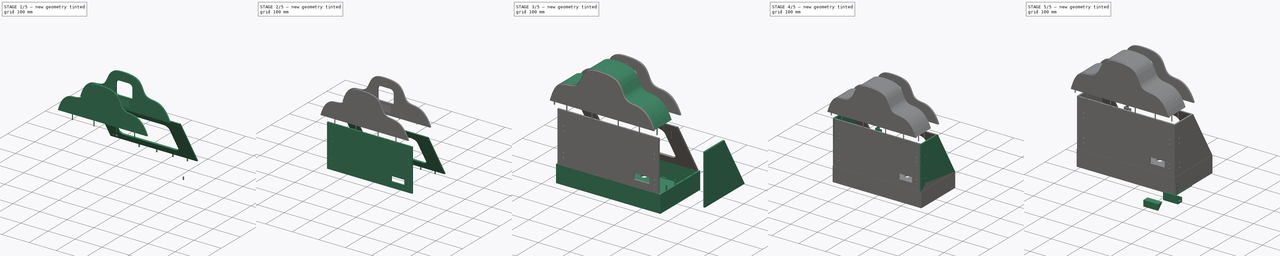
[diagram: build sequence overview — one tinted view per stage of 5, left to right]
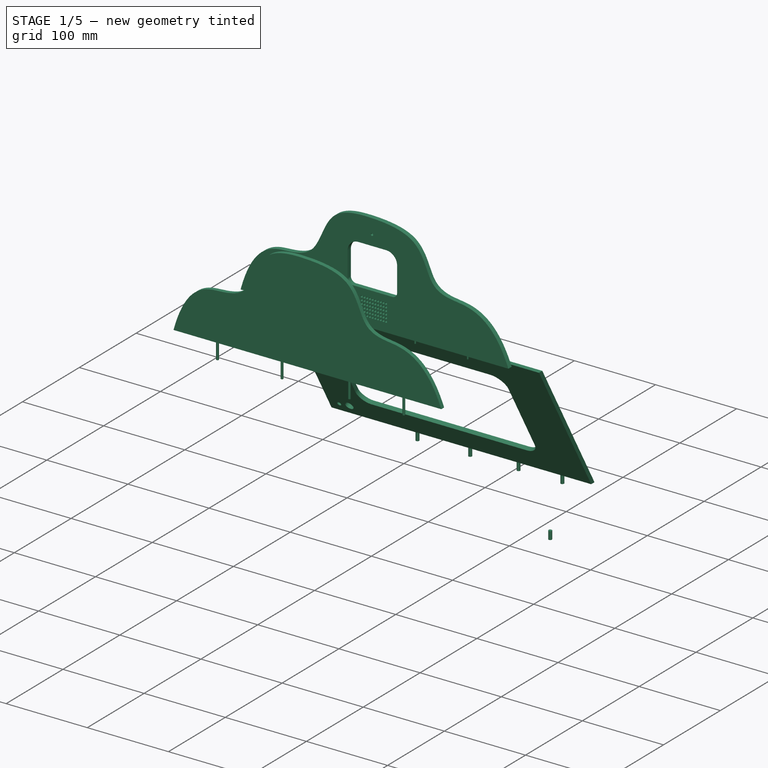
[diagram: stage 1 of 5 — iso view after this stage's code; geometry added in this stage tinted green]
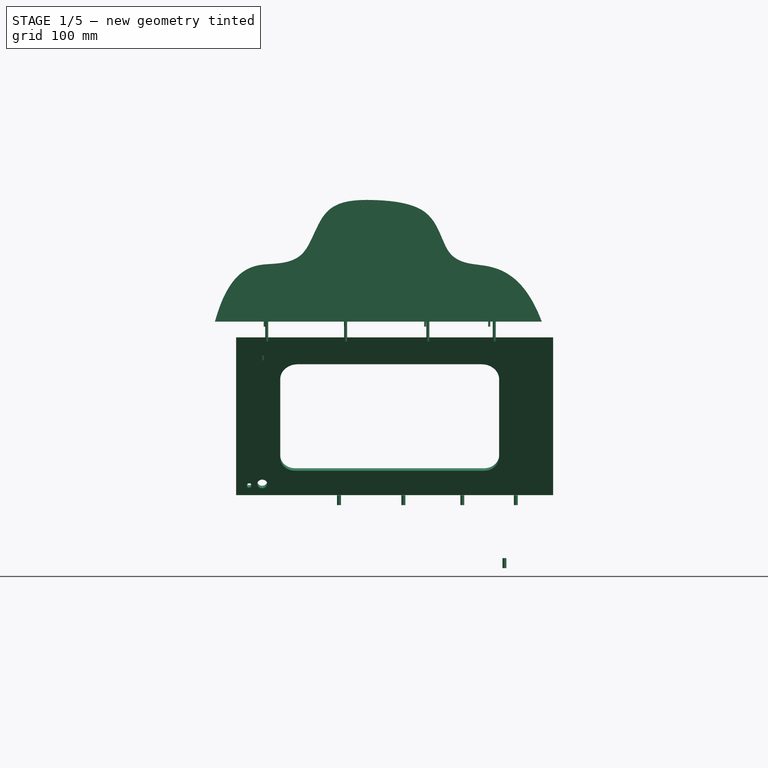
[diagram: stage 1 of 5 — front view after this stage's code; geometry added in this stage tinted green]
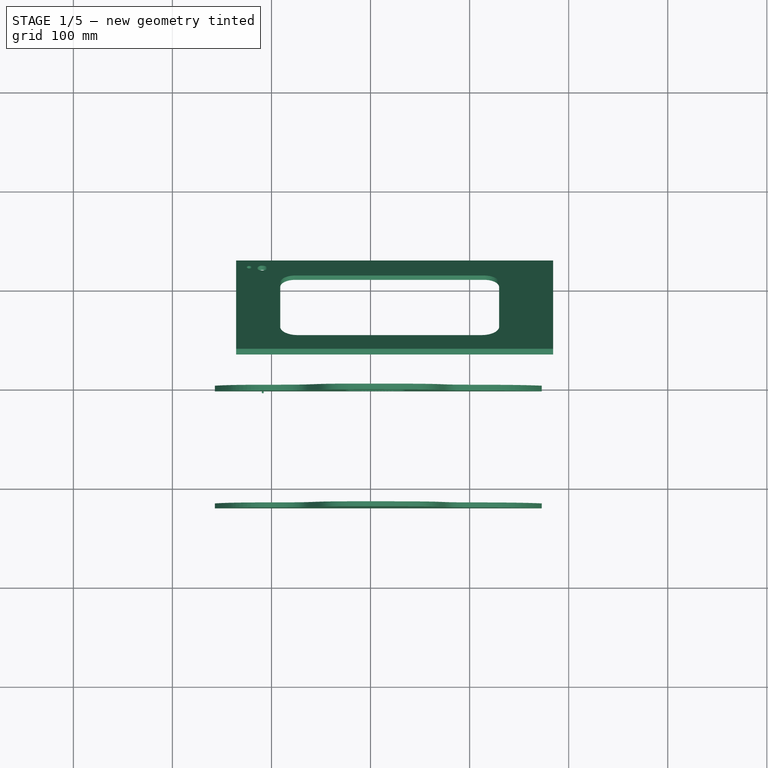
[diagram: stage 1 of 5 — top view after this stage's code; geometry added in this stage tinted green]
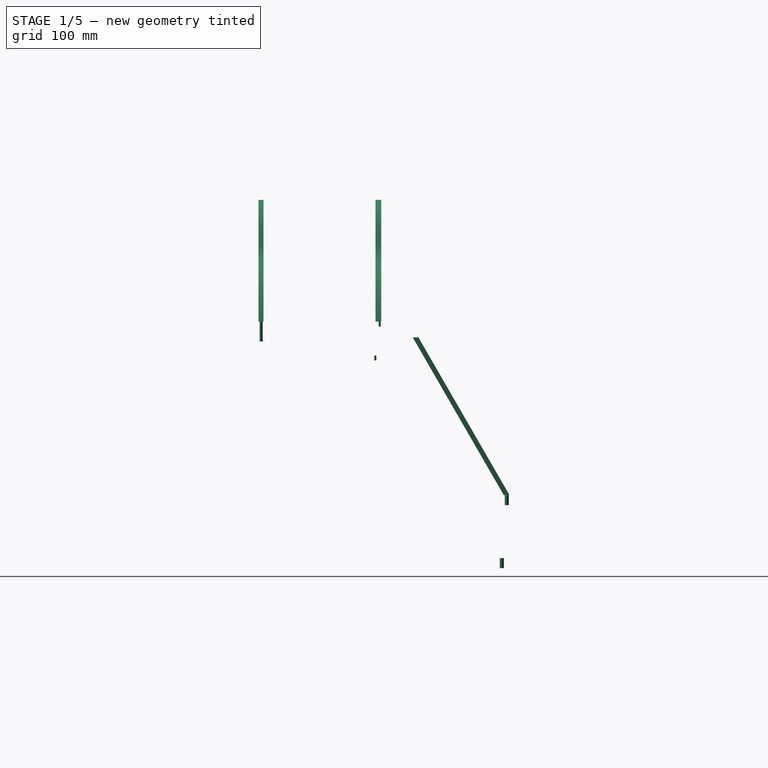
[diagram: stage 1 of 5 — right view after this stage's code; geometry added in this stage tinted green]
FCSTD DOCUMENT  (FreeCAD 1.0R39109 (Git))
Label: robot-grosor-fix3
License: All rights reserved
objects: Part::FeaturePython×93, Sketcher::SketchObject×81, PartDesign::Pad×76, Part::Cylinder×60, PartDesign::Body×52, Part::MultiFuse×25, Part::Cut×13, Part::Plane×6, App::DocumentObjectGroup×6, PartDesign::Pocket×3, PartDesign::LinearPattern×1
note: 650 computed .brp shape members not serialized (recipe doc carries the construction recipe); baked Part::Feature solids carry a one-line shape summary decoded from their .brp

FEATURE [PartDesign::Body] Body  label="Base"
  AllowCompound = false
  Group = -> [Sketch,Pad,Sketch001,Pocket,Sketch002,Pad001,Sketch003,Pad002]
  Origin = -> Origin
  Tip = -> Pad002
FEATURE [Sketcher::SketchObject] Sketch004
  ArcFitTolerance = 1e-06
  AttachmentSupport = -> [XZ_Plane001]
  FullyConstrained = false
  MakeInternals = false
  MapMode = 5
  Placement = pos=(0,0,0) rot=(1,0,0;1.5708rad)
  sketch-geometry (18):
    g0: LineSegment StartX=550.81 StartY=301.996 StartZ=0 EndX=230.81 EndY=301.996 EndZ=0
    g1: LineSegment StartX=230.81 StartY=301.996 StartZ=0 EndX=230.81 EndY=107.996 EndZ=0
    g2: LineSegment StartX=230.81 StartY=107.996 StartZ=0 EndX=550.81 EndY=107.996 EndZ=0
    g3: LineSegment StartX=550.81 StartY=107.996 StartZ=0 EndX=550.81 EndY=301.996 EndZ=0
    g4: LineSegment StartX=478.801 StartY=266.996 StartZ=0 EndX=292.877 EndY=266.996 EndZ=0
    g5: LineSegment StartX=275.31 StartY=249.429 StartZ=0 EndX=275.31 EndY=158.056 EndZ=0
    g6: LineSegment StartX=290.37 StartY=142.996 StartZ=0 EndX=481.286 EndY=142.996 EndZ=0
    g7: LineSegment StartX=496.31 StartY=158.02 StartZ=0 EndX=496.31 EndY=249.487 EndZ=0
    g8: ArcOfCircle CenterX=478.801 CenterY=249.487 CenterZ=0 NormalX=0 NormalY=0 NormalZ=1 AngleXU=0 Radius=17.5092 StartAngle=2e-16 EndAngle=1.5708
    g9: GeomPoint [constr] X=496.31 Y=266.996 Z=0
    g10: ArcOfCircle CenterX=292.877 CenterY=249.429 CenterZ=0 NormalX=0 NormalY=0 NormalZ=1 AngleXU=0 Radius=17.5676 StartAngle=1.5708 EndAngle=3.14159
    g11: GeomPoint [constr] X=275.31 Y=266.996 Z=0
    g12: ArcOfCircle CenterX=290.37 CenterY=158.056 CenterZ=0 NormalX=0 NormalY=0 NormalZ=1 AngleXU=0 Radius=15.0597 StartAngle=3.14159 EndAngle=4.71239
    g13: GeomPoint [constr] X=275.31 Y=142.996 Z=0
    g14: ArcOfCircle CenterX=481.286 CenterY=158.02 CenterZ=0 NormalX=0 NormalY=0 NormalZ=1 AngleXU=0 Radius=15.0237 StartAngle=4.71239 EndAngle=6.28319
    g15: GeomPoint [constr] X=496.31 Y=142.996 Z=0
    g16: Circle CenterX=257.212 CenterY=127.561 CenterZ=0 NormalX=0 NormalY=0 NormalZ=1 AngleXU=0 Radius=5
    g17: Circle CenterX=244.021 CenterY=125.758 CenterZ=0 NormalX=0 NormalY=0 NormalZ=1 AngleXU=0 Radius=2.5
  constraints (36):
    c: Coincident(g0,g1)
    c: Coincident(g1,g2)
    c: Coincident(g2,g3)
    c: Coincident(g3,g0)
    c: Horizontal(g0)
    c: Horizontal(g2)
    c: Vertical(g1)
    c: Vertical(g3)
    c: Distance(g1,g3) = 320
    c: Distance(g0,g2) = 194
    c: Horizontal(g4)
    c: Horizontal(g6)
    c: Vertical(g5)
    c: Vertical(g7)
    c: Distance(g11,g9) = 221
    c: Distance(g9,g15) = 124
    c: PointOnObject(g9,g4)
    c: PointOnObject(g9,g7)
    c: Tangent(g4,g8) = -1.5708
    c: Tangent(g7,g8) = -1.5708
    c: PointOnObject(g11,g4)
    c: PointOnObject(g11,g5)
    c: Tangent(g4,g10) = -1.5708
    c: Tangent(g5,g10) = -1.5708
    c: PointOnObject(g13,g5)
    c: PointOnObject(g13,g6)
    c: Tangent(g5,g12) = -1.5708
    c: Tangent(g6,g12) = -1.5708
    c: PointOnObject(g15,g6)
    c: PointOnObject(g15,g7)
    c: Tangent(g6,g14) = -1.5708
    c: Tangent(g7,g14) = -1.5708
    c: Distance(g3,g7) = 54.5
    c: Distance(g4,g0) = 35
    c: Diameter(g16) = 10
    c: Diameter(g17) = 5
FEATURE [PartDesign::Pad] Pad003  label="Tronco con hueco"
  Direction = (0,-1,2e-16)
  Length = 5
  Length2 = 10
  Placement = pos=(0,0,0) rot=(1,0,0;1.5708rad)
  Profile = -> Sketch004
  ReferenceAxis = -> Sketch004 [N_Axis]
  Refine = true
  Suppressed = false
  Type = 0
FEATURE [PartDesign::Body] Body001  label="Tronco Frontal"
  AllowCompound = false
  Group = -> [Sketch004,Pad003]
  Origin = -> Origin001
  Placement = pos=(-366.5,185.324,-23.0358) rot=(1,0,0;0.523599rad)
  Tip = -> Pad003
FEATURE [Sketcher::SketchObject] Sketch005
  ArcFitTolerance = 1e-06
  AttachmentSupport = -> [XZ_Plane002]
  FullyConstrained = false
  MakeInternals = false
  MapMode = 5
  Placement = pos=(0,0,0) rot=(1,0,0;1.5708rad)
  sketch-geometry (4):
    g0: LineSegment StartX=-151.832 StartY=74.6976 StartZ=0 EndX=-151.832 EndY=70.6976 EndZ=0
    g1: LineSegment StartX=-151.832 StartY=70.6976 StartZ=0 EndX=188.168 EndY=70.6976 EndZ=0
    g2: LineSegment StartX=188.168 StartY=70.6976 StartZ=0 EndX=188.168 EndY=74.6976 EndZ=0
    g3: LineSegment StartX=188.168 StartY=74.6976 StartZ=0 EndX=-151.832 EndY=74.6976 EndZ=0
  constraints (10):
    c: Coincident(g0,g1)
    c: Coincident(g1,g2)
    c: Coincident(g2,g3)
    c: Coincident(g3,g0)
    c: Vertical(g0)
    c: Vertical(g2)
    c: Horizontal(g1)
    c: Horizontal(g3)
    c: Distance(g0,g2) = 340
    c: Distance(g1,g3) = 4
FEATURE [PartDesign::Pad] Pad004
  Direction = (0,-1,2e-16)
  Length = 10
  Length2 = 10
  Placement = pos=(0,0,0) rot=(1,0,0;1.5708rad)
  Profile = -> Sketch005
  ReferenceAxis = -> Sketch005 [N_Axis]
  Refine = true
  Suppressed = false
  Type = 0
FEATURE [PartDesign::Body] Body011  label="Encaje base-soporte 001"
  AllowCompound = false
  Group = -> [Sketch014,Pad013]
  Origin = -> Origin011
  Placement = pos=(269,0,45.5) rot=(0,0,1;0rad)
  Tip = -> Pad013
FEATURE [Part::FeaturePython] Cutout  label="Tronco Frontal corte inf"  # WARN: FeaturePython — macro-defined, semantics opaque (R4)
  Base = -> Body001
  Refine = true
  Tolerance = 0
  Tool = -> Body002
FEATURE [Sketcher::SketchObject] Sketch015
  ArcFitTolerance = 1e-06
  AttachmentSupport = -> [XZ_Plane012]
  FullyConstrained = false
  MakeInternals = false
  MapMode = 5
  Placement = pos=(0,0,0) rot=(1,0,0;1.5708rad)
  sketch-geometry (4):
    g0: LineSegment StartX=-117.774 StartY=99.3242 StartZ=0 EndX=-117.774 EndY=94.3242 EndZ=0
    g1: LineSegment StartX=-117.774 StartY=94.3242 StartZ=0 EndX=212.226 EndY=94.3242 EndZ=0
    g2: LineSegment StartX=212.226 StartY=94.3242 StartZ=0 EndX=212.226 EndY=99.3242 EndZ=0
    g3: LineSegment StartX=212.226 StartY=99.3242 StartZ=0 EndX=-117.774 EndY=99.3242 EndZ=0
  constraints (10):
    c: Coincident(g0,g1)
    c: Coincident(g1,g2)
    c: Coincident(g2,g3)
    c: Coincident(g3,g0)
    c: Vertical(g0)
    c: Vertical(g2)
    c: Horizontal(g1)
    c: Horizontal(g3)
    c: Distance(g0,g2) = 330
    c: Distance(g1,g3) = 5
FEATURE [PartDesign::Pad] Pad014
  Direction = (0,-1,2e-16)
  Length = 10
  Length2 = 10
  Placement = pos=(0,0,0) rot=(1,0,0;1.5708rad)
  Profile = -> Sketch015
  ReferenceAxis = -> Sketch015 [N_Axis]
  Refine = true
  Suppressed = false
  Type = 0
FEATURE [PartDesign::Body] Body012  label="Pieza corte tronco sup"
  AllowCompound = false
  Group = -> [Sketch015,Pad014]
  Origin = -> Origin012
  Placement = pos=(-21.5,39.5,138.5) rot=(0,0,1;0rad)
  Tip = -> Pad014
FEATURE [Part::FeaturePython] Cutout003  label="Tronco Frontal  corte sup"  # WARN: FeaturePython — macro-defined, semantics opaque (R4)
  Base = -> Cutout
  Refine = true
  Tolerance = 0
  Tool = -> Body012
FEATURE [Sketcher::SketchObject] Sketch016
  ArcFitTolerance = 1e-06
  AttachmentSupport = -> [XY_Plane013]
  FullyConstrained = true
  MakeInternals = false
  MapMode = 5
  sketch-geometry (1):
    g0: Circle CenterX=146.65 CenterY=121.73 CenterZ=0 NormalX=0 NormalY=0 NormalZ=1 AngleXU=0 Radius=2
  constraints (3):
    c: Diameter(g0) = 4
    c: Distance(g0,g-1) = 121.73
    c: Distance(g0,g-2) = 146.65
FEATURE [PartDesign::Pad] Pad015
  Direction = (0,0,1)
  Length = 10
  Length2 = 10
  Profile = -> Sketch016
  ReferenceAxis = -> Sketch016 [N_Axis]
  Refine = true
  Suppressed = false
  Type = 0
FEATURE [PartDesign::Body] Body017  label="Encaje base-soporte 005"
  AllowCompound = false
  Group = -> [Sketch020,Pad019]
  Origin = -> Origin017
  Placement = pos=(30.5,0,45.5) rot=(0,0,1;0rad)
  Tip = -> Pad019
FEATURE [Sketcher::SketchObject] Sketch021
  ArcFitTolerance = 1e-06
  AttachmentSupport = -> [XY_Plane018]
  FullyConstrained = true
  MakeInternals = false
  MapMode = 5
  sketch-geometry (1):
    g0: Circle CenterX=141.65 CenterY=121.73 CenterZ=0 NormalX=0 NormalY=0 NormalZ=1 AngleXU=0 Radius=2
  constraints (3):
    c: Diameter(g0) = 4
    c: Distance(g0,g-1) = 121.73
    c: Distance(g0,g-2) = 141.65
FEATURE [PartDesign::Pad] Pad020
  Direction = (0,0,1)
  Length = 10
  Length2 = 10
  Profile = -> Sketch021
  ReferenceAxis = -> Sketch021 [N_Axis]
  Refine = true
  Suppressed = false
  Type = 0
FEATURE [PartDesign::Body] Body018  label="Encaje-tronco frontal 002"
  AllowCompound = false
  Group = -> [Sketch021,Pad020]
  Origin = -> Origin018
  Placement = pos=(-49,5,63.5) rot=(0,0,1;0rad)
  Tip = -> Pad020
FEATURE [Sketcher::SketchObject] Sketch022
  ArcFitTolerance = 1e-06
  AttachmentSupport = -> [XY_Plane019]
  FullyConstrained = true
  MakeInternals = false
  MapMode = 5
  sketch-geometry (1):
    g0: Circle CenterX=134.65 CenterY=121.73 CenterZ=0 NormalX=0 NormalY=0 NormalZ=1 AngleXU=0 Radius=2
  constraints (3):
    c: Diameter(g0) = 4
    c: Distance(g0,g-1) = 121.73
    c: Distance(g0,g-2) = 134.65
FEATURE [PartDesign::Pad] Pad021
  Direction = (0,0,1)
  Length = 10
  Length2 = 10
  Profile = -> Sketch022
  ReferenceAxis = -> Sketch022 [N_Axis]
  Refine = true
  Suppressed = false
  Type = 0
FEATURE [PartDesign::Body] Body019  label="Encaje-tronco frontal 003"
  AllowCompound = false
  Group = -> [Sketch022,Pad021]
  Origin = -> Origin019
  Placement = pos=(-101.5,5,63.5) rot=(0,0,1;0rad)
  Tip = -> Pad021
FEATURE [Sketcher::SketchObject] Sketch023
  ArcFitTolerance = 1e-06
  AttachmentSupport = -> [XY_Plane020]
  FullyConstrained = true
  MakeInternals = false
  MapMode = 5
  sketch-geometry (1):
    g0: Circle CenterX=130.15 CenterY=121.73 CenterZ=0 NormalX=0 NormalY=0 NormalZ=1 AngleXU=0 Radius=2
  constraints (3):
    c: Diameter(g0) = 4
    c: Distance(g0,g-1) = 121.73
    c: Distance(g0,g-2) = 130.15
FEATURE [PartDesign::Pad] Pad022
  Direction = (0,0,1)
  Length = 10
  Length2 = 10
  Profile = -> Sketch023
  ReferenceAxis = -> Sketch023 [N_Axis]
  Refine = true
  Suppressed = false
  Type = 0
FEATURE [PartDesign::Body] Body020  label="Encaje-tronco frontal 004"
  AllowCompound = false
  Group = -> [Sketch023,Pad022]
  Origin = -> Origin020
  Placement = pos=(-162,5,63.5) rot=(0,0,1;0rad)
  Tip = -> Pad022
FEATURE [Sketcher::SketchObject] Sketch024
  ArcFitTolerance = 1e-06
  AttachmentSupport = -> [XY_Plane021]
  FullyConstrained = true
  MakeInternals = false
  MapMode = 5
  sketch-geometry (1):
    g0: Circle CenterX=135.15 CenterY=121.73 CenterZ=0 NormalX=0 NormalY=0 NormalZ=1 AngleXU=0 Radius=2
  constraints (3):
    c: Diameter(g0) = 4
    c: Distance(g0,g-1) = 121.73
    c: Distance(g0,g-2) = 135.15
FEATURE [PartDesign::Pad] Pad023
  Direction = (0,0,1)
  Length = 10
  Length2 = 10
  Profile = -> Sketch024
  ReferenceAxis = -> Sketch024 [N_Axis]
  Refine = true
  Suppressed = false
  Type = 0
FEATURE [PartDesign::Body] Body021  label="Encaje-tronco frontal 005"
  AllowCompound = false
  Group = -> [Sketch024,Pad023]
  Origin = -> Origin021
  Placement = pos=(-227,5,63.5) rot=(0,0,1;0rad)
  Tip = -> Pad023
FEATURE [Part::MultiFuse] Fusion  label="Tronco Frontal  - encaje 1"
  Refine = true
  Shapes = -> [Cutout003,Body013]
FEATURE [Part::MultiFuse] Fusion001  label="Tronco Frontal  - encaje 2"
  Refine = true
  Shapes = -> [Fusion,Body018]
FEATURE [Part::MultiFuse] Fusion002  label="Tronco  Frontal - encaje 3"
  Refine = true
  Shapes = -> [Fusion001,Body019]
FEATURE [Part::MultiFuse] Fusion003  label="Tronco  Frontal  - encaje 4"
  Refine = true
  Shapes = -> [Fusion002,Body020]
FEATURE [PartDesign::Body] Body047  label="Apoyo placa"
  AllowCompound = false
  Group = -> [Sketch069,Pad068,Sketch074,Pad071]
  Origin = -> Origin047
  Placement = pos=(-74.8,4.525,108.35) rot=(0,0,1;0rad)
  Tip = -> Pad071
FEATURE [Sketcher::SketchObject] Sketch075
  ArcFitTolerance = 1e-06
  AttachmentSupport = -> [XZ_Plane050]
  FullyConstrained = false
  MakeInternals = false
  MapMode = 5
  Placement = pos=(0,0,0) rot=(1,0,0;1.5708rad)
  sketch-geometry (35):
    g0-g10: Circle [constr] x11 (B-spline internal-alignment scaffolding for g11; pole/knot coordinates omitted)
    g11: BSplineCurve PolesCount=11 KnotsCount=9 Degree=3 IsPeriodic=0
    g12-g20: GeomPoint [constr] x9 (B-spline internal-alignment scaffolding for g11; pole/knot coordinates omitted)
    g21: LineSegment StartX=-157.131 StartY=248.736 StartZ=0 EndX=172.869 EndY=248.736 EndZ=0
    g22: LineSegment StartX=22.2508 StartY=340.47 StartZ=0 EndX=-11.9376 EndY=340.47 EndZ=0
    g23: LineSegment StartX=-25.2595 StartY=327.148 StartZ=0 EndX=-25.2595 EndY=296.835 EndZ=0
    g24: LineSegment StartX=-18.8947 StartY=290.47 StartZ=0 EndX=29.9632 EndY=290.47 EndZ=0
    g25: LineSegment StartX=35.7405 StartY=296.247 StartZ=0 EndX=35.7405 EndY=326.98 EndZ=0
    g26: ArcOfCircle CenterX=-11.9376 CenterY=327.148 CenterZ=0 NormalX=0 NormalY=0 NormalZ=1 AngleXU=0 Radius=13.3219 StartAngle=1.5708 EndAngle=3.14159
    g27: GeomPoint [constr] X=-25.2595 Y=340.47 Z=0
    g28: ArcOfCircle CenterX=22.2508 CenterY=326.98 CenterZ=0 NormalX=0 NormalY=0 NormalZ=1 AngleXU=0 Radius=13.4897 StartAngle=0 EndAngle=1.5708
    g29: GeomPoint [constr] X=35.7405 Y=340.47 Z=0
    g30: ArcOfCircle CenterX=29.9632 CenterY=296.247 CenterZ=0 NormalX=0 NormalY=0 NormalZ=1 AngleXU=0 Radius=5.77732 StartAngle=4.71239 EndAngle=6.28319
    g31: GeomPoint [constr] X=35.7405 Y=290.47 Z=0
    g32: ArcOfCircle CenterX=-18.8947 CenterY=296.835 CenterZ=0 NormalX=0 NormalY=0 NormalZ=1 AngleXU=0 Radius=6.36482 StartAngle=3.14159 EndAngle=4.71239
    g33: GeomPoint [constr] X=-25.2595 Y=290.47 Z=0
    g34: Circle CenterX=4.6888 CenterY=353.219 CenterZ=0 NormalX=0 NormalY=0 NormalZ=1 AngleXU=0 Radius=1.5
  constraints (38):
    c: Weight(g0) = 1
    c: Equal(g0, g1-g10) x10
    c: InternalAlignment(g0-g10 -> g11) x11
    c: InternalAlignment(g12-g20 -> g11) x9
    c: PointOnObject(g5,g-2)
    c: Distance(g21,g21) = 330
    c: Coincident(g11,g21)
    c: Coincident(g21,g11)
    c: Angle(g21,g-2) = 1.5708
    c: Distance(g13,g-1) = 307.06
    c: DistanceY(g-1,g19) = 307.06
    c: Distance(g1,g-1) = 305.96
    c: DistanceY(g-1,g9) = 305.96
    c: DistanceY(g-1,g15) = 360.76
    c: DistanceY(g-1,g17) = 360.76
    c: Horizontal(g22)
    c: Horizontal(g24)
    c: Vertical(g23)
    c: Vertical(g25)
    c: Distance(g27,g29) = 61
    c: Distance(g29,g31) = 50
    c: PointOnObject(g27,g22)
    c: PointOnObject(g27,g23)
    c: Tangent(g22,g26) = -1.5708
    c: Tangent(g23,g26) = -1.5708
    c: PointOnObject(g29,g22)
    c: PointOnObject(g29,g25)
    c: Tangent(g22,g28) = -1.5708
    c: Tangent(g25,g28) = -1.5708
    c: PointOnObject(g31,g24)
    c: PointOnObject(g31,g25)
    c: Tangent(g24,g30) = -1.5708
    c: Tangent(g25,g30) = -1.5708
    c: PointOnObject(g33,g23)
    c: PointOnObject(g33,g24)
    c: Tangent(g23,g32) = -1.5708
    c: Tangent(g24,g32) = -1.5708
    c: Diameter(g34) = 3
FEATURE [PartDesign::Pad] Pad072
  Direction = (0,-1,2e-16)
  Length = 5.77
  Length2 = 10
  Placement = pos=(0,0,0) rot=(1,0,0;1.5708rad)
  Profile = -> Sketch075
  ReferenceAxis = -> Sketch075 [N_Axis]
  Refine = true
  Suppressed = false
  Type = 0
FEATURE [Part::Cylinder] Cylinder004  label="Cilindro004"
  Angle = 360
  AttacherType = Attacher::AttachEngine3D
  FirstAngle = 0
  Height = 5
  Placement = pos=(-108.82,-5.97,209.63) rot=(0,0,1;0rad)
  Radius = 1
  SecondAngle = 0
FEATURE [Sketcher::SketchObject] Sketch076
  ArcFitTolerance = 1e-06
  AttachmentSupport = -> [XZ_Plane051]
  FullyConstrained = false
  MakeInternals = false
  MapMode = 5
  Placement = pos=(0,0,0) rot=(1,0,0;1.5708rad)
  sketch-geometry (22):
    g0-g10: Circle [constr] x11 (B-spline internal-alignment scaffolding for g11; pole/knot coordinates omitted)
    g11: BSplineCurve PolesCount=11 KnotsCount=9 Degree=3 IsPeriodic=0
    g12-g20: GeomPoint [constr] x9 (B-spline internal-alignment scaffolding for g11; pole/knot coordinates omitted)
    g21: LineSegment StartX=-157.131 StartY=248.736 StartZ=0 EndX=172.869 EndY=248.736 EndZ=0
  constraints (15):
    c: Weight(g0) = 1
    c: Equal(g0, g1-g10) x10
    c: InternalAlignment(g0-g10 -> g11) x11
    c: InternalAlignment(g12-g20 -> g11) x9
    c: PointOnObject(g5,g-2)
    c: Distance(g21,g21) = 330
    c: Coincident(g11,g21)
    c: Coincident(g21,g11)
    c: Angle(g21,g-2) = 1.5708
    c: Distance(g13,g-1) = 307.06
    c: DistanceY(g-1,g19) = 307.06
    c: Distance(g1,g-1) = 305.96
    c: DistanceY(g-1,g9) = 305.96
    c: DistanceY(g-1,g15) = 360.76
    c: DistanceY(g-1,g17) = 360.76
FEATURE [PartDesign::Pad] Pad073
  Direction = (0,-1,2e-16)
  Length = 5
  Length2 = 10
  Placement = pos=(0,0,0) rot=(1,0,0;1.5708rad)
  Profile = -> Sketch076
  ReferenceAxis = -> Sketch076 [N_Axis]
  Refine = true
  Suppressed = false
  Type = 0
FEATURE [Sketcher::SketchObject] Sketch079
  ArcFitTolerance = 1e-06
  AttachmentSupport = -> [Pad072]
  FullyConstrained = false
  MakeInternals = false
  MapMode = 5
  Placement = pos=(0,6.55e-14,0) rot=(-1,0,0;1.5708rad)
  sketch-geometry (12):
    g0: LineSegment StartX=-9.71647 StartY=-263.768 StartZ=0 EndX=-9.71647 EndY=-278.511 EndZ=0
    g1: LineSegment StartX=-6.88805 StartY=-281.339 StartZ=0 EndX=17.8551 EndY=-281.339 EndZ=0
    g2: LineSegment StartX=20.2835 StartY=-278.911 StartZ=0 EndX=20.2835 EndY=-264.168 EndZ=0
    g3: LineSegment StartX=17.4551 StartY=-261.339 StartZ=0 EndX=-7.28805 EndY=-261.339 EndZ=0
    g4: ArcOfCircle CenterX=17.4551 CenterY=-264.168 CenterZ=0 NormalX=0 NormalY=0 NormalZ=1 AngleXU=0 Radius=2.82843 StartAngle=0 EndAngle=1.5708
    g5: GeomPoint [constr] X=20.2835 Y=-261.339 Z=0
    g6: ArcOfCircle CenterX=17.8551 CenterY=-278.911 CenterZ=0 NormalX=0 NormalY=0 NormalZ=1 AngleXU=0 Radius=2.42843 StartAngle=4.71239 EndAngle=6.28319
    g7: GeomPoint [constr] X=20.2835 Y=-281.339 Z=0
    g8: ArcOfCircle CenterX=-6.88805 CenterY=-278.511 CenterZ=0 NormalX=0 NormalY=0 NormalZ=1 AngleXU=0 Radius=2.82843 StartAngle=3.14159 EndAngle=4.71239
    g9: GeomPoint [constr] X=-9.71647 Y=-281.339 Z=0
    g10: ArcOfCircle CenterX=-7.28805 CenterY=-263.768 CenterZ=0 NormalX=0 NormalY=0 NormalZ=1 AngleXU=0 Radius=2.42843 StartAngle=1.5708 EndAngle=3.14159
    g11: GeomPoint [constr] X=-9.71647 Y=-261.339 Z=0
  constraints (22):
    c: Vertical(g0)
    c: Vertical(g2)
    c: Horizontal(g1)
    c: Horizontal(g3)
    c: Distance(g11,g5) = 30
    c: Distance(g9,g11) = 20
    c: PointOnObject(g5,g2)
    c: PointOnObject(g5,g3)
    c: Tangent(g2,g4) = -1.5708
    c: Tangent(g3,g4) = -1.5708
    c: PointOnObject(g7,g1)
    c: PointOnObject(g7,g2)
    c: Tangent(g1,g6) = -1.5708
    c: Tangent(g2,g6) = -1.5708
    c: PointOnObject(g9,g0)
    c: PointOnObject(g9,g1)
    c: Tangent(g0,g8) = -1.5708
    c: Tangent(g1,g8) = -1.5708
    c: PointOnObject(g11,g0)
    c: PointOnObject(g11,g3)
    c: Tangent(g0,g10) = -1.5708
    c: Tangent(g3,g10) = -1.5708
FEATURE [PartDesign::Pocket] Pocket001
  BaseFeature = -> Pad072
  Direction = (0,-1,-2e-16)
  Length = 2
  Length2 = 5
  Placement = pos=(0,0,0) rot=(1,0,0;1.5708rad)
  Profile = -> Sketch079
  ReferenceAxis = -> Sketch079 [N_Axis]
  Refine = true
  Suppressed = false
  Type = 0
FEATURE [Sketcher::SketchObject] Sketch080
  ArcFitTolerance = 1e-06
  AttachmentSupport = -> [Pocket001]
  FullyConstrained = false
  MakeInternals = false
  MapMode = 5
  Placement = pos=(0,-2,0) rot=(-1,0,0;1.5708rad)
  sketch-geometry (6):
    g0: Circle CenterX=-7.9 CenterY=-276.871 CenterZ=0 NormalX=0 NormalY=0 NormalZ=1 AngleXU=0 Radius=1.24325
    g1: Circle CenterX=-7.9 CenterY=-268.871 CenterZ=0 NormalX=0 NormalY=0 NormalZ=1 AngleXU=0 Radius=1.24325
    g2: Circle CenterX=-7.9 CenterY=-280.871 CenterZ=0 NormalX=0 NormalY=0 NormalZ=1 AngleXU=0 Radius=1.24325
    g3: Circle CenterX=-7.9 CenterY=-264.871 CenterZ=0 NormalX=0 NormalY=0 NormalZ=1 AngleXU=0 Radius=1.24325
    g4: Circle CenterX=-7.9 CenterY=-260.871 CenterZ=0 NormalX=0 NormalY=0 NormalZ=1 AngleXU=0 Radius=1.24325
    g5: Circle CenterX=-7.9 CenterY=-272.871 CenterZ=0 NormalX=0 NormalY=0 NormalZ=1 AngleXU=0 Radius=1.24325
  constraints (11):
    c: Distance(g2,g-2) = 7.9
    c: DistanceX(g0,g-1) = 7.9
    c: DistanceX(g5,g-1) = 7.9
    c: DistanceX(g1,g-1) = 7.9
    c: Distance(g3,g-2) = 7.9
    c: Distance(g4,g-2) = 7.9
    c: Distance(g2,g0) = 4
    c: Distance(g0,g5) = 4
    c: Distance(g5,g1) = 4
    c: Distance(g1,g3) = 4
    c: Distance(g3,g4) = 4
FEATURE [PartDesign::Pocket] Pocket002
  BaseFeature = -> Pocket001
  Direction = (0,-1,-2e-16)
  Length = 5
  Length2 = 5
  Placement = pos=(0,0,0) rot=(1,0,0;1.5708rad)
  Profile = -> Sketch080
  ReferenceAxis = -> Sketch080 [N_Axis]
  Refine = true
  Suppressed = false
  Type = 0
FEATURE [PartDesign::LinearPattern] LinearPattern
  BaseFeature = -> Pocket002
  Direction = -> Sketch080 [H_Axis]
  Length = 30
  Mode = 0
  Occurrences = 10
  Offset = 3.33333
  Originals = -> [Pocket002]
  Placement = pos=(0,0,0) rot=(1,0,0;1.5708rad)
  Refine = true
  Suppressed = false
  TransformMode = 0
FEATURE [Part::Cylinder] Cylinder018  label="Cilindro016"
  Angle = 360
  AttacherType = Attacher::AttachEngine3D
  FirstAngle = 0
  Height = 20
  Placement = pos=(124.88,-121.25,228.72) rot=(0,0,1;0rad)
  Radius = 1.5
  SecondAngle = 0
FEATURE [Part::Cylinder] Cylinder019  label="Cilindro017"
  Angle = 360
  AttacherType = Attacher::AttachEngine3D
  FirstAngle = 0
  Height = 20
  Placement = pos=(57.85,-121.25,228.72) rot=(0,0,1;0rad)
  Radius = 1.5
  SecondAngle = 0
FEATURE [Part::Cylinder] Cylinder020  label="Cilindro018"
  Angle = 360
  AttacherType = Attacher::AttachEngine3D
  FirstAngle = 0
  Height = 20
  Placement = pos=(-25.15,-121.25,228.72) rot=(0,0,1;0rad)
  Radius = 1.5
  SecondAngle = 0
FEATURE [Part::Cylinder] Cylinder021  label="Cilindro019"
  Angle = 360
  AttacherType = Attacher::AttachEngine3D
  FirstAngle = 0
  Height = 20
  Placement = pos=(-104.72,-121.25,228.72) rot=(0,0,1;0rad)
  Radius = 1.5
  SecondAngle = 0
FEATURE [Part::MultiFuse] Fusion009  label="Cara Trasera - encj 1"
  Refine = true
  Shapes = -> [Body051,Cylinder018]
FEATURE [Part::MultiFuse] Fusion010  label="Cara Trasera - encj 2"
  Refine = true
  Shapes = -> [Fusion009,Cylinder021]
FEATURE [Part::MultiFuse] Fusion011  label="Cara Trasera - encj 3"
  Refine = true
  Shapes = -> [Fusion010,Cylinder020]
FEATURE [Part::MultiFuse] Fusion012  label="Cara Trasera - encj 4"
  Refine = true
  Shapes = -> [Fusion011,Cylinder019]
FEATURE [Part::Cylinder] Cylinder022  label="Cilindro020"
  Angle = 360
  AttacherType = Attacher::AttachEngine3D
  FirstAngle = 0
  Height = 5
  Placement = pos=(119.84,-1.57,243.73) rot=(0,0,1;0rad)
  Radius = 1
  SecondAngle = 0
FEATURE [Part::Cylinder] Cylinder023  label="Cilindro021"
  Angle = 360
  AttacherType = Attacher::AttachEngine3D
  FirstAngle = 0
  Height = 5
  Placement = pos=(55.17,-1.57,243.73) rot=(0,0,1;0rad)
  Radius = 1
  SecondAngle = 0
FEATURE [Part::Cylinder] Cylinder024  label="Cilindro022"
  Angle = 360
  AttacherType = Attacher::AttachEngine3D
  FirstAngle = 0
  Height = 5
  Placement = pos=(-25.73,-1.57,243.73) rot=(0,0,1;0rad)
  Radius = 1
  SecondAngle = 0
FEATURE [Part::Cylinder] Cylinder025  label="Cilindro023"
  Angle = 360
  AttacherType = Attacher::AttachEngine3D
  FirstAngle = 0
  Height = 5
  Placement = pos=(-106.76,-1.57,243.73) rot=(0,0,1;0rad)
  Radius = 1
  SecondAngle = 0
FEATURE [Part::MultiFuse] Fusion013  label="Cara Frontal - encj 1"
  Refine = true
  Shapes = -> [Body050,Cylinder022]
FEATURE [Part::MultiFuse] Fusion014  label="Cara Frontal - encj 2"
  Refine = true
  Shapes = -> [Fusion013,Cylinder025]
FEATURE [Part::MultiFuse] Fusion015  label="Cara Frontal - encj 3"
  Refine = true
  Shapes = -> [Fusion014,Cylinder024]
FEATURE [Part::MultiFuse] Fusion016  label="Cara Frontal - encj 4"
  Refine = true
  Shapes = -> [Fusion015,Cylinder023]
FEATURE [App::DocumentObjectGroup] GrExplode_Slice001  label="Tronco Frontal dividido"
  Group = -> [Fusion019,Fusion020]
FEATURE [Part::Plane] Plane008  label="Plano008"
  AttacherType = Attacher::AttachEngine3D
  Length = 400
  Placement = pos=(-9.11e-14,-247.525,410.325) rot=(0,1,0;1.5708rad)
  Width = 400
FEATURE [Part::FeaturePython] Slice004  # WARN: FeaturePython — macro-defined, semantics opaque (R4)
  Base = -> Fusion012
  Mode = 1
  Tolerance = 0
  Tools = -> [Plane008]
FEATURE [Part::FeaturePython] Slice004_child0  label="Slice004.0"  # WARN: FeaturePython — macro-defined, semantics opaque (R4)
  Base = -> Slice004
  FilterType = 1
  Invert = false
  OverrideMaxVal = 0
  WindowFrom = 80
  WindowTo = 100
  items = 0
FEATURE [Part::FeaturePython] Slice004_child1  label="Slice004.1"  # WARN: FeaturePython — macro-defined, semantics opaque (R4)
  Base = -> Slice004
  FilterType = 1
  Invert = false
  OverrideMaxVal = 0
  WindowFrom = 80
  WindowTo = 100
  items = 1
FEATURE [Part::FeaturePython] Slice004_child2  label="Slice004.2"  # WARN: FeaturePython — macro-defined, semantics opaque (R4)
  Base = -> Slice004
  FilterType = 1
  Invert = false
  OverrideMaxVal = 0
  WindowFrom = 80
  WindowTo = 100
  items = 2
FEATURE [Part::FeaturePython] Slice004_child3  label="Slice004.3"  # WARN: FeaturePython — macro-defined, semantics opaque (R4)
  Base = -> Slice004
  FilterType = 1
  Invert = false
  OverrideMaxVal = 0
  WindowFrom = 80
  WindowTo = 100
  items = 3
FEATURE [Part::FeaturePython] Slice004_child4  label="Slice004.4"  # WARN: FeaturePython — macro-defined, semantics opaque (R4)
  Base = -> Slice004
  FilterType = 1
  Invert = false
  OverrideMaxVal = 0
  WindowFrom = 80
  WindowTo = 100
  items = 4
FEATURE [Part::FeaturePython] Slice004_child5  label="Slice004.5"  # WARN: FeaturePython — macro-defined, semantics opaque (R4)
  Base = -> Slice004
  FilterType = 1
  Invert = false
  OverrideMaxVal = 0
  WindowFrom = 80
  WindowTo = 100
  items = 5
FEATURE [Part::MultiFuse] Fusion021  label="Cara Trasera 1"
  Refine = true
  Shapes = -> [Slice004_child1,Slice004_child2,Slice004_child3]
FEATURE [Part::MultiFuse] Fusion022  label="Cara Trasera 2"
  Refine = true
  Shapes = -> [Slice004_child0,Slice004_child4,Slice004_child5]
FEATURE [App::DocumentObjectGroup] GrExplode_Slice004  label="Cara Trasera dividida"
  Group = -> [Fusion021,Fusion022]
FEATURE [Part::Plane] Plane009  label="Plano009"
  AttacherType = Attacher::AttachEngine3D
  Length = 400
  Placement = pos=(-9.11e-14,-247.525,410.325) rot=(0,1,0;1.5708rad)
  Width = 400
FEATURE [Part::FeaturePython] Slice005  # WARN: FeaturePython — macro-defined, semantics opaque (R4)
  Base = -> Fusion016
  Mode = 1
  Tolerance = 0
  Tools = -> [Plane009]
FEATURE [Part::FeaturePython] Slice005_child0  label="Slice005.0"  # WARN: FeaturePython — macro-defined, semantics opaque (R4)
  Base = -> Slice005
  FilterType = 1
  Invert = false
  OverrideMaxVal = 0
  WindowFrom = 80
  WindowTo = 100
  items = 0
FEATURE [Part::FeaturePython] Slice005_child1  label="Slice005.1"  # WARN: FeaturePython — macro-defined, semantics opaque (R4)
  Base = -> Slice005
  FilterType = 1
  Invert = false
  OverrideMaxVal = 0
  WindowFrom = 80
  WindowTo = 100
  items = 1
FEATURE [Part::FeaturePython] Slice005_child2  label="Slice005.2"  # WARN: FeaturePython — macro-defined, semantics opaque (R4)
  Base = -> Slice005
  FilterType = 1
  Invert = false
  OverrideMaxVal = 0
  WindowFrom = 80
  WindowTo = 100
  items = 2
FEATURE [Part::FeaturePython] Slice005_child3  label="Slice005.3"  # WARN: FeaturePython — macro-defined, semantics opaque (R4)
  Base = -> Slice005
  FilterType = 1
  Invert = false
  OverrideMaxVal = 0
  WindowFrom = 80
  WindowTo = 100
  items = 3
FEATURE [Part::FeaturePython] Slice005_child4  label="Slice005.4"  # WARN: FeaturePython — macro-defined, semantics opaque (R4)
  Base = -> Slice005
  FilterType = 1
  Invert = false
  OverrideMaxVal = 0
  WindowFrom = 80
  WindowTo = 100
  items = 4
FEATURE [Part::FeaturePython] Slice005_child5  label="Slice005.5"  # WARN: FeaturePython — macro-defined, semantics opaque (R4)
  Base = -> Slice005
  FilterType = 1
  Invert = false
  OverrideMaxVal = 0
  WindowFrom = 80
  WindowTo = 100
  items = 5
FEATURE [Part::MultiFuse] Fusion023  label="Cara Frontal 1"
  Refine = true
  Shapes = -> [Slice005_child1,Slice005_child2,Slice005_child3]
FEATURE [Part::MultiFuse] Fusion024  label="Cara Frontal 2"
  Refine = true
  Shapes = -> [Slice005_child1,Slice005_child2,Slice005_child3,Slice005_child0,Slice005_child4,Slice005_child5]
FEATURE [App::DocumentObjectGroup] GrExplode_Slice005  label="Cara Frontal dividida"
  Group = -> [Fusion023,Fusion024]
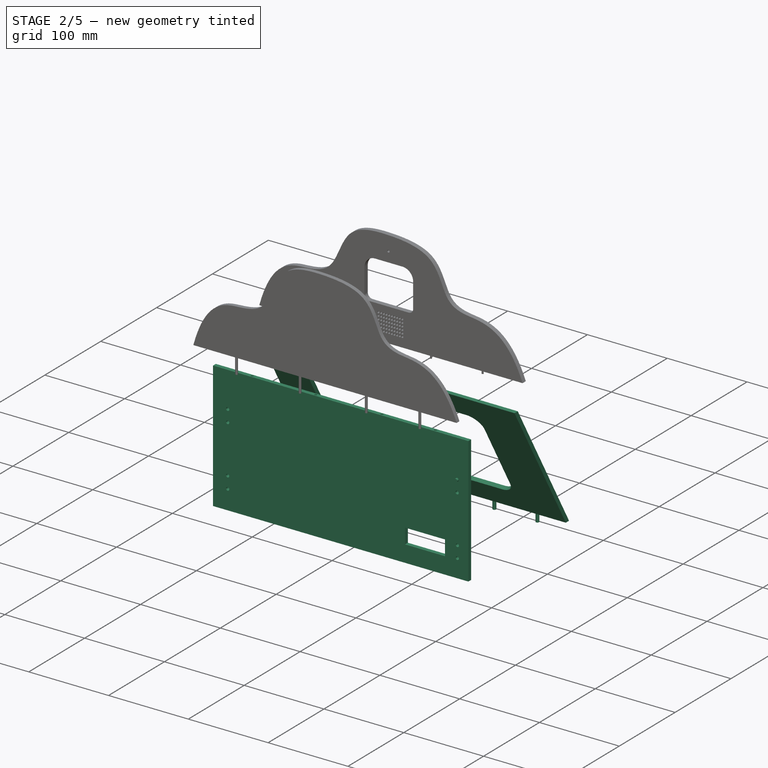
[diagram: stage 2 of 5 — iso view after this stage's code; geometry added in this stage tinted green]
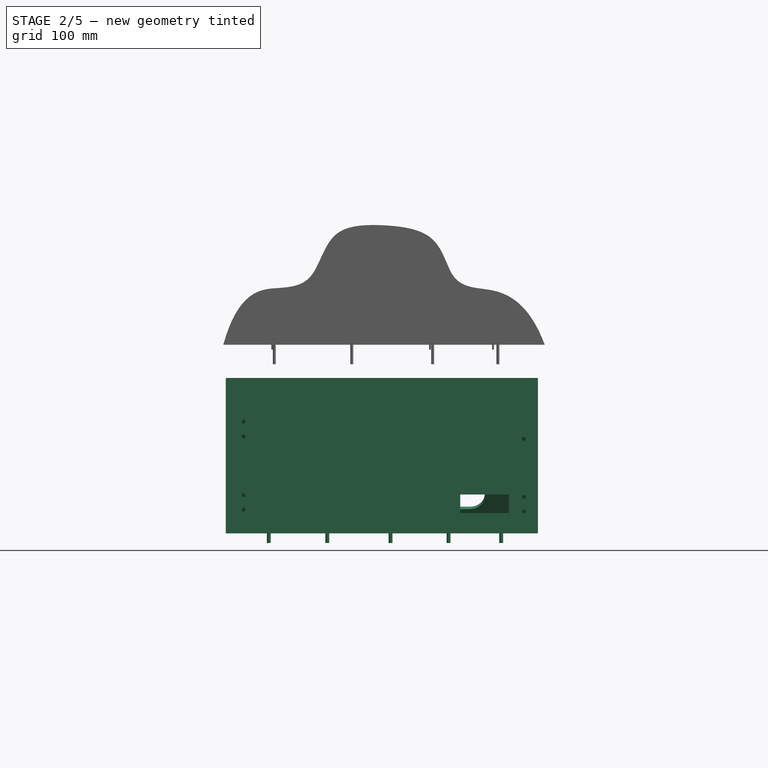
[diagram: stage 2 of 5 — front view after this stage's code; geometry added in this stage tinted green]
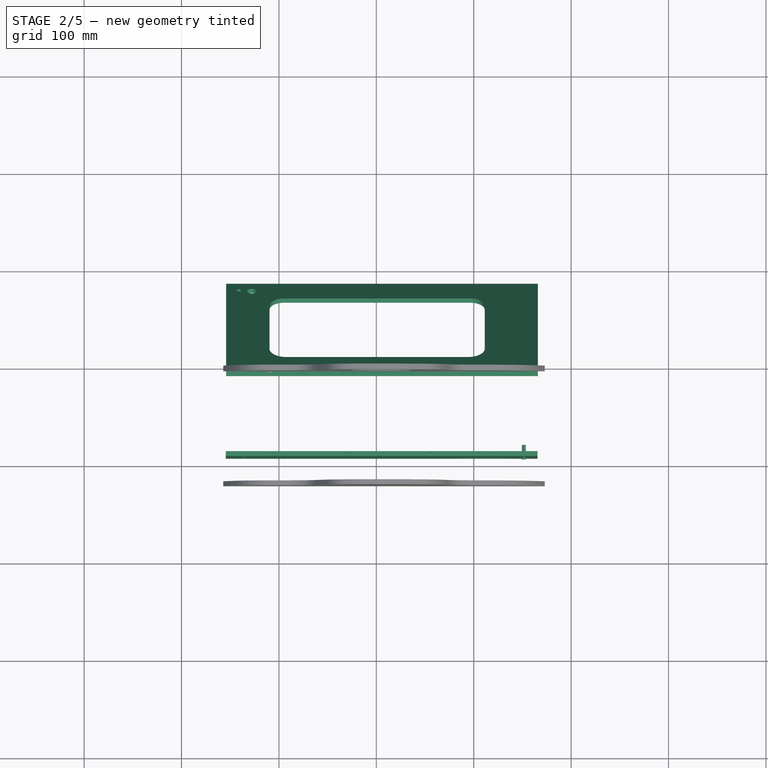
[diagram: stage 2 of 5 — top view after this stage's code; geometry added in this stage tinted green]
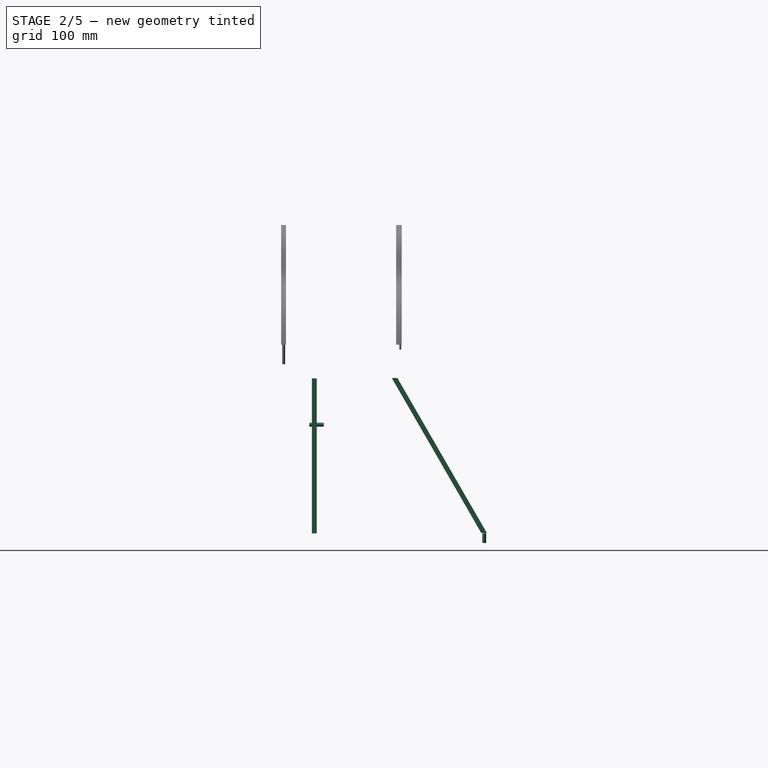
[diagram: stage 2 of 5 — right view after this stage's code; geometry added in this stage tinted green]
FEATURE [Part::MultiFuse] Fusion004  label="Tronco Frontal encajes"
  Placement = pos=(-18.5,-42,-18.3) rot=(0,0,1;0rad)
  Refine = true
  Shapes = -> [Fusion003,Body021]
FEATURE [PartDesign::Body] Body023  label="Lateral tronco 002"
  AllowCompound = false
  Group = -> [Sketch026,Pad025]
  Origin = -> Origin023
  Placement = pos=(-197.75,3.25,-3.4) rot=(0,0,1;0rad)
  Tip = -> Pad025
FEATURE [Sketcher::SketchObject] Sketch027
  ArcFitTolerance = 1e-06
  AttachmentSupport = -> [XZ_Plane024]
  FullyConstrained = false
  MakeInternals = false
  MapMode = 5
  Placement = pos=(0,0,0) rot=(1,0,0;1.5708rad)
  sketch-geometry (8):
    g0: LineSegment StartX=-139.254 StartY=172.918 StartZ=0 EndX=-139.254 EndY=13.7981 EndZ=0
    g1: LineSegment StartX=-139.254 StartY=13.7981 StartZ=0 EndX=180.746 EndY=13.7981 EndZ=0
    g2: LineSegment StartX=180.746 StartY=13.7981 StartZ=0 EndX=180.746 EndY=172.918 EndZ=0
    g3: LineSegment StartX=180.746 StartY=172.918 StartZ=0 EndX=-139.254 EndY=172.918 EndZ=0
    g4: LineSegment StartX=101.432 StartY=53.6625 StartZ=0 EndX=101.432 EndY=34.6625 EndZ=0
    g5: LineSegment StartX=101.432 StartY=34.6625 StartZ=0 EndX=151.432 EndY=34.6625 EndZ=0
    g6: LineSegment StartX=151.432 StartY=34.6625 StartZ=0 EndX=151.432 EndY=53.6625 EndZ=0
    g7: LineSegment StartX=151.432 StartY=53.6625 StartZ=0 EndX=101.432 EndY=53.6625 EndZ=0
  constraints (20):
    c: Coincident(g0,g1)
    c: Coincident(g1,g2)
    c: Coincident(g2,g3)
    c: Coincident(g3,g0)
    c: Vertical(g0)
    c: Vertical(g2)
    c: Horizontal(g1)
    c: Horizontal(g3)
    c: Distance(g0,g2) = 320
    c: Distance(g1,g3) = 159.12
    c: Coincident(g4,g5)
    c: Coincident(g5,g6)
    c: Coincident(g6,g7)
    c: Coincident(g7,g4)
    c: Vertical(g4)
    c: Vertical(g6)
    c: Horizontal(g5)
    c: Horizontal(g7)
    c: Distance(g4,g6) = 50
    c: Distance(g5,g7) = 19
FEATURE [PartDesign::Pad] Pad026
  Direction = (0,-1,2e-16)
  Length = 5
  Length2 = 10
  Placement = pos=(0,0,0) rot=(1,0,0;1.5708rad)
  Profile = -> Sketch027
  ReferenceAxis = -> Sketch027 [N_Axis]
  Refine = true
  Suppressed = false
  Type = 0
FEATURE [PartDesign::Body] Body024  label="Trasero tronco"
  AllowCompound = false
  Group = -> [Sketch027,Pad026]
  Origin = -> Origin024
  Placement = pos=(-19.9,-124.15,49.45) rot=(0,0,1;0rad)
  Tip = -> Pad026
FEATURE [Sketcher::SketchObject] Sketch028
  ArcFitTolerance = 1e-06
  AttachmentSupport = -> [XY_Plane025]
  FullyConstrained = true
  MakeInternals = false
  MapMode = 5
  sketch-geometry (1):
    g0: Circle CenterX=-108.56 CenterY=-109.68 CenterZ=0 NormalX=0 NormalY=0 NormalZ=1 AngleXU=0 Radius=2
  constraints (3):
    c: Diameter(g0) = 4
    c: Distance(g0,g-1) = 109.68
    c: DistanceX(g0,g-1) = 108.56
FEATURE [PartDesign::Pad] Pad027
  Direction = (0,0,1)
  Length = 15
  Length2 = 10
  Profile = -> Sketch028
  ReferenceAxis = -> Sketch028 [N_Axis]
  Refine = true
  Suppressed = false
  Type = 0
FEATURE [PartDesign::Body] Body025  label="encaje tronco trasero 005"
  AllowCompound = false
  Group = -> [Sketch028,Pad027]
  Origin = -> Origin025
  Placement = pos=(235.6,-16.95,50.8) rot=(0,0,1;0rad)
  Tip = -> Pad027
FEATURE [Sketcher::SketchObject] Sketch029
  ArcFitTolerance = 1e-06
  AttachmentSupport = -> [XY_Plane026]
  FullyConstrained = true
  MakeInternals = false
  MapMode = 5
  sketch-geometry (1):
    g0: Circle CenterX=-111.31 CenterY=-108.28 CenterZ=0 NormalX=0 NormalY=0 NormalZ=1 AngleXU=0 Radius=2
  constraints (3):
    c: Diameter(g0) = 4
    c: DistanceX(g0,g-1) = 111.31
    c: Distance(g0,g-1) = 108.28
FEATURE [PartDesign::Pad] Pad028
  Direction = (0,0,1)
  Length = 15
  Length2 = 10
  Profile = -> Sketch029
  ReferenceAxis = -> Sketch029 [N_Axis]
  Refine = true
  Suppressed = false
  Type = 0
FEATURE [PartDesign::Body] Body026  label="encaje tronco trasero001"
  AllowCompound = false
  Group = -> [Sketch029,Pad028]
  Origin = -> Origin026
  Placement = pos=(-21.65,-18.35,63.15) rot=(0,0,1;0rad)
  Tip = -> Pad028
FEATURE [Sketcher::SketchObject] Sketch030
  ArcFitTolerance = 1e-06
  AttachmentSupport = -> [XY_Plane027]
  FullyConstrained = true
  MakeInternals = false
  MapMode = 5
  sketch-geometry (1):
    g0: Circle CenterX=-88.51 CenterY=-107.83 CenterZ=0 NormalX=0 NormalY=0 NormalZ=1 AngleXU=0 Radius=2
  constraints (3):
    c: Diameter(g0) = 4
    c: Distance(g0,g-2) = 88.51
    c: Distance(g0,g-1) = 107.83
FEATURE [PartDesign::Pad] Pad029
  Direction = (0,0,1)
  Length = 15
  Length2 = 10
  Profile = -> Sketch030
  ReferenceAxis = -> Sketch030 [N_Axis]
  Refine = true
  Suppressed = false
  Type = 0
FEATURE [PartDesign::Body] Body027  label="encaje tronco trasero002"
  AllowCompound = false
  Group = -> [Sketch030,Pad029]
  Origin = -> Origin027
  Placement = pos=(20.55,-18.8,59.05) rot=(0,0,1;0rad)
  Tip = -> Pad029
FEATURE [Sketcher::SketchObject] Sketch031
  ArcFitTolerance = 1e-06
  AttachmentSupport = -> [XY_Plane028]
  FullyConstrained = true
  MakeInternals = false
  MapMode = 5
  sketch-geometry (1):
    g0: Circle CenterX=-73.26 CenterY=-109.23 CenterZ=0 NormalX=0 NormalY=0 NormalZ=1 AngleXU=0 Radius=2
  constraints (3):
    c: Diameter(g0) = 4
    c: Distance(g0,g-2) = 73.26
    c: DistanceY(g0,g-1) = 109.23
FEATURE [PartDesign::Pad] Pad030
  Direction = (0,0,1)
  Length = 15
  Length2 = 10
  Profile = -> Sketch031
  ReferenceAxis = -> Sketch031 [N_Axis]
  Refine = true
  Suppressed = false
  Type = 0
FEATURE [PartDesign::Body] Body028  label="encaje tronco trasero003"
  AllowCompound = false
  Group = -> [Sketch031,Pad030]
  Origin = -> Origin028
  Placement = pos=(70.3,-17.4,51.3) rot=(0,0,1;0rad)
  Tip = -> Pad030
FEATURE [Sketcher::SketchObject] Sketch032
  ArcFitTolerance = 1e-06
  AttachmentSupport = -> [XY_Plane029]
  FullyConstrained = true
  MakeInternals = false
  MapMode = 5
  sketch-geometry (1):
    g0: Circle CenterX=-78.61 CenterY=-107.93 CenterZ=0 NormalX=0 NormalY=0 NormalZ=1 AngleXU=0 Radius=2
  constraints (3):
    c: Diameter(g0) = 4
    c: Distance(g0,g-2) = 78.61
    c: DistanceY(g0,g-1) = 107.93
FEATURE [PartDesign::Pad] Pad031
  Direction = (0,0,1)
  Length = 15
  Length2 = 10
  Profile = -> Sketch032
  ReferenceAxis = -> Sketch032 [N_Axis]
  Refine = true
  Suppressed = false
  Type = 0
FEATURE [PartDesign::Body] Body029  label="encaje tronco trasero004"
  AllowCompound = false
  Group = -> [Sketch032,Pad031]
  Origin = -> Origin029
  Placement = pos=(140.65,-18.7,59.75) rot=(0,0,1;0rad)
  Tip = -> Pad031
FEATURE [Part::FeaturePython] Cutout009  label="hueco - tronco trasero"  # WARN: FeaturePython — macro-defined, semantics opaque (R4)
  Base = -> Body024
  Refine = true
  Tolerance = 0
  Tool = -> Body026
FEATURE [Part::FeaturePython] Cutout010  label="hueco 2 - tronco trasero"  # WARN: FeaturePython — macro-defined, semantics opaque (R4)
  Base = -> Cutout009
  Refine = true
  Tolerance = 0
  Tool = -> Body027
FEATURE [Part::FeaturePython] Cutout011  label="hueco 3- tronco trasero"  # WARN: FeaturePython — macro-defined, semantics opaque (R4)
  Base = -> Cutout010
  Refine = true
  Tolerance = 0
  Tool = -> Body028
FEATURE [Part::FeaturePython] Cutout012  label="hueco 4- tronco trasero"  # WARN: FeaturePython — macro-defined, semantics opaque (R4)
  Base = -> Cutout011
  Refine = true
  Tolerance = 0
  Tool = -> Body029
FEATURE [Part::FeaturePython] Cutout013  label="Tronco trasero con huecos"  # WARN: FeaturePython — macro-defined, semantics opaque (R4)
  Base = -> Cutout012
  Placement = pos=(4.6,36.9,-8.2) rot=(0,0,1;0rad)
  Refine = true
  Tolerance = 0
  Tool = -> Body025
FEATURE [Part::Cylinder] Cylinder  label="Cilindro"
  Angle = 360
  AttacherType = Attacher::AttachEngine3D
  FirstAngle = 0
  Height = 20
  Placement = pos=(-107.14,-89.67,194.23) rot=(0,0,1;0rad)
  Radius = 1.5
  SecondAngle = 0
FEATURE [Part::Cylinder] Cylinder001  label="Cilindro001"
  Angle = 360
  AttacherType = Attacher::AttachEngine3D
  FirstAngle = 0
  Height = 20
  Placement = pos=(122.46,-89.67,194.23) rot=(0,0,1;0rad)
  Radius = 1.5
  SecondAngle = 0
FEATURE [Part::Cylinder] Cylinder002  label="Cilindro002"
  Angle = 360
  AttacherType = Attacher::AttachEngine3D
  FirstAngle = 0
  Height = 20
  Placement = pos=(-27.57,-89.67,194.23) rot=(0,0,1;0rad)
  Radius = 1.5
  SecondAngle = 0
FEATURE [Part::Cylinder] Cylinder003  label="Cilindro003"
  Angle = 360
  AttacherType = Attacher::AttachEngine3D
  FirstAngle = 0
  Height = 20
  Placement = pos=(55.43,-89.67,194.23) rot=(0,0,1;0rad)
  Radius = 1.5
  SecondAngle = 0
FEATURE [Part::Cut] Cut  label="Tronco trasero - hueco 5"
  Base = -> Cutout013
  Refine = true
  Tool = -> Cylinder
FEATURE [Part::Cut] Cut001  label="Tronco trasero - hueco 6"
  Base = -> Cut
  Refine = true
  Tool = -> Cylinder002
FEATURE [Part::Cut] Cut002  label="Tronco trasero - hueco 7"
  Base = -> Cut001
  Refine = true
  Tool = -> Cylinder003
FEATURE [Part::Cut] Cut003  label="Tronco trasero final "
  Base = -> Cut002
  Refine = true
  Tool = -> Cylinder001
FEATURE [Part::Cylinder] Cylinder005  label="Cilindro005"
  Angle = 360
  AttacherType = Attacher::AttachEngine3D
  FirstAngle = 0
  Height = 5
  Placement = pos=(-27.795,-5.97,209.63) rot=(0,0,1;0rad)
  Radius = 1
  SecondAngle = 0
FEATURE [Part::Cylinder] Cylinder006  label="Cilindro006"
  Angle = 360
  AttacherType = Attacher::AttachEngine3D
  FirstAngle = 0
  Height = 5
  Placement = pos=(53.105,-5.97,209.63) rot=(0,0,1;0rad)
  Radius = 1
  SecondAngle = 0
FEATURE [Part::Cylinder] Cylinder007  label="Cilindro007"
  Angle = 360
  AttacherType = Attacher::AttachEngine3D
  FirstAngle = 0
  Height = 5
  Placement = pos=(117.78,-5.97,209.63) rot=(0,0,1;0rad)
  Radius = 1
  SecondAngle = 0
FEATURE [Part::Cut] Cut004  label="Tronco Frontal - hueco 1"
  Base = -> Fusion004
  Refine = true
  Tool = -> Cylinder004
FEATURE [Part::Cut] Cut005  label="Tronco Frontal - hueco 2"
  Base = -> Cut004
  Refine = true
  Tool = -> Cylinder005
FEATURE [Part::Cut] Cut006  label="Tronco Frontal - hueco 3"
  Base = -> Cut005
  Refine = true
  Tool = -> Cylinder006
FEATURE [Part::Cut] Cut007  label="Tronco Frontal final"
  Base = -> Cut006
  Refine = true
  Tool = -> Cylinder007
FEATURE [Part::Cylinder] Cylinder032  label="Cilindro030"
  Angle = 360
  AttacherType = Attacher::AttachEngine3D
  FirstAngle = 0
  Height = 15
  Placement = pos=(-136.22,-82.18,79.285) rot=(1,0,0;1.5708rad)
  Radius = 2
  SecondAngle = 0
FEATURE [Part::Cylinder] Cylinder033  label="Cilindro031"
  Angle = 360
  AttacherType = Attacher::AttachEngine3D
  FirstAngle = 0
  Height = 15
  Placement = pos=(-136.275,-81.755,94.285) rot=(1,0,0;1.5708rad)
  Radius = 2
  SecondAngle = 0
FEATURE [Part::FeaturePython] Cutout028  label="Tronco Trasero - hueco solapa 1"  # WARN: FeaturePython — macro-defined, semantics opaque (R4)
  Base = -> Cut003
  Refine = true
  Tolerance = 0
  Tool = -> Cylinder032
FEATURE [Part::FeaturePython] Cutout029  label="Tronco Trasero - hueco solapa 2"  # WARN: FeaturePython — macro-defined, semantics opaque (R4)
  Base = -> Cutout028
  Refine = true
  Tolerance = 0
  Tool = -> Cylinder033
FEATURE [Part::Cylinder] Cylinder038  label="Cilindro036"
  Angle = 360
  AttacherType = Attacher::AttachEngine3D
  FirstAngle = 0
  Height = 15
  Placement = pos=(-136.23,-81.525,169.725) rot=(1,0,0;1.5708rad)
  Radius = 2
  SecondAngle = 0
FEATURE [Part::Cylinder] Cylinder039  label="Cilindro037"
  Angle = 360
  AttacherType = Attacher::AttachEngine3D
  FirstAngle = 0
  Height = 15
  Placement = pos=(-136.23,-82.65,154.7) rot=(1,0,0;1.5708rad)
  Radius = 2
  SecondAngle = 0
FEATURE [Part::FeaturePython] Cutout036  label="Tronco Trasero - hueco solapa 3"  # WARN: FeaturePython — macro-defined, semantics opaque (R4)
  Base = -> Cutout029
  Refine = true
  Tolerance = 0
  Tool = -> Cylinder038
FEATURE [Part::FeaturePython] Cutout037  label="Tronco Trasero - hueco solapa 4"  # WARN: FeaturePython — macro-defined, semantics opaque (R4)
  Base = -> Cutout036
  Refine = true
  Tolerance = 0
  Tool = -> Cylinder039
FEATURE [Part::Cylinder] Cylinder045  label="Cilindro043"
  Angle = 360
  AttacherType = Attacher::AttachEngine3D
  FirstAngle = 0
  Height = 30
  Placement = pos=(-136.23,-68.55,79.3) rot=(1,0,0;1.5708rad)
  Radius = 2
  SecondAngle = 0
FEATURE [Part::FeaturePython] Cutout050  label="Tronco Trasero - hueco solapa 5"  # WARN: FeaturePython — macro-defined, semantics opaque (R4)
  Base = -> Cutout037
  Refine = true
  Tolerance = 0
  Tool = -> Cylinder045
FEATURE [Part::Cylinder] Cylinder054  label="Cilindro052"
  Angle = 360
  AttacherType = Attacher::AttachEngine3D
  FirstAngle = 0
  Height = 15
  Placement = pos=(151.63,-81.23,92.475) rot=(1,0,0;1.5708rad)
  Radius = 2
  SecondAngle = 0
FEATURE [Part::Cylinder] Cylinder056  label="Cilindro054"
  Angle = 360
  AttacherType = Attacher::AttachEngine3D
  FirstAngle = 0
  Height = 25
  Placement = pos=(151.58,-73.78,77.8) rot=(1,0,0;1.5708rad)
  Radius = 2
  SecondAngle = 0
FEATURE [Part::Cylinder] Cylinder060  label="Cilindro058"
  Angle = 360
  AttacherType = Attacher::AttachEngine3D
  FirstAngle = 0
  Height = 15
  Placement = pos=(151.38,-79.98,166.7) rot=(1,0,0;1.5708rad)
  Radius = 2
  SecondAngle = 0
FEATURE [Part::Cylinder] Cylinder061  label="Cilindro059"
  Angle = 360
  AttacherType = Attacher::AttachEngine3D
  FirstAngle = 0
  Height = 15
  Placement = pos=(151.35,-79.88,152.05) rot=(1,0,0;1.5708rad)
  Radius = 2
  SecondAngle = 0
FEATURE [Part::FeaturePython] Cutout051  label="Tronco Trasero - hueco solapa 6"  # WARN: FeaturePython — macro-defined, semantics opaque (R4)
  Base = -> Cutout050
  Refine = true
  Tolerance = 0
  Tool = -> Cylinder054
FEATURE [Part::FeaturePython] Cutout052  label="Tronco Trasero - hueco solapa 7"  # WARN: FeaturePython — macro-defined, semantics opaque (R4)
  Base = -> Cutout051
  Refine = true
  Tolerance = 0
  Tool = -> Cylinder056
FEATURE [Part::FeaturePython] Cutout053  label="Tronco Trasero - hueco solapa 8"  # WARN: FeaturePython — macro-defined, semantics opaque (R4)
  Base = -> Cutout052
  Refine = true
  Tolerance = 0
  Tool = -> Cylinder061
FEATURE [App::DocumentObjectGroup] GrExplode_Slice  label="Base dividida"
  Group = -> [Slice_child0,Slice_child1]
FEATURE [Part::Plane] Plane005  label="Plano005"
  AttacherType = Attacher::AttachEngine3D
  Length = 400
  Placement = pos=(-5.03e-14,-231.675,226.65) rot=(0,1,0;1.5708rad)
  Width = 404
FEATURE [Part::FeaturePython] Slice001  # WARN: FeaturePython — macro-defined, semantics opaque (R4)
  Base = -> Cut007
  Mode = 1
  Tolerance = 0
  Tools = -> [Plane005]
FEATURE [Part::FeaturePython] Slice001_child0  label="Slice001.0"  # WARN: FeaturePython — macro-defined, semantics opaque (R4)
  Base = -> Slice001
  FilterType = 1
  Invert = false
  OverrideMaxVal = 0
  WindowFrom = 80
  WindowTo = 100
  items = 0
FEATURE [Part::FeaturePython] Slice001_child1  label="Slice001.1"  # WARN: FeaturePython — macro-defined, semantics opaque (R4)
  Base = -> Slice001
  FilterType = 1
  Invert = false
  OverrideMaxVal = 0
  WindowFrom = 80
  WindowTo = 100
  items = 1
FEATURE [Part::FeaturePython] Slice001_child2  label="Slice001.2"  # WARN: FeaturePython — macro-defined, semantics opaque (R4)
  Base = -> Slice001
  FilterType = 1
  Invert = false
  OverrideMaxVal = 0
  WindowFrom = 80
  WindowTo = 100
  items = 2
FEATURE [Part::FeaturePython] Slice001_child3  label="Slice001.3"  # WARN: FeaturePython — macro-defined, semantics opaque (R4)
  Base = -> Slice001
  FilterType = 1
  Invert = false
  OverrideMaxVal = 0
  WindowFrom = 80
  WindowTo = 100
  items = 3
FEATURE [Part::FeaturePython] Slice001_child4  label="Slice001.4"  # WARN: FeaturePython — macro-defined, semantics opaque (R4)
  Base = -> Slice001
  FilterType = 1
  Invert = false
  OverrideMaxVal = 0
  WindowFrom = 80
  WindowTo = 100
  items = 4
FEATURE [Part::FeaturePython] Slice001_child5  label="Slice001.5"  # WARN: FeaturePython — macro-defined, semantics opaque (R4)
  Base = -> Slice001
  FilterType = 1
  Invert = false
  OverrideMaxVal = 0
  WindowFrom = 80
  WindowTo = 100
  items = 5
FEATURE [Part::FeaturePython] Slice001_child6  label="Slice001.6"  # WARN: FeaturePython — macro-defined, semantics opaque (R4)
  Base = -> Slice001
  FilterType = 1
  Invert = false
  OverrideMaxVal = 0
  WindowFrom = 80
  WindowTo = 100
  items = 6
FEATURE [App::DocumentObjectGroup] GrExplode_Slice002  label="Tronco Trasero dividido"
  Group = -> [Slice002_child0,Slice002_child1]
FEATURE [Part::MultiFuse] Fusion019  label="Tronco Frontal 1"
  Refine = true
  Shapes = -> [Slice001_child6,Slice001_child5,Slice001_child3,Slice001_child2]
FEATURE [Part::MultiFuse] Fusion020  label="Tronco Frontal 2"
  Refine = true
  Shapes = -> [Slice001_child4,Slice001_child1,Slice001_child0]
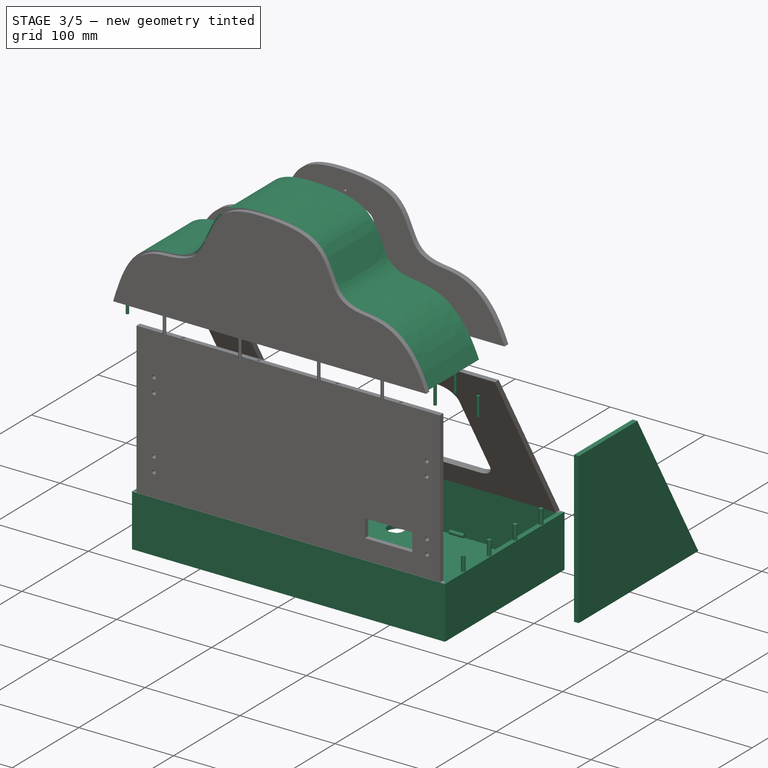
[diagram: stage 3 of 5 — iso view after this stage's code; geometry added in this stage tinted green]
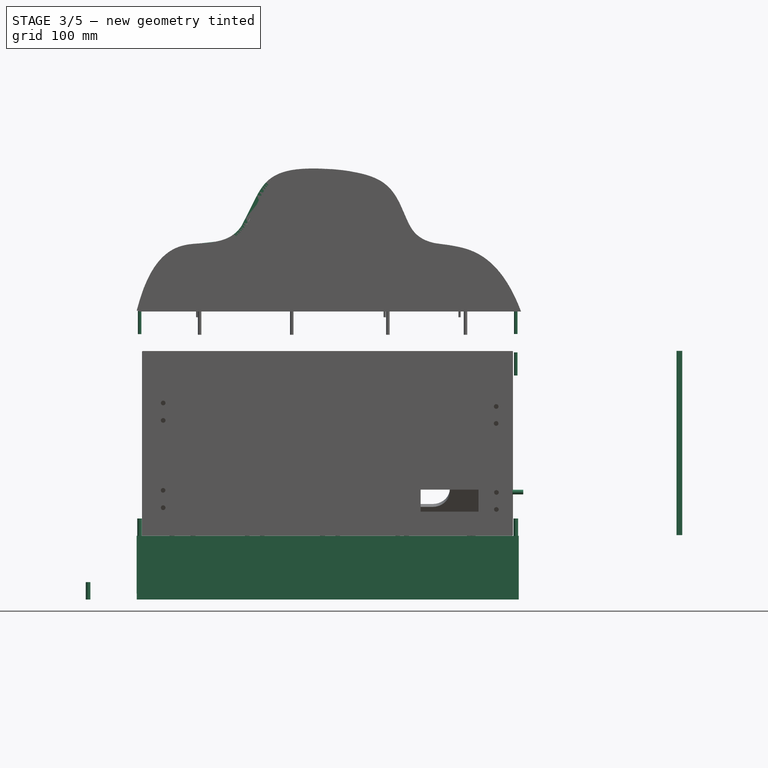
[diagram: stage 3 of 5 — front view after this stage's code; geometry added in this stage tinted green]
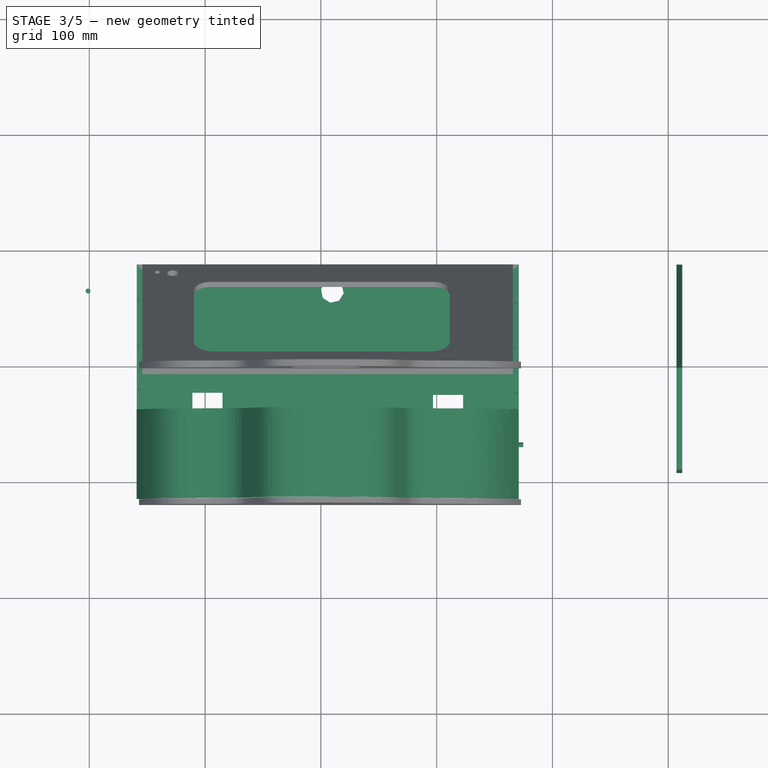
[diagram: stage 3 of 5 — top view after this stage's code; geometry added in this stage tinted green]
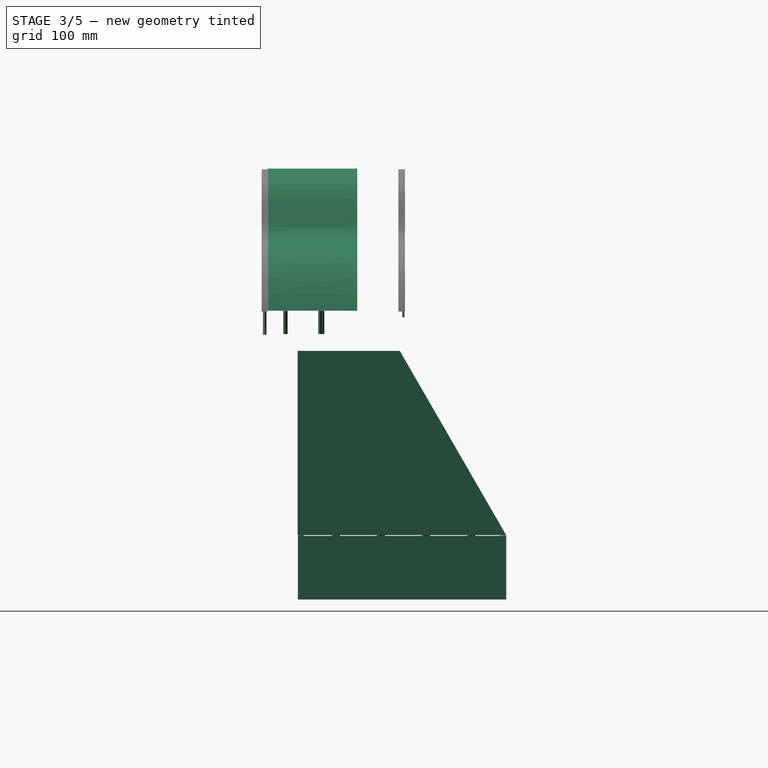
[diagram: stage 3 of 5 — right view after this stage's code; geometry added in this stage tinted green]
FEATURE [Sketcher::SketchObject] Sketch
  ArcFitTolerance = 1e-06
  AttachmentSupport = -> [XY_Plane]
  FullyConstrained = false
  MakeInternals = false
  MapMode = 5
  sketch-geometry (4):
    g0: LineSegment StartX=-159.099 StartY=87.4119 StartZ=0 EndX=-159.099 EndY=-92.5881 EndZ=0
    g1: LineSegment StartX=-159.099 StartY=-92.5881 StartZ=0 EndX=170.901 EndY=-92.5881 EndZ=0
    g2: LineSegment StartX=170.901 StartY=-92.5881 StartZ=0 EndX=170.901 EndY=87.4119 EndZ=0
    g3: LineSegment StartX=170.901 StartY=87.4119 StartZ=0 EndX=-159.099 EndY=87.4119 EndZ=0
  constraints (10):
    c: Coincident(g0,g1)
    c: Coincident(g1,g2)
    c: Coincident(g2,g3)
    c: Coincident(g3,g0)
    c: Vertical(g0)
    c: Vertical(g2)
    c: Horizontal(g1)
    c: Horizontal(g3)
    c: Distance(g0,g2) = 330
    c: Distance(g1,g3) = 180
FEATURE [PartDesign::Pad] Pad  label="Base parte abajo"
  Direction = (0,0,1)
  Length = 5
  Length2 = 10
  Profile = -> Sketch
  ReferenceAxis = -> Sketch [N_Axis]
  Refine = true
  Suppressed = false
  Type = 0
FEATURE [Sketcher::SketchObject] Sketch001
  ArcFitTolerance = 1e-06
  AttachmentSupport = -> [Pad]
  FullyConstrained = false
  MakeInternals = false
  MapMode = 5
  Placement = pos=(0,0,5) rot=(0,0,1;0rad)
  sketch-geometry (25):
    g0: LineSegment StartX=-111 StartY=-22.43 StartZ=0 EndX=-111 EndY=-82.43 EndZ=0
    g1: LineSegment StartX=-111 StartY=-82.43 StartZ=0 EndX=-85 EndY=-82.43 EndZ=0
    g2: LineSegment StartX=-85 StartY=-82.43 StartZ=0 EndX=-85 EndY=-22.43 EndZ=0
    g3: LineSegment StartX=-85 StartY=-22.43 StartZ=0 EndX=-111 EndY=-22.43 EndZ=0
    g4: LineSegment StartX=96.8 StartY=-24.32 StartZ=0 EndX=96.8 EndY=-84.32 EndZ=0
    g5: LineSegment StartX=96.8 StartY=-84.32 StartZ=0 EndX=122.8 EndY=-84.32 EndZ=0
    g6: LineSegment StartX=122.8 StartY=-84.32 StartZ=0 EndX=122.8 EndY=-24.32 EndZ=0
    g7: LineSegment StartX=122.8 StartY=-24.32 StartZ=0 EndX=96.8 EndY=-24.32 EndZ=0
    g8: LineSegment StartX=0 StartY=66.7839 StartZ=0 EndX=1.67889 EndY=59.3166 EndZ=0
    g9: LineSegment StartX=1.67889 StartY=59.3166 StartZ=0 EndX=8.14619 EndY=55.2236 EndZ=0
    g10: LineSegment StartX=8.14619 StartY=55.2236 StartZ=0 EndX=15.6135 EndY=56.9025 EndZ=0
    g11: LineSegment StartX=15.6135 StartY=56.9025 StartZ=0 EndX=19.7064 EndY=63.3698 EndZ=0
    g12: LineSegment StartX=19.7064 StartY=63.3698 StartZ=0 EndX=18.0276 EndY=70.8371 EndZ=0
    g13: LineSegment StartX=18.0276 StartY=70.8371 StartZ=0 EndX=11.5603 EndY=74.9301 EndZ=0
    g14: LineSegment StartX=11.5603 StartY=74.9301 StartZ=0 EndX=4.093 EndY=73.2512 EndZ=0
    g15: LineSegment StartX=4.093 StartY=73.2512 StartZ=0 EndX=0 EndY=66.7839 EndZ=0
    g16: Circle [constr] CenterX=9.85322 CenterY=65.0768 CenterZ=0 NormalX=0 NormalY=0 NormalZ=1 AngleXU=0 Radius=10
    g17: LineSegment StartX=98.1462 StartY=78 StartZ=0 EndX=108.146 EndY=78 EndZ=0
    g18: LineSegment StartX=108.146 StartY=78 StartZ=0 EndX=108.146 EndY=83 EndZ=0
    g19: LineSegment StartX=108.146 StartY=83 StartZ=0 EndX=98.1462 EndY=83 EndZ=0
    g20: LineSegment StartX=98.1462 StartY=83 StartZ=0 EndX=98.1462 EndY=78 EndZ=0
    g21: LineSegment StartX=-100.147 StartY=78 StartZ=0 EndX=-90.1468 EndY=78 EndZ=0
    g22: LineSegment StartX=-90.1468 StartY=78 StartZ=0 EndX=-90.1468 EndY=83 EndZ=0
    g23: LineSegment StartX=-90.1468 StartY=83 StartZ=0 EndX=-100.147 EndY=83 EndZ=0
    g24: LineSegment StartX=-100.147 StartY=83 StartZ=0 EndX=-100.147 EndY=78 EndZ=0
  constraints (67):
    c: Coincident(g0,g1)
    c: Coincident(g1,g2)
    c: Coincident(g2,g3)
    c: Coincident(g3,g0)
    c: Vertical(g0)
    c: Vertical(g2)
    c: Horizontal(g1)
    c: Horizontal(g3)
    c: Distance(g0,g2) = 26
    c: Distance(g1,g3) = 60
    c: Coincident(g4,g5)
    c: Coincident(g5,g6)
    c: Coincident(g6,g7)
    c: Coincident(g7,g4)
    c: Vertical(g4)
    c: Vertical(g6)
    c: Horizontal(g5)
    c: Horizontal(g7)
    c: Distance(g4,g6) = 26
    c: Distance(g5,g7) = 60
    c: Coincident(g8,g9)
    c: Coincident(g9,g10)
    c: Coincident(g10,g11)
    c: Coincident(g11,g12)
    c: Coincident(g12,g13)
    c: Coincident(g13,g14)
    c: Coincident(g14,g15)
    c: Coincident(g15,g8)
    c: Equal(g8, g9-g15) x7
    c: PointOnObject(g8,g16)
    c: PointOnObject(g9,g16)
    c: PointOnObject(g10,g16)
    c: PointOnObject(g11,g16)
    c: PointOnObject(g12,g16)
    c: PointOnObject(g13,g16)
    c: PointOnObject(g14,g16)
    c: PointOnObject(g15,g16)
    c: Radius(g16) = 10
    c: PointOnObject(g15,g-2)
    c: Distance(g-2,g2) = 85
    c: Distance(g4,g-2) = 96.8
    c: Distance(g-1,g7) = 24.32
    c: Distance(g-1,g3) = 22.43
    c: Coincident(g17,g18)
    c: Coincident(g18,g19)
    c: Coincident(g19,g20)
    c: Coincident(g20,g17)
    c: Horizontal(g17)
    c: Horizontal(g19)
    c: Vertical(g18)
    c: Vertical(g20)
    c: Distance(g18,g20) = 10
    c: Distance(g17,g19) = 5
    c: Coincident(g21,g22)
    c: Coincident(g22,g23)
    c: Coincident(g23,g24)
    c: Coincident(g24,g21)
    c: Horizontal(g21)
    c: Horizontal(g23)
    c: Vertical(g22)
    c: Vertical(g24)
    c: Distance(g22,g24) = 10
    c: Distance(g21,g23) = 5
    c: Distance(g21,g-1) = 78
    c: Distance(g-1,g17) = 78
    c: Distance(g16,g22) = 90
    c: Distance(g9,g20) = 90
FEATURE [PartDesign::Pocket] Pocket  label="Huecos ruedas"
  BaseFeature = -> Pad
  Direction = (0,0,-1)
  Length = 5
  Length2 = 5
  Profile = -> Sketch001
  ReferenceAxis = -> Sketch001 [N_Axis]
  Refine = true
  Suppressed = false
  Type = 0
FEATURE [Sketcher::SketchObject] Sketch002
  ArcFitTolerance = 1e-06
  AttachmentSupport = -> [Pocket]
  FullyConstrained = false
  MakeInternals = false
  MapMode = 5
  Placement = pos=(0,0,5) rot=(0,0,1;0rad)
  sketch-geometry (16):
    g0: LineSegment StartX=-159.105 StartY=-92.5785 StartZ=0 EndX=170.895 EndY=-92.5785 EndZ=0
    g1: LineSegment StartX=170.895 StartY=-92.5785 StartZ=0 EndX=170.895 EndY=-87.5785 EndZ=0
    g2: LineSegment StartX=170.895 StartY=-87.5785 StartZ=0 EndX=-159.105 EndY=-87.5785 EndZ=0
    g3: LineSegment StartX=-159.105 StartY=-87.5785 StartZ=0 EndX=-159.105 EndY=-92.5785 EndZ=0
    g4: LineSegment StartX=-159.087 StartY=87.4215 StartZ=0 EndX=-159.087 EndY=82.4215 EndZ=0
    g5: LineSegment StartX=-159.087 StartY=82.4215 StartZ=0 EndX=170.913 EndY=82.4215 EndZ=0
    g6: LineSegment StartX=170.913 StartY=82.4215 StartZ=0 EndX=170.913 EndY=87.4215 EndZ=0
    g7: LineSegment StartX=170.913 StartY=87.4215 StartZ=0 EndX=-159.087 EndY=87.4215 EndZ=0
    g8: LineSegment StartX=-159.087 StartY=82.4215 StartZ=0 EndX=-159.087 EndY=-87.5785 EndZ=0
    g9: LineSegment StartX=-159.087 StartY=-87.5785 StartZ=0 EndX=-154.087 EndY=-87.5785 EndZ=0
    g10: LineSegment StartX=-154.087 StartY=-87.5785 StartZ=0 EndX=-154.087 EndY=82.4215 EndZ=0
    g11: LineSegment StartX=-154.087 StartY=82.4215 StartZ=0 EndX=-159.087 EndY=82.4215 EndZ=0
    g12: LineSegment StartX=170.895 StartY=-87.5785 StartZ=0 EndX=170.895 EndY=82.4215 EndZ=0
    g13: LineSegment StartX=170.895 StartY=82.4215 StartZ=0 EndX=165.895 EndY=82.4215 EndZ=0
    g14: LineSegment StartX=165.895 StartY=82.4215 StartZ=0 EndX=165.895 EndY=-87.5785 EndZ=0
    g15: LineSegment StartX=165.895 StartY=-87.5785 StartZ=0 EndX=170.895 EndY=-87.5785 EndZ=0
  constraints (43):
    c: Coincident(g0,g1)
    c: Coincident(g1,g2)
    c: Coincident(g2,g3)
    c: Coincident(g3,g0)
    c: Horizontal(g0)
    c: Horizontal(g2)
    c: Vertical(g1)
    c: Vertical(g3)
    c: Distance(g1,g3) = 330
    c: Distance(g0,g2) = 5
    c: Coincident(g4,g5)
    c: Coincident(g5,g6)
    c: Coincident(g6,g7)
    c: Coincident(g7,g4)
    c: Vertical(g4)
    c: Vertical(g6)
    c: Horizontal(g5)
    c: Horizontal(g7)
    c: Distance(g4,g6) = 330
    c: Distance(g5,g7) = 5
    c: Coincident(g8,g9)
    c: Coincident(g9,g10)
    c: Coincident(g10,g11)
    c: Coincident(g11,g8)
    c: Vertical(g8)
    c: Vertical(g10)
    c: Horizontal(g9)
    c: Horizontal(g11)
    c: Distance(g8,g10) = 5
    c: Distance(g9,g11) = 170
    c: Coincident(g8,g4)
    c: PointOnObject(g9,g2)
    c: Coincident(g12,g13)
    c: Coincident(g13,g14)
    c: Coincident(g14,g15)
    c: Coincident(g15,g12)
    c: Vertical(g12)
    c: Vertical(g14)
    c: Horizontal(g13)
    c: Horizontal(g15)
    c: Distance(g12,g14) = 5
    c: Distance(g13,g15) = 170
    c: Coincident(g12,g1)
FEATURE [PartDesign::Pad] Pad001  label="Laterales Base"
  BaseFeature = -> Pocket
  Direction = (0,0,1)
  Length = 50
  Length2 = 10
  Profile = -> Sketch002
  ReferenceAxis = -> Sketch002 [N_Axis]
  Refine = true
  Suppressed = false
  Type = 0
FEATURE [Sketcher::SketchObject] Sketch003
  ArcFitTolerance = 1e-06
  AttachmentSupport = -> [Pad001]
  FullyConstrained = false
  MakeInternals = false
  MapMode = 5
  Placement = pos=(0,0,55) rot=(0,0,1;0rad)
  sketch-geometry (13):
    g0: Circle CenterX=-156.64 CenterY=58.5993 CenterZ=0 NormalX=0 NormalY=0 NormalZ=1 AngleXU=0 Radius=2
    g1: Circle CenterX=-156.64 CenterY=19.5993 CenterZ=0 NormalX=0 NormalY=0 NormalZ=1 AngleXU=0 Radius=2
    g2: Circle CenterX=-156.64 CenterY=-19.4007 CenterZ=0 NormalX=0 NormalY=0 NormalZ=1 AngleXU=0 Radius=2
    g3: Circle CenterX=-156.64 CenterY=-58.4007 CenterZ=0 NormalX=0 NormalY=0 NormalZ=1 AngleXU=0 Radius=2
    g4: Circle CenterX=168.4 CenterY=-61.4 CenterZ=0 NormalX=0 NormalY=0 NormalZ=1 AngleXU=0 Radius=2
    g5: Circle CenterX=168.4 CenterY=-22.4 CenterZ=0 NormalX=0 NormalY=0 NormalZ=1 AngleXU=0 Radius=2
    g6: Circle CenterX=168.4 CenterY=16.6 CenterZ=0 NormalX=0 NormalY=0 NormalZ=1 AngleXU=0 Radius=2
    g7: Circle CenterX=168.4 CenterY=55.6 CenterZ=0 NormalX=0 NormalY=0 NormalZ=1 AngleXU=0 Radius=2
    g8: Circle CenterX=-128.417 CenterY=-90.06 CenterZ=0 NormalX=0 NormalY=0 NormalZ=1 AngleXU=0 Radius=2
    g9: Circle CenterX=-63.4172 CenterY=-90.06 CenterZ=0 NormalX=0 NormalY=0 NormalZ=1 AngleXU=0 Radius=2
    g10: Circle CenterX=1.58277 CenterY=-90.06 CenterZ=0 NormalX=0 NormalY=0 NormalZ=1 AngleXU=0 Radius=2
    g11: Circle CenterX=66.5828 CenterY=-90.06 CenterZ=0 NormalX=0 NormalY=0 NormalZ=1 AngleXU=0 Radius=2
    g12: Circle CenterX=131.583 CenterY=-90.06 CenterZ=0 NormalX=0 NormalY=0 NormalZ=1 AngleXU=0 Radius=2
  constraints (37):
    c: Diameter(g0) = 4
    c: Diameter(g1) = 4
    c: Diameter(g2) = 4
    c: Diameter(g3) = 4
    c: Distance(g0,g-2) = 156.64
    c: DistanceX(g1,g-1) = 156.64
    c: DistanceX(g2,g-1) = 156.64
    c: DistanceX(g3,g-1) = 156.64
    c: DistanceY(g1,g0) = 39
    c: DistanceY(g2,g1) = 39
    c: DistanceY(g3,g2) = 39
    c: Diameter(g4) = 4
    c: Diameter(g5) = 4
    c: Diameter(g6) = 4
    c: Diameter(g7) = 4
    c: Distance(g7,g-2) = 168.4
    c: Distance(g6,g-2) = 168.4
    c: DistanceX(g-1,g5) = 168.4
    c: DistanceX(g-1,g4) = 168.4
    c: Distance(g6,g-1) = 16.6
    c: DistanceY(g6,g7) = 39
    c: DistanceY(g5,g6) = 39
    c: DistanceY(g4,g5) = 39
    c: Diameter(g8) = 4
    c: Diameter(g9) = 4
    c: Diameter(g10) = 4
    c: Diameter(g11) = 4
    c: Diameter(g12) = 4
    c: DistanceX(g8,g9) = 65
    c: DistanceX(g9,g10) = 65
    c: DistanceX(g10,g11) = 65
    c: DistanceX(g11,g12) = 65
    c: Distance(g8,g-1) = 90.06
    c: DistanceY(g9,g-1) = 90.06
    c: DistanceY(g10,g-1) = 90.06
    c: DistanceY(g11,g-1) = 90.06
    c: DistanceY(g12,g-1) = 90.06
FEATURE [PartDesign::Pad] Pad002  label="Encaje Base"
  BaseFeature = -> Pad001
  Direction = (0,0,1)
  Length = 15
  Length2 = 10
  Profile = -> Sketch003
  ReferenceAxis = -> Sketch003 [N_Axis]
  Refine = true
  Suppressed = false
  Type = 0
FEATURE [PartDesign::Body] Body002  label="Pieza corte tronco frontal inf"
  AllowCompound = false
  Group = -> [Sketch005,Pad004]
  Origin = -> Origin002
  Placement = pos=(-1,132,-1) rot=(0,0,1;0rad)
  Tip = -> Pad004
FEATURE [Sketcher::SketchObject] Sketch006
  ArcFitTolerance = 1e-06
  AttachmentSupport = -> [XZ_Plane003]
  FullyConstrained = false
  MakeInternals = false
  MapMode = 5
  Placement = pos=(0,0,0) rot=(1,0,0;1.5708rad)
  sketch-geometry (1):
    g0: Circle CenterX=12.9918 CenterY=142.879 CenterZ=0 NormalX=0 NormalY=0 NormalZ=1 AngleXU=0 Radius=7.5
  constraints (1):
    c: Diameter(g0) = 15
FEATURE [PartDesign::Pad] Pad005
  Direction = (0,-1,2e-16)
  Length = 10
  Length2 = 10
  Placement = pos=(0,0,0) rot=(1,0,0;1.5708rad)
  Profile = -> Sketch006
  ReferenceAxis = -> Sketch006 [N_Axis]
  Refine = true
  Suppressed = false
  Type = 0
FEATURE [PartDesign::Body] Body003  label="distancia 1"
  AllowCompound = false
  Group = -> [Sketch006,Pad005]
  Origin = -> Origin003
  Placement = pos=(1.5,90.5,-117) rot=(0,0,1;0rad)
  Tip = -> Pad005
FEATURE [Sketcher::SketchObject] Sketch007
  ArcFitTolerance = 1e-06
  AttachmentSupport = -> [XZ_Plane004]
  FullyConstrained = true
  MakeInternals = false
  MapMode = 5
  Placement = pos=(0,0,0) rot=(1,0,0;1.5708rad)
  sketch-geometry (1):
    g0: Circle CenterX=-20.01 CenterY=142.38 CenterZ=0 NormalX=0 NormalY=0 NormalZ=1 AngleXU=0 Radius=7.5
  constraints (3):
    c: Diameter(g0) = 15
    c: Distance(g0,g-2) = 20.01
    c: Distance(g0,g-1) = 142.38
FEATURE [PartDesign::Pad] Pad006
  Direction = (0,-1,2e-16)
  Length = 10
  Length2 = 10
  Placement = pos=(0,0,0) rot=(1,0,0;1.5708rad)
  Profile = -> Sketch007
  ReferenceAxis = -> Sketch007 [N_Axis]
  Refine = true
  Suppressed = false
  Type = 0
FEATURE [Part::FeaturePython] Cutout001  label="Base - distancia 1"  # WARN: FeaturePython — macro-defined, semantics opaque (R4)
  Base = -> Body
  Refine = true
  Tolerance = 0
  Tool = -> Body003
FEATURE [Sketcher::SketchObject] Sketch014
  ArcFitTolerance = 1e-06
  AttachmentSupport = -> [XY_Plane011]
  FullyConstrained = false
  MakeInternals = false
  MapMode = 5
  sketch-geometry (1):
    g0: Circle CenterX=-140.748 CenterY=84.84 CenterZ=0 NormalX=0 NormalY=0 NormalZ=1 AngleXU=0 Radius=2
  constraints (2):
    c: Diameter(g0) = 4
    c: Distance(g0,g-1) = 84.84
FEATURE [PartDesign::Pad] Pad013
  Direction = (0,0,1)
  Length = 10
  Length2 = 10
  Profile = -> Sketch014 [Edge1]
  ReferenceAxis = -> Sketch014 [N_Axis]
  Refine = true
  Suppressed = false
  Type = 0
FEATURE [PartDesign::Body] Body013  label="Encaje-tronco frontal 001"
  AllowCompound = false
  Group = -> [Sketch016,Pad015]
  Origin = -> Origin013
  Placement = pos=(0,5,63.5) rot=(0,0,1;0rad)
  Tip = -> Pad015
FEATURE [Sketcher::SketchObject] Sketch017
  ArcFitTolerance = 1e-06
  AttachmentSupport = -> [XY_Plane014]
  FullyConstrained = false
  MakeInternals = false
  MapMode = 5
  sketch-geometry (1):
    g0: Circle CenterX=-140.748 CenterY=84.84 CenterZ=0 NormalX=0 NormalY=0 NormalZ=1 AngleXU=0 Radius=2
  constraints (2):
    c: Diameter(g0) = 4
    c: Distance(g0,g-1) = 84.84
FEATURE [PartDesign::Pad] Pad016
  Direction = (0,0,1)
  Length = 10
  Length2 = 10
  Profile = -> Sketch017 [Edge1]
  ReferenceAxis = -> Sketch017 [N_Axis]
  Refine = true
  Suppressed = false
  Type = 0
FEATURE [PartDesign::Body] Body014  label="Encaje base-soporte 002"
  AllowCompound = false
  Group = -> [Sketch017,Pad016]
  Origin = -> Origin014
  Placement = pos=(215,0,45.5) rot=(0,0,1;0rad)
  Tip = -> Pad016
FEATURE [Sketcher::SketchObject] Sketch018
  ArcFitTolerance = 1e-06
  AttachmentSupport = -> [XY_Plane015]
  FullyConstrained = false
  MakeInternals = false
  MapMode = 5
  sketch-geometry (1):
    g0: Circle CenterX=-140.748 CenterY=84.84 CenterZ=0 NormalX=0 NormalY=0 NormalZ=1 AngleXU=0 Radius=2
  constraints (2):
    c: Diameter(g0) = 4
    c: Distance(g0,g-1) = 84.84
FEATURE [PartDesign::Pad] Pad017
  Direction = (0,0,1)
  Length = 10
  Length2 = 10
  Profile = -> Sketch018 [Edge1]
  ReferenceAxis = -> Sketch018 [N_Axis]
  Refine = true
  Suppressed = false
  Type = 0
FEATURE [PartDesign::Body] Body015  label="Encaje base-soporte 003"
  AllowCompound = false
  Group = -> [Sketch018,Pad017]
  Origin = -> Origin015
  Placement = pos=(155.5,0,45.5) rot=(0,0,1;0rad)
  Tip = -> Pad017
FEATURE [Sketcher::SketchObject] Sketch019
  ArcFitTolerance = 1e-06
  AttachmentSupport = -> [XY_Plane016]
  FullyConstrained = false
  MakeInternals = false
  MapMode = 5
  sketch-geometry (1):
    g0: Circle CenterX=-140.748 CenterY=84.84 CenterZ=0 NormalX=0 NormalY=0 NormalZ=1 AngleXU=0 Radius=2
  constraints (2):
    c: Diameter(g0) = 4
    c: Distance(g0,g-1) = 84.84
FEATURE [PartDesign::Pad] Pad018
  Direction = (0,0,1)
  Length = 10
  Length2 = 10
  Profile = -> Sketch019 [Edge1]
  ReferenceAxis = -> Sketch019 [N_Axis]
  Refine = true
  Suppressed = false
  Type = 0
FEATURE [PartDesign::Body] Body016  label="Encaje base-soporte 004"
  AllowCompound = false
  Group = -> [Sketch019,Pad018]
  Origin = -> Origin016
  Placement = pos=(90.5,0,45.5) rot=(0,0,1;0rad)
  Tip = -> Pad018
FEATURE [Sketcher::SketchObject] Sketch020
  ArcFitTolerance = 1e-06
  AttachmentSupport = -> [XY_Plane017]
  FullyConstrained = false
  MakeInternals = false
  MapMode = 5
  sketch-geometry (1):
    g0: Circle CenterX=-140.748 CenterY=84.84 CenterZ=0 NormalX=0 NormalY=0 NormalZ=1 AngleXU=0 Radius=2
  constraints (2):
    c: Diameter(g0) = 4
    c: Distance(g0,g-1) = 84.84
FEATURE [PartDesign::Pad] Pad019
  Direction = (0,0,1)
  Length = 10
  Length2 = 10
  Profile = -> Sketch020 [Edge1]
  ReferenceAxis = -> Sketch020 [N_Axis]
  Refine = true
  Suppressed = false
  Type = 0
FEATURE [Sketcher::SketchObject] Sketch025
  ArcFitTolerance = 1e-06
  AttachmentSupport = -> [YZ_Plane022]
  FullyConstrained = false
  MakeInternals = false
  MapMode = 5
  Placement = pos=(0,0,0) rot=(0.57735,0.57735,0.57735;2.0944rad)
  sketch-geometry (4):
    g0: LineSegment StartX=-95.7354 StartY=59.0066 StartZ=0 EndX=84.2646 EndY=59.0066 EndZ=0
    g1: LineSegment StartX=84.2646 StartY=59.0066 StartZ=0 EndX=-7.60538 EndY=218.13 EndZ=0
    g2: LineSegment StartX=-7.60538 StartY=218.13 StartZ=0 EndX=-95.7354 EndY=218.13 EndZ=0
    g3: LineSegment StartX=-95.7354 StartY=218.13 StartZ=0 EndX=-95.7354 EndY=59.0066 EndZ=0
  constraints (10):
    c: Horizontal(g0)
    c: Coincident(g0,g1)
    c: Coincident(g1,g2)
    c: Coincident(g2,g3)
    c: Coincident(g3,g0)
    c: Vertical(g3)
    c: Angle(g1,g0) = 1.0472
    c: Distance(g1,g1) = 183.74
    c: Angle(g2,g1) = 2.0944
    c: Distance(g0,g0) = 180
FEATURE [PartDesign::Pad] Pad024
  Direction = (1,0,0)
  Length = 5
  Length2 = 10
  Placement = pos=(0,0,0) rot=(1,1,1;2.0944rad)
  Profile = -> Sketch025
  ReferenceAxis = -> Sketch025 [N_Axis]
  Refine = true
  Suppressed = false
  Type = 0
FEATURE [PartDesign::Body] Body033  label="encaje 4 lateral 2"
  AllowCompound = false
  Group = -> [Sketch036,Pad035]
  Origin = -> Origin033
  Placement = pos=(5.5,-126.55,55.9) rot=(0,0,1;0rad)
  Tip = -> Pad035
FEATURE [Sketcher::SketchObject] Sketch037
  ArcFitTolerance = 1e-06
  AttachmentSupport = -> [XY_Plane034]
  FullyConstrained = true
  MakeInternals = false
  MapMode = 5
  sketch-geometry (1):
    g0: Circle CenterX=-200.54 CenterY=55.39 CenterZ=0 NormalX=0 NormalY=0 NormalZ=1 AngleXU=0 Radius=2
  constraints (3):
    c: Diameter(g0) = 4
    c: DistanceY(g-1,g0) = 55.39
    c: DistanceX(g0,g-1) = 200.54
FEATURE [PartDesign::Pad] Pad036
  Direction = (0,0,1)
  Length = 15
  Length2 = 10
  Profile = -> Sketch037
  ReferenceAxis = -> Sketch037 [N_Axis]
  Refine = true
  Suppressed = false
  Type = 0
FEATURE [PartDesign::Body] Body034  label="encaje lateral 1"
  AllowCompound = false
  Group = -> [Sketch037,Pad036]
  Origin = -> Origin034
  Placement = pos=(510.15,0,55.6) rot=(0,0,1;0rad)
  Tip = -> Pad036
FEATURE [Sketcher::SketchObject] Sketch038
  ArcFitTolerance = 1e-06
  AttachmentSupport = -> [XY_Plane035]
  FullyConstrained = true
  MakeInternals = false
  MapMode = 5
  sketch-geometry (1):
    g0: Circle CenterX=-200.44 CenterY=46.49 CenterZ=0 NormalX=0 NormalY=0 NormalZ=1 AngleXU=0 Radius=2
  constraints (3):
    c: Diameter(g0) = 4
    c: DistanceY(g-1,g0) = 46.49
    c: DistanceX(g0,g-1) = 200.44
FEATURE [PartDesign::Pad] Pad037
  Direction = (0,0,1)
  Length = 15
  Length2 = 10
  Profile = -> Sketch038
  ReferenceAxis = -> Sketch038 [N_Axis]
  Refine = true
  Suppressed = false
  Type = 0
FEATURE [PartDesign::Body] Body035  label="encaje 2 lateral 1"
  AllowCompound = false
  Group = -> [Sketch038,Pad037]
  Origin = -> Origin035
  Placement = pos=(510.05,-30.1,55.1) rot=(0,0,1;0rad)
  Tip = -> Pad037
FEATURE [Sketcher::SketchObject] Sketch039
  ArcFitTolerance = 1e-06
  AttachmentSupport = -> [XY_Plane036]
  FullyConstrained = true
  MakeInternals = false
  MapMode = 5
  sketch-geometry (1):
    g0: Circle CenterX=-200.91 CenterY=47.44 CenterZ=0 NormalX=0 NormalY=0 NormalZ=1 AngleXU=0 Radius=1.92
  constraints (3):
    c: Diameter(g0) = 3.84
    c: DistanceX(g0,g-1) = 200.91
    c: DistanceY(g-1,g0) = 47.44
FEATURE [PartDesign::Pad] Pad038
  Direction = (0,0,1)
  Length = 15
  Length2 = 10
  Profile = -> Sketch039
  ReferenceAxis = -> Sketch039 [N_Axis]
  Refine = true
  Suppressed = false
  Type = 0
FEATURE [PartDesign::Body] Body036  label="encaje 3 lateral 1"
  AllowCompound = false
  Group = -> [Sketch039,Pad038]
  Origin = -> Origin036
  Placement = pos=(510.6,-70.05,53.5) rot=(0,0,1;0rad)
  Tip = -> Pad038
FEATURE [Sketcher::SketchObject] Sketch040
  ArcFitTolerance = 1e-06
  AttachmentSupport = -> [XY_Plane037]
  FullyConstrained = true
  MakeInternals = false
  MapMode = 5
  sketch-geometry (1):
    g0: Circle CenterX=-201.09 CenterY=65.34 CenterZ=0 NormalX=0 NormalY=0 NormalZ=1 AngleXU=0 Radius=2
  constraints (3):
    c: Diameter(g0) = 4
    c: Distance(g0,g-1) = 65.34
    c: DistanceX(g0,g-1) = 201.09
FEATURE [PartDesign::Pad] Pad039
  Direction = (0,0,1)
  Length = 15
  Length2 = 10
  Profile = -> Sketch040
  ReferenceAxis = -> Sketch040 [N_Axis]
  Refine = true
  Suppressed = false
  Type = 0
FEATURE [Part::FeaturePython] Cutout018  label="lateral 1 - hueco"  # WARN: FeaturePython — macro-defined, semantics opaque (R4)
  Base = -> Body022
  Refine = true
  Tolerance = 0
  Tool = -> Body034
FEATURE [Part::FeaturePython] Cutout019  label="lateral 1 - hueco 2"  # WARN: FeaturePython — macro-defined, semantics opaque (R4)
  Base = -> Cutout018
  Refine = true
  Tolerance = 0
  Tool = -> Body035
FEATURE [Part::FeaturePython] Cutout020  label="lateral 1 - hueco 3"  # WARN: FeaturePython — macro-defined, semantics opaque (R4)
  Base = -> Cutout019
  Refine = true
  Tolerance = 0
  Tool = -> Body036
FEATURE [Sketcher::SketchObject] Sketch070
  ArcFitTolerance = 1e-06
  AttachmentSupport = -> [YZ_Plane004]
  FullyConstrained = false
  MakeInternals = false
  MapMode = 5
  Placement = pos=(0,0,0) rot=(0.57735,0.57735,0.57735;2.0944rad)
  sketch-geometry (3):
    g0: LineSegment StartX=0 StartY=113.506 StartZ=0 EndX=0 EndY=59.8093 EndZ=0
    g1: LineSegment StartX=0 StartY=59.8093 StartZ=0 EndX=53.6968 EndY=113.506 EndZ=0
    g2: LineSegment StartX=53.6968 StartY=113.506 StartZ=0 EndX=0 EndY=113.506 EndZ=0
  constraints (7):
    c: PointOnObject(g0,g-2)
    c: PointOnObject(g0,g-2)
    c: Coincident(g0,g1)
    c: Coincident(g1,g2)
    c: Coincident(g2,g0)
    c: Angle(g2,g0) = 1.5708
    c: Angle(g1,g0) = 0.785398
FEATURE [Sketcher::SketchObject] Sketch071
  ArcFitTolerance = 1e-06
  AttachmentSupport = -> [YZ_Plane004]
  FullyConstrained = true
  MakeInternals = false
  MapMode = 5
  Placement = pos=(0,0,0) rot=(0.57735,0.57735,0.57735;2.0944rad)
FEATURE [PartDesign::Body] Body004  label="distancia 2"
  AllowCompound = false
  Group = -> [Sketch007,Pad006,Sketch070,Sketch071]
  Origin = -> Origin004
  Placement = pos=(9.5,90.5,-116.5) rot=(0,0,1;0rad)
  Tip = -> Pad006
FEATURE [Part::FeaturePython] Cutout002  label="Base huecos distancia"  # WARN: FeaturePython — macro-defined, semantics opaque (R4)
  Base = -> Cutout001
  Refine = true
  Tolerance = 0
  Tool = -> Body004
FEATURE [Part::FeaturePython] Cutout004  label="Base - hueco soporte 1"  # WARN: FeaturePython — macro-defined, semantics opaque (R4)
  Base = -> Cutout002
  Refine = true
  Tolerance = 0
  Tool = -> Body011
FEATURE [Part::FeaturePython] Cutout005  label="Base- hueco soporte 2"  # WARN: FeaturePython — macro-defined, semantics opaque (R4)
  Base = -> Cutout004
  Refine = true
  Tolerance = 0
  Tool = -> Body014
FEATURE [Part::FeaturePython] Cutout006  label="Base - hueco soporte 3"  # WARN: FeaturePython — macro-defined, semantics opaque (R4)
  Base = -> Cutout005
  Refine = true
  Tolerance = 0
  Tool = -> Body015
FEATURE [Part::FeaturePython] Cutout007  label="Base - hueco soporte 4"  # WARN: FeaturePython — macro-defined, semantics opaque (R4)
  Base = -> Cutout006
  Refine = true
  Tolerance = 0
  Tool = -> Body016
FEATURE [Part::FeaturePython] Cutout008  label="Base con huecos y encajes"  # WARN: FeaturePython — macro-defined, semantics opaque (R4)
  Base = -> Cutout007
  Refine = true
  Tolerance = 0
  Tool = -> Body017
FEATURE [Part::Cylinder] Cylinder010  label="Cilindro010"
  Angle = 360
  AttacherType = Attacher::AttachEngine3D
  FirstAngle = 0
  Height = 20
  Placement = pos=(168.33,-39.02,193.48) rot=(0,0,1;0rad)
  Radius = 1.5
  SecondAngle = 0
FEATURE [PartDesign::Body] Body051  label="Cara Robot Trasera"
  AllowCompound = false
  Group = -> [Sketch076,Pad073]
  Origin = -> Origin051
  Placement = pos=(0,-118.825,0) rot=(0,0,1;0rad)
  Tip = -> Pad073
FEATURE [Sketcher::SketchObject] Sketch077
  ArcFitTolerance = 1e-06
  AttachmentSupport = -> [XZ_Plane052]
  FullyConstrained = false
  MakeInternals = false
  MapMode = 5
  Placement = pos=(0,0,0) rot=(1,0,0;1.5708rad)
  sketch-geometry (22):
    g0-g10: Circle [constr] x11 (B-spline internal-alignment scaffolding for g11; pole/knot coordinates omitted)
    g11: BSplineCurve PolesCount=11 KnotsCount=9 Degree=3 IsPeriodic=0
    g12-g20: GeomPoint [constr] x9 (B-spline internal-alignment scaffolding for g11; pole/knot coordinates omitted)
    g21: LineSegment StartX=-155.743 StartY=248.736 StartZ=0 EndX=174.257 EndY=248.736 EndZ=0
  constraints (15):
    c: Weight(g0) = 1
    c: Equal(g0, g1-g10) x10
    c: InternalAlignment(g0-g10 -> g11) x11
    c: InternalAlignment(g12-g20 -> g11) x9
    c: PointOnObject(g5,g-2)
    c: Distance(g21,g21) = 330
    c: Coincident(g11,g21)
    c: Coincident(g21,g11)
    c: Angle(g21,g-2) = 1.5708
    c: Distance(g13,g-1) = 307.06
    c: DistanceY(g-1,g19) = 307.06
    c: Distance(g1,g-1) = 305.96
    c: DistanceY(g-1,g9) = 305.96
    c: DistanceY(g-1,g15) = 360.76
    c: DistanceY(g-1,g17) = 360.76
FEATURE [PartDesign::Pad] Pad074
  Direction = (0,-1,2e-16)
  Length = 77.36
  Length2 = 10
  Placement = pos=(0,0,0) rot=(1,0,0;1.5708rad)
  Profile = -> Sketch077
  ReferenceAxis = -> Sketch077 [N_Axis]
  Refine = true
  Suppressed = false
  Type = 0
FEATURE [PartDesign::Body] Body052  label="Cara Robot cubierta"
  AllowCompound = false
  Group = -> [Sketch077,Pad074]
  Origin = -> Origin052
  Placement = pos=(420.275,-22.775,0) rot=(0,0,1;0rad)
  Tip = -> Pad074
FEATURE [Sketcher::SketchObject] Sketch078
  ArcFitTolerance = 1e-06
  AttachmentSupport = -> [XZ_Plane053]
  FullyConstrained = false
  MakeInternals = false
  MapMode = 5
  Placement = pos=(0,0,0) rot=(1,0,0;1.5708rad)
  sketch-geometry (22):
    g0-g10: Circle [constr] x11 (B-spline internal-alignment scaffolding for g11; pole/knot coordinates omitted)
    g11: BSplineCurve PolesCount=11 KnotsCount=9 Degree=3 IsPeriodic=0
    g12-g20: GeomPoint [constr] x9 (B-spline internal-alignment scaffolding for g11; pole/knot coordinates omitted)
    g21: LineSegment StartX=-148.904 StartY=250.002 StartZ=0 EndX=168.721 EndY=250.002 EndZ=0
  constraints (9):
    c: Weight(g0) = 1
    c: Equal(g0, g1-g10) x10
    c: InternalAlignment(g0-g10 -> g11) x11
    c: InternalAlignment(g12-g20 -> g11) x9
    c: PointOnObject(g5,g-2)
    c: Coincident(g11,g21)
    c: Coincident(g21,g11)
    c: Angle(g21,g-2) = 1.5708
    c: DistanceY(g-1,g9) = 305.96
FEATURE [PartDesign::Pad] Pad075
  Direction = (0,-1,2e-16)
  Length = 77.36
  Length2 = 10
  Placement = pos=(0,0,0) rot=(1,0,0;1.5708rad)
  Profile = -> Sketch078
  ReferenceAxis = -> Sketch078 [N_Axis]
  Refine = true
  Suppressed = false
  Type = 0
FEATURE [PartDesign::Body] Body053  label="Cara Robot cubierta001"
  AllowCompound = false
  Group = -> [Sketch078,Pad075]
  Origin = -> Origin053
  Placement = pos=(420.275,-22.775,-4.575) rot=(0,0,1;0rad)
  Tip = -> Pad075
FEATURE [Part::Cut] Cut012  label="Cara robot cubierta corte"
  Base = -> Body052
  Placement = pos=(-423.65,-18.525,0.65) rot=(0,0,1;0rad)
  Refine = true
  Tool = -> Body053
FEATURE [PartDesign::Body] Body050  label="Cara Robot Frontal"
  AllowCompound = false
  Group = -> [Sketch075,Pad072,Sketch079,Pocket001,Sketch080,Pocket002,LinearPattern]
  Origin = -> Origin050
  Tip = -> LinearPattern
FEATURE [Part::Cylinder] Cylinder012  label="Cilindro012"
  Angle = 360
  AttacherType = Attacher::AttachEngine3D
  FirstAngle = 0
  Height = 20
  Placement = pos=(168.26,-73.51,229.32) rot=(0,0,1;0rad)
  Radius = 1.5
  SecondAngle = 0
FEATURE [Part::Cylinder] Cylinder014  label="Cilindro014"
  Angle = 360
  AttacherType = Attacher::AttachEngine3D
  FirstAngle = 0
  Height = 20
  Placement = pos=(-156.58,-71.25,229.25) rot=(0,0,1;0rad)
  Radius = 1.5
  SecondAngle = 0
FEATURE [Part::Cylinder] Cylinder016  label="Cilindro013"
  Angle = 360
  AttacherType = Attacher::AttachEngine3D
  FirstAngle = 0
  Height = 20
  Placement = pos=(168.26,-103.69,229.32) rot=(0,0,1;0rad)
  Radius = 1.5
  SecondAngle = 0
FEATURE [Part::Cylinder] Cylinder017  label="Cilindro015"
  Angle = 360
  AttacherType = Attacher::AttachEngine3D
  FirstAngle = 0
  Height = 20
  Placement = pos=(-156.58,-103.05,229.25) rot=(0,0,1;0rad)
  Radius = 1.5
  SecondAngle = 0
FEATURE [Part::MultiFuse] Fusion005  label="Tapa cabeza - encj 1"
  Refine = true
  Shapes = -> [Cut012,Cylinder012]
FEATURE [Part::MultiFuse] Fusion006  label="Tapa cabeza - encj 2"
  Refine = true
  Shapes = -> [Fusion005,Cylinder016]
FEATURE [Part::MultiFuse] Fusion007  label="Tapa cabeza - encj 3"
  Refine = true
  Shapes = -> [Fusion006,Cylinder017]
FEATURE [Part::MultiFuse] Fusion008  label="Tapa cabeza - encj 4"
  Refine = true
  Shapes = -> [Fusion007,Cylinder014]
FEATURE [Part::Cylinder] Cylinder055  label="Cilindro053"
  Angle = 360
  AttacherType = Attacher::AttachEngine3D
  FirstAngle = 0
  Height = 15
  Placement = pos=(159.755,-69.055,92.825) rot=(0,1,0;1.5708rad)
  Radius = 2
  SecondAngle = 0
FEATURE [Part::FeaturePython] Cutout054  label="Tronco Trasero - hueco solapa 9"  # WARN: FeaturePython — macro-defined, semantics opaque (R4)
  Base = -> Cutout053
  Refine = true
  Tolerance = 0
  Tool = -> Cylinder060
FEATURE [Part::Plane] Plane  label="Plano"
  AttacherType = Attacher::AttachEngine3D
  Length = 400
  Placement = pos=(-2.83e-14,-152.15,127.35) rot=(0,1,0;1.5708rad)
  Width = 400
FEATURE [Part::FeaturePython] Slice  # WARN: FeaturePython — macro-defined, semantics opaque (R4)
  Base = -> Cutout008
  Mode = 1
  Tolerance = 0
  Tools = -> [Plane]
FEATURE [Part::FeaturePython] Slice_child0  label="Base 1"  # WARN: FeaturePython — macro-defined, semantics opaque (R4)
  Base = -> Slice
  FilterType = 1
  Invert = false
  OverrideMaxVal = 0
  WindowFrom = 80
  WindowTo = 100
  items = 0
FEATURE [Part::FeaturePython] Slice_child1  label="Base 2"  # WARN: FeaturePython — macro-defined, semantics opaque (R4)
  Base = -> Slice
  FilterType = 1
  Invert = false
  OverrideMaxVal = 0
  WindowFrom = 80
  WindowTo = 100
  items = 1
FEATURE [Part::Plane] Plane006  label="Plano006"
  AttacherType = Attacher::AttachEngine3D
  Length = 400
  Placement = pos=(-5.74e-14,-247.525,258.525) rot=(0,1,0;1.5708rad)
  Width = 400
FEATURE [Part::FeaturePython] Slice002  # WARN: FeaturePython — macro-defined, semantics opaque (R4)
  Base = -> Cutout054
  Mode = 1
  Tolerance = 0
  Tools = -> [Plane006]
FEATURE [Part::Plane] Plane007  label="Plano007"
  AttacherType = Attacher::AttachEngine3D
  Length = 400
  Placement = pos=(-9.11e-14,-247.525,410.325) rot=(0,1,0;1.5708rad)
  Width = 400
FEATURE [Part::FeaturePython] Slice003  # WARN: FeaturePython — macro-defined, semantics opaque (R4)
  Base = -> Fusion008
  Mode = 1
  Tolerance = 0
  Tools = -> [Plane007]
FEATURE [Part::FeaturePython] Slice003_child0  label="Slice003.0"  # WARN: FeaturePython — macro-defined, semantics opaque (R4)
  Base = -> Slice003
  FilterType = 1
  Invert = false
  OverrideMaxVal = 0
  WindowFrom = 80
  WindowTo = 100
  items = 0
FEATURE [Part::FeaturePython] Slice003_child1  label="Slice003.1"  # WARN: FeaturePython — macro-defined, semantics opaque (R4)
  Base = -> Slice003
  FilterType = 1
  Invert = false
  OverrideMaxVal = 0
  WindowFrom = 80
  WindowTo = 100
  items = 1
FEATURE [Part::FeaturePython] Slice003_child2  label="Slice003.2"  # WARN: FeaturePython — macro-defined, semantics opaque (R4)
  Base = -> Slice003
  FilterType = 1
  Invert = false
  OverrideMaxVal = 0
  WindowFrom = 80
  WindowTo = 100
  items = 2
FEATURE [Part::FeaturePython] Slice003_child3  label="Slice003.3"  # WARN: FeaturePython — macro-defined, semantics opaque (R4)
  Base = -> Slice003
  FilterType = 1
  Invert = false
  OverrideMaxVal = 0
  WindowFrom = 80
  WindowTo = 100
  items = 3
FEATURE [Part::FeaturePython] Slice003_child4  label="Slice003.4"  # WARN: FeaturePython — macro-defined, semantics opaque (R4)
  Base = -> Slice003
  FilterType = 1
  Invert = false
  OverrideMaxVal = 0
  WindowFrom = 80
  WindowTo = 100
  items = 4
FEATURE [Part::FeaturePython] Slice003_child5  label="Slice003.5"  # WARN: FeaturePython — macro-defined, semantics opaque (R4)
  Base = -> Slice003
  FilterType = 1
  Invert = false
  OverrideMaxVal = 0
  WindowFrom = 80
  WindowTo = 100
  items = 5
FEATURE [Part::MultiFuse] Fusion017  label="Tapa Cara 1"
  Refine = true
  Shapes = -> [Slice003_child4,Slice003_child1,Slice003_child0]
FEATURE [Part::MultiFuse] Fusion018  label="Tapa Cara 2"
  Refine = true
  Shapes = -> [Slice003_child5,Slice003_child3,Slice003_child2]
FEATURE [App::DocumentObjectGroup] GrExplode_Slice003  label="Tapa Cara dividida"
  Group = -> [Fusion017,Fusion018]
FEATURE [Part::FeaturePython] Slice002_child0  label="Slice002.0"  # WARN: FeaturePython — macro-defined, semantics opaque (R4)
  Base = -> Slice002
  FilterType = 1
  Invert = false
  OverrideMaxVal = 0
  WindowFrom = 80
  WindowTo = 100
  items = 0
FEATURE [Part::FeaturePython] Slice002_child1  label="Slice002.1"  # WARN: FeaturePython — macro-defined, semantics opaque (R4)
  Base = -> Slice002
  FilterType = 1
  Invert = false
  OverrideMaxVal = 0
  WindowFrom = 80
  WindowTo = 100
  items = 1
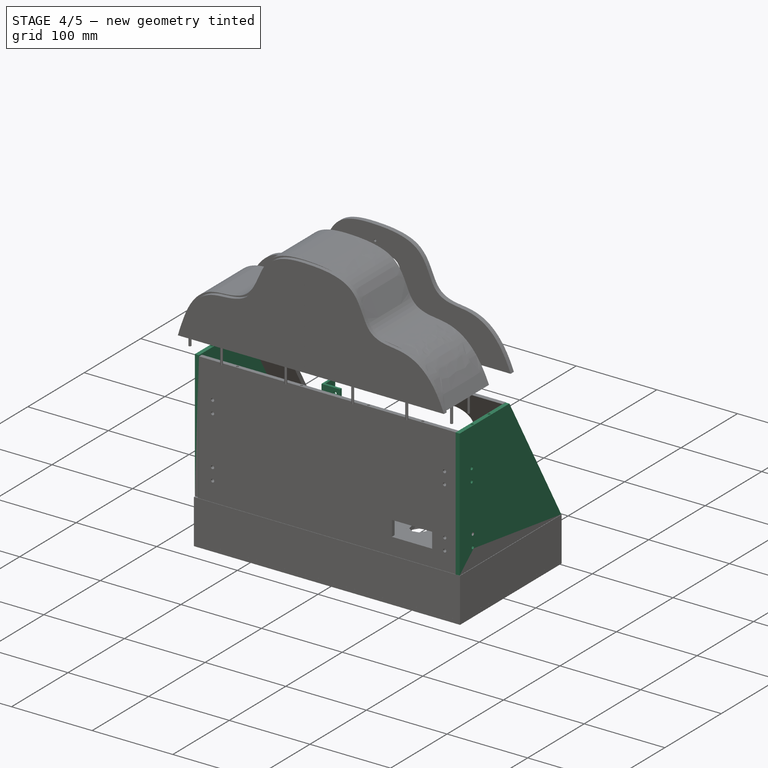
[diagram: stage 4 of 5 — iso view after this stage's code; geometry added in this stage tinted green]
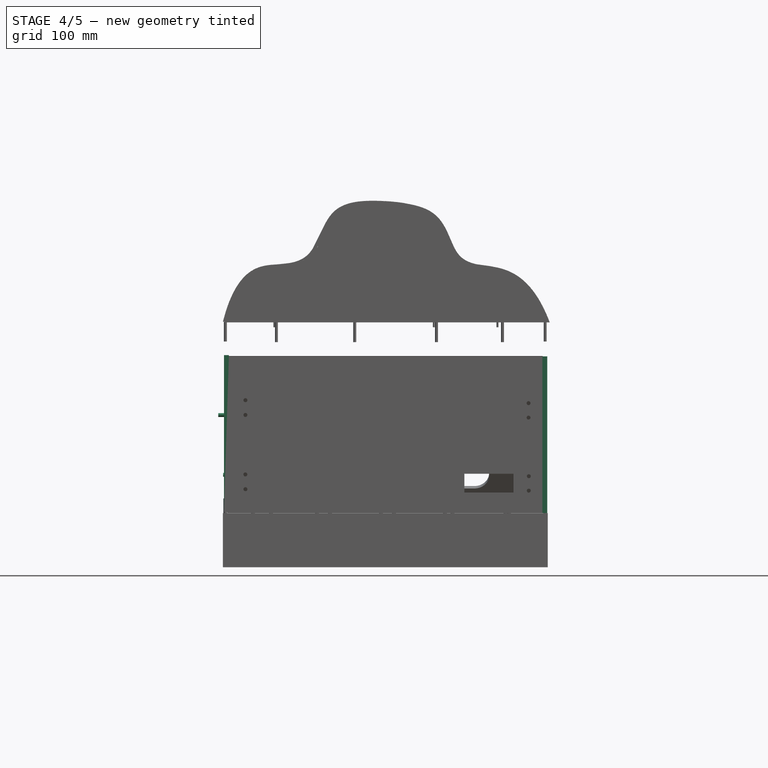
[diagram: stage 4 of 5 — front view after this stage's code; geometry added in this stage tinted green]
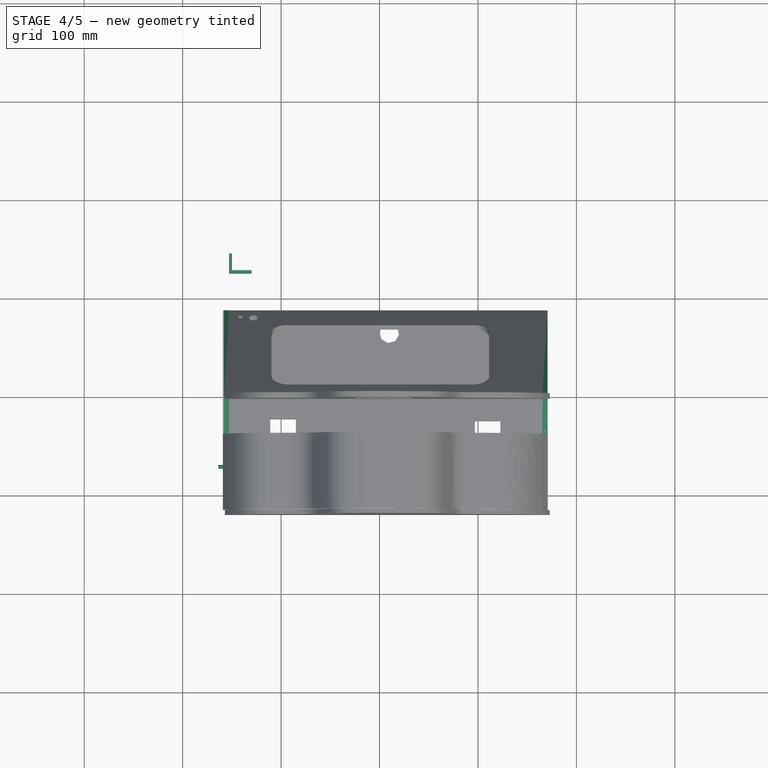
[diagram: stage 4 of 5 — top view after this stage's code; geometry added in this stage tinted green]
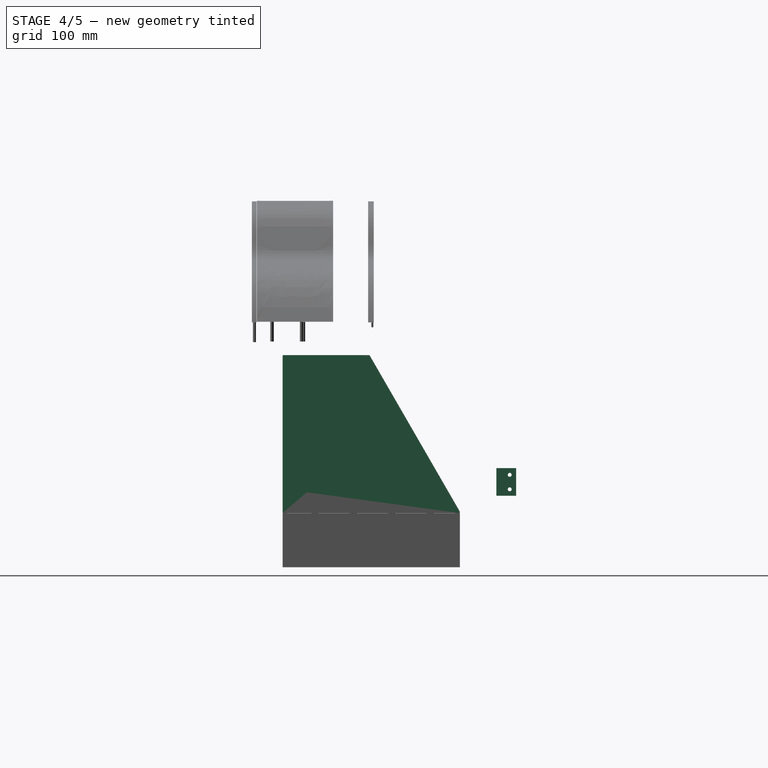
[diagram: stage 4 of 5 — right view after this stage's code; geometry added in this stage tinted green]
FEATURE [PartDesign::Body] Body022  label="Lateral tronco 001"
  AllowCompound = false
  Group = -> [Sketch025,Pad024]
  Origin = -> Origin022
  Placement = pos=(307.1,2.95,-3.4) rot=(0,0,1;0rad)
  Tip = -> Pad024
FEATURE [Sketcher::SketchObject] Sketch026
  ArcFitTolerance = 1e-06
  AttachmentSupport = -> [YZ_Plane023]
  FullyConstrained = false
  MakeInternals = false
  MapMode = 5
  Placement = pos=(0,0,0) rot=(0.57735,0.57735,0.57735;2.0944rad)
  sketch-geometry (4):
    g0: LineSegment StartX=-96.0841 StartY=59.6249 StartZ=0 EndX=83.9159 EndY=59.6249 EndZ=0
    g1: LineSegment StartX=83.9159 StartY=59.6249 StartZ=0 EndX=-7.95412 EndY=218.748 EndZ=0
    g2: LineSegment StartX=-7.95412 StartY=218.748 StartZ=0 EndX=-96.0841 EndY=218.748 EndZ=0
    g3: LineSegment StartX=-96.0841 StartY=218.748 StartZ=0 EndX=-96.0841 EndY=59.6249 EndZ=0
  constraints (10):
    c: Horizontal(g0)
    c: Coincident(g0,g1)
    c: Coincident(g1,g2)
    c: Coincident(g2,g3)
    c: Coincident(g3,g0)
    c: Vertical(g3)
    c: Angle(g1,g0) = 1.0472
    c: Distance(g1,g1) = 183.74
    c: Angle(g2,g1) = 2.0944
    c: Distance(g0,g0) = 180
FEATURE [PartDesign::Pad] Pad025
  Direction = (1,0,0)
  Length = 5
  Length2 = 10
  Placement = pos=(0,0,0) rot=(1,1,1;2.0944rad)
  Profile = -> Sketch026
  ReferenceAxis = -> Sketch026 [N_Axis]
  Refine = true
  Suppressed = false
  Type = 0
FEATURE [Sketcher::SketchObject] Sketch033
  ArcFitTolerance = 1e-06
  AttachmentSupport = -> [XY_Plane030]
  FullyConstrained = true
  MakeInternals = false
  MapMode = 5
  sketch-geometry (1):
    g0: Circle CenterX=-200.85 CenterY=58.35 CenterZ=0 NormalX=0 NormalY=0 NormalZ=1 AngleXU=0 Radius=2
  constraints (3):
    c: Diameter(g0) = 4
    c: DistanceY(g-1,g0) = 58.35
    c: Distance(g0,g-2) = 200.85
FEATURE [PartDesign::Pad] Pad032
  Direction = (0,0,1)
  Length = 15
  Length2 = 10
  Profile = -> Sketch033
  ReferenceAxis = -> Sketch033 [N_Axis]
  Refine = true
  Suppressed = false
  Type = 0
FEATURE [PartDesign::Body] Body030  label="encaje lateral 2"
  AllowCompound = false
  Group = -> [Sketch033,Pad032]
  Origin = -> Origin030
  Placement = pos=(5.55,0,55.9) rot=(0,0,1;0rad)
  Tip = -> Pad032
FEATURE [Sketcher::SketchObject] Sketch034
  ArcFitTolerance = 1e-06
  AttachmentSupport = -> [XY_Plane031]
  FullyConstrained = true
  MakeInternals = false
  MapMode = 5
  sketch-geometry (1):
    g0: Circle CenterX=-200.85 CenterY=66.75 CenterZ=0 NormalX=0 NormalY=0 NormalZ=1 AngleXU=0 Radius=2
  constraints (3):
    c: Diameter(g0) = 4
    c: DistanceX(g0,g-1) = 200.85
    c: DistanceY(g-1,g0) = 66.75
FEATURE [PartDesign::Pad] Pad033
  Direction = (0,0,1)
  Length = 15
  Length2 = 10
  Profile = -> Sketch034
  ReferenceAxis = -> Sketch034 [N_Axis]
  Refine = true
  Suppressed = false
  Type = 0
FEATURE [PartDesign::Body] Body031  label="encaje 2 lateral 2"
  AllowCompound = false
  Group = -> [Sketch034,Pad033]
  Origin = -> Origin031
  Placement = pos=(5.55,-47.4,56.05) rot=(0,0,1;0rad)
  Tip = -> Pad033
FEATURE [Sketcher::SketchObject] Sketch035
  ArcFitTolerance = 1e-06
  AttachmentSupport = -> [XY_Plane032]
  FullyConstrained = true
  MakeInternals = false
  MapMode = 5
  sketch-geometry (1):
    g0: Circle CenterX=-200.75 CenterY=70.95 CenterZ=0 NormalX=0 NormalY=0 NormalZ=1 AngleXU=0 Radius=2
  constraints (3):
    c: Diameter(g0) = 4
    c: DistanceY(g-1,g0) = 70.95
    c: DistanceX(g0,g-1) = 200.75
FEATURE [PartDesign::Pad] Pad034
  Direction = (0,0,1)
  Length = 15
  Length2 = 10
  Profile = -> Sketch035
  ReferenceAxis = -> Sketch035 [N_Axis]
  Refine = true
  Suppressed = false
  Type = 0
FEATURE [PartDesign::Body] Body032  label="encaje 3 lateral 2"
  AllowCompound = false
  Group = -> [Sketch035,Pad034]
  Origin = -> Origin032
  Placement = pos=(5.45,-90.6,54.95) rot=(0,0,1;0rad)
  Tip = -> Pad034
FEATURE [Sketcher::SketchObject] Sketch036
  ArcFitTolerance = 1e-06
  AttachmentSupport = -> [XY_Plane033]
  FullyConstrained = true
  MakeInternals = false
  MapMode = 5
  sketch-geometry (1):
    g0: Circle CenterX=-200.8 CenterY=67.9 CenterZ=0 NormalX=0 NormalY=0 NormalZ=1 AngleXU=0 Radius=2
  constraints (3):
    c: Diameter(g0) = 4
    c: DistanceX(g0,g-1) = 200.8
    c: Distance(g0,g-1) = 67.9
FEATURE [PartDesign::Pad] Pad035
  Direction = (0,0,1)
  Length = 15
  Length2 = 10
  Profile = -> Sketch036
  ReferenceAxis = -> Sketch036 [N_Axis]
  Refine = true
  Suppressed = false
  Type = 0
FEATURE [PartDesign::Body] Body037  label="encaje 4 lateral 1"
  AllowCompound = false
  Group = -> [Sketch040,Pad039]
  Origin = -> Origin037
  Placement = pos=(510.7,-126.95,54.7) rot=(0,0,1;0rad)
  Tip = -> Pad039
FEATURE [Part::FeaturePython] Cutout014  label="lateral 2 - hueco 1"  # WARN: FeaturePython — macro-defined, semantics opaque (R4)
  Base = -> Body023
  Refine = true
  Tolerance = 0
  Tool = -> Body030
FEATURE [Part::FeaturePython] Cutout015  label="lateral 2 - hueco 2"  # WARN: FeaturePython — macro-defined, semantics opaque (R4)
  Base = -> Cutout014
  Refine = true
  Tolerance = 0
  Tool = -> Body031
FEATURE [Part::FeaturePython] Cutout016  label="lateral 2 - hueco 003"  # WARN: FeaturePython — macro-defined, semantics opaque (R4)
  Base = -> Cutout015
  Refine = true
  Tolerance = 0
  Tool = -> Body032
FEATURE [Part::FeaturePython] Cutout017  label="Lateral 2 con huecos"  # WARN: FeaturePython — macro-defined, semantics opaque (R4)
  Base = -> Cutout016
  Placement = pos=(39.75,0.35,0.125) rot=(0,0,1;0rad)
  Refine = true
  Tolerance = 0
  Tool = -> Body033
FEATURE [Part::FeaturePython] Cutout021  label="Lateral 1 con huecos"  # WARN: FeaturePython — macro-defined, semantics opaque (R4)
  Base = -> Cutout020
  Placement = pos=(-141.15,-2.15,-1.4) rot=(0,0,1;0rad)
  Refine = true
  Tolerance = 0
  Tool = -> Body037
FEATURE [Part::Cylinder] Cylinder008  label="Cilindro008"
  Angle = 360
  AttacherType = Attacher::AttachEngine3D
  FirstAngle = 0
  Height = 20
  Placement = pos=(-155.45,-34.3,195.63) rot=(0,0,1;0rad)
  Radius = 1.5
  SecondAngle = 0
FEATURE [Part::Cylinder] Cylinder009  label="Cilindro009"
  Angle = 360
  AttacherType = Attacher::AttachEngine3D
  FirstAngle = 0
  Height = 20
  Placement = pos=(-155.45,-66.1,195.63) rot=(0,0,1;0rad)
  Radius = 1.5
  SecondAngle = 0
FEATURE [Part::Cut] Cut008  label="Lateral 2 - hueco 5"
  Base = -> Cutout017
  Refine = true
  Tool = -> Cylinder008
FEATURE [Part::Cut] Cut009  label="Lateral 2 final"
  Base = -> Cut008
  Refine = true
  Tool = -> Cylinder009
FEATURE [Part::Cylinder] Cylinder011  label="Cilindro011"
  Angle = 360
  AttacherType = Attacher::AttachEngine3D
  FirstAngle = 0
  Height = 20
  Placement = pos=(168.33,-69.2,193.48) rot=(0,0,1;0rad)
  Radius = 1.5
  SecondAngle = 0
FEATURE [Part::Cut] Cut010  label="Lateral 1 hueco 5"
  Base = -> Cutout021
  Refine = true
  Tool = -> Cylinder010
FEATURE [Part::Cut] Cut011  label="Lateral 1 final"
  Base = -> Cut010
  Placement = pos=(-0.55,2.35,0.85) rot=(0,0,1;0rad)
  Refine = true
  Tool = -> Cylinder011
FEATURE [Part::Cylinder] Cylinder030  label="Cilindro028"
  Angle = 360
  AttacherType = Attacher::AttachEngine3D
  FirstAngle = 0
  Height = 15
  Placement = pos=(-158.9,-73.325,93.905) rot=(0,1,0;1.5708rad)
  Radius = 2
  SecondAngle = 0
FEATURE [Part::Cylinder] Cylinder040  label="Cilindro038"
  Angle = 360
  AttacherType = Attacher::AttachEngine3D
  FirstAngle = 0
  Height = 15
  Placement = pos=(-163.805,-73.3,154.575) rot=(0,1,0;1.5708rad)
  Radius = 2
  SecondAngle = 0
FEATURE [Part::Cylinder] Cylinder042  label="Cilindro040"
  Angle = 360
  AttacherType = Attacher::AttachEngine3D
  FirstAngle = 0
  Height = 15
  Placement = pos=(-159.75,-73.31,79.18) rot=(0,1,0;1.5708rad)
  Radius = 2
  SecondAngle = 0
FEATURE [Part::Cylinder] Cylinder043  label="Cilindro041"
  Angle = 360
  AttacherType = Attacher::AttachEngine3D
  FirstAngle = 0
  Height = 15
  Placement = pos=(-159.75,-73.31,93.88) rot=(0,1,0;1.5708rad)
  Radius = 2
  SecondAngle = 0
FEATURE [Part::Cylinder] Cylinder044  label="Cilindro042"
  Angle = 360
  AttacherType = Attacher::AttachEngine3D
  FirstAngle = 0
  Height = 15
  Placement = pos=(-136.23,-80.08,94.28) rot=(1,0,0;1.5708rad)
  Radius = 2
  SecondAngle = 0
FEATURE [Sketcher::SketchObject] Sketch085
  ArcFitTolerance = 1e-06
  AttachmentSupport = -> [YZ_Plane056]
  FullyConstrained = false
  MakeInternals = false
  MapMode = 5
  Placement = pos=(0,0,0) rot=(0.57735,0.57735,0.57735;2.0944rad)
  sketch-geometry (4):
    g0: LineSegment StartX=-14.9168 StartY=36.2387 StartZ=0 EndX=-14.9168 EndY=8.23872 EndZ=0
    g1: LineSegment StartX=-14.9168 StartY=8.23872 StartZ=0 EndX=5.08324 EndY=8.23872 EndZ=0
    g2: LineSegment StartX=5.08324 StartY=8.23872 StartZ=0 EndX=5.08324 EndY=36.2387 EndZ=0
    g3: LineSegment StartX=5.08324 StartY=36.2387 StartZ=0 EndX=-14.9168 EndY=36.2387 EndZ=0
  constraints (10):
    c: Coincident(g0,g1)
    c: Coincident(g1,g2)
    c: Coincident(g2,g3)
    c: Coincident(g3,g0)
    c: Vertical(g0)
    c: Vertical(g2)
    c: Horizontal(g1)
    c: Horizontal(g3)
    c: Distance(g3,g3) = 20
    c: DistanceY(g2,g2) = 28
FEATURE [PartDesign::Pad] Pad080
  Direction = (1,0,0)
  Length = 3
  Length2 = 10
  Placement = pos=(0,0,0) rot=(1,1,1;2.0944rad)
  Profile = -> Sketch085
  ReferenceAxis = -> Sketch085 [N_Axis]
  Refine = true
  Suppressed = false
  Type = 0
FEATURE [Sketcher::SketchObject] Sketch086
  ArcFitTolerance = 1e-06
  AttachmentSupport = -> [Pad080]
  FullyConstrained = false
  MakeInternals = false
  MapMode = 5
  Placement = pos=(3,-7e-16,3e-16) rot=(0.57735,0.57735,0.57735;2.0944rad)
  sketch-geometry (4):
    g0: LineSegment StartX=-14.9517 StartY=36.1641 StartZ=0 EndX=-14.9517 EndY=8.1641 EndZ=0
    g1: LineSegment StartX=-14.9517 StartY=8.1641 StartZ=0 EndX=-11.9517 EndY=8.1641 EndZ=0
    g2: LineSegment StartX=-11.9517 StartY=8.1641 StartZ=0 EndX=-11.9517 EndY=36.1641 EndZ=0
    g3: LineSegment StartX=-11.9517 StartY=36.1641 StartZ=0 EndX=-14.9517 EndY=36.1641 EndZ=0
  constraints (10):
    c: Coincident(g0,g1)
    c: Coincident(g1,g2)
    c: Coincident(g2,g3)
    c: Coincident(g3,g0)
    c: Vertical(g0)
    c: Vertical(g2)
    c: Horizontal(g1)
    c: Horizontal(g3)
    c: Distance(g0,g2) = 3
    c: Distance(g1,g3) = 28
FEATURE [PartDesign::Pad] Pad081
  BaseFeature = -> Pad080
  Direction = (1,0,0)
  Length = 20
  Length2 = 10
  Placement = pos=(0,0,0) rot=(1,1,1;2.0944rad)
  Profile = -> Sketch086
  ReferenceAxis = -> Sketch086 [N_Axis]
  Refine = true
  Suppressed = false
  Type = 0
FEATURE [PartDesign::Body] Body056  label="Solapa002"
  AllowCompound = false
  Group = -> [Sketch085,Pad080,Sketch086,Pad081]
  Origin = -> Origin056
  Placement = pos=(-152.9,-71.875,64.425) rot=(0,0,1;0rad)
  Tip = -> Pad081
FEATURE [Part::FeaturePython] Cutout038  label="Solapa - hueco 009"  # WARN: FeaturePython — macro-defined, semantics opaque (R4)
  Base = -> Body056
  Refine = true
  Tolerance = 0
  Tool = -> Cylinder042
FEATURE [Part::FeaturePython] Cutout039  label="Solapa - hueco 010"  # WARN: FeaturePython — macro-defined, semantics opaque (R4)
  Base = -> Cutout038
  Refine = true
  Tolerance = 0
  Tool = -> Cylinder043
FEATURE [Part::Cylinder] Cylinder046  label="Cilindro044"
  Angle = 360
  AttacherType = Attacher::AttachEngine3D
  FirstAngle = 0
  Height = 15
  Placement = pos=(-159.75,-73.31,79.18) rot=(0,1,0;1.5708rad)
  Radius = 2
  SecondAngle = 0
FEATURE [Part::Cylinder] Cylinder047  label="Cilindro045"
  Angle = 360
  AttacherType = Attacher::AttachEngine3D
  FirstAngle = 0
  Height = 15
  Placement = pos=(-159.75,-73.31,93.88) rot=(0,1,0;1.5708rad)
  Radius = 2
  SecondAngle = 0
FEATURE [Part::Cylinder] Cylinder048  label="Cilindro046"
  Angle = 360
  AttacherType = Attacher::AttachEngine3D
  FirstAngle = 0
  Height = 15
  Placement = pos=(-136.23,-80.08,94.28) rot=(1,0,0;1.5708rad)
  Radius = 2
  SecondAngle = 0
FEATURE [Part::Cylinder] Cylinder049  label="Cilindro047"
  Angle = 360
  AttacherType = Attacher::AttachEngine3D
  FirstAngle = 0
  Height = 15
  Placement = pos=(-136.23,-80.08,79.3) rot=(1,0,0;1.5708rad)
  Radius = 2
  SecondAngle = 0
FEATURE [Sketcher::SketchObject] Sketch087
  ArcFitTolerance = 1e-06
  AttachmentSupport = -> [YZ_Plane057]
  FullyConstrained = false
  MakeInternals = false
  MapMode = 5
  Placement = pos=(0,0,0) rot=(0.57735,0.57735,0.57735;2.0944rad)
  sketch-geometry (4):
    g0: LineSegment StartX=-14.9168 StartY=36.2387 StartZ=0 EndX=-14.9168 EndY=8.23872 EndZ=0
    g1: LineSegment StartX=-14.9168 StartY=8.23872 StartZ=0 EndX=5.08324 EndY=8.23872 EndZ=0
    g2: LineSegment StartX=5.08324 StartY=8.23872 StartZ=0 EndX=5.08324 EndY=36.2387 EndZ=0
    g3: LineSegment StartX=5.08324 StartY=36.2387 StartZ=0 EndX=-14.9168 EndY=36.2387 EndZ=0
  constraints (10):
    c: Coincident(g0,g1)
    c: Coincident(g1,g2)
    c: Coincident(g2,g3)
    c: Coincident(g3,g0)
    c: Vertical(g0)
    c: Vertical(g2)
    c: Horizontal(g1)
    c: Horizontal(g3)
    c: Distance(g3,g3) = 20
    c: DistanceY(g2,g2) = 28
FEATURE [PartDesign::Pad] Pad082
  Direction = (1,0,0)
  Length = 3
  Length2 = 10
  Placement = pos=(0,0,0) rot=(1,1,1;2.0944rad)
  Profile = -> Sketch087
  ReferenceAxis = -> Sketch087 [N_Axis]
  Refine = true
  Suppressed = false
  Type = 0
FEATURE [Sketcher::SketchObject] Sketch088
  ArcFitTolerance = 1e-06
  AttachmentSupport = -> [Pad082]
  FullyConstrained = false
  MakeInternals = false
  MapMode = 5
  Placement = pos=(3,-7e-16,3e-16) rot=(0.57735,0.57735,0.57735;2.0944rad)
  sketch-geometry (4):
    g0: LineSegment StartX=-14.9517 StartY=36.1641 StartZ=0 EndX=-14.9517 EndY=8.1641 EndZ=0
    g1: LineSegment StartX=-14.9517 StartY=8.1641 StartZ=0 EndX=-11.9517 EndY=8.1641 EndZ=0
    g2: LineSegment StartX=-11.9517 StartY=8.1641 StartZ=0 EndX=-11.9517 EndY=36.1641 EndZ=0
    g3: LineSegment StartX=-11.9517 StartY=36.1641 StartZ=0 EndX=-14.9517 EndY=36.1641 EndZ=0
  constraints (10):
    c: Coincident(g0,g1)
    c: Coincident(g1,g2)
    c: Coincident(g2,g3)
    c: Coincident(g3,g0)
    c: Vertical(g0)
    c: Vertical(g2)
    c: Horizontal(g1)
    c: Horizontal(g3)
    c: Distance(g0,g2) = 3
    c: Distance(g1,g3) = 28
FEATURE [PartDesign::Pad] Pad083
  BaseFeature = -> Pad082
  Direction = (1,0,0)
  Length = 20
  Length2 = 10
  Placement = pos=(0,0,0) rot=(1,1,1;2.0944rad)
  Profile = -> Sketch088
  ReferenceAxis = -> Sketch088 [N_Axis]
  Refine = true
  Suppressed = false
  Type = 0
FEATURE [PartDesign::Body] Body057  label="Solapa003"
  AllowCompound = false
  Group = -> [Sketch087,Pad082,Sketch088,Pad083]
  Origin = -> Origin057
  Placement = pos=(-152.9,-71.875,64.425) rot=(0,0,1;0rad)
  Tip = -> Pad083
FEATURE [Part::FeaturePython] Cutout042  label="Solapa - hueco 013"  # WARN: FeaturePython — macro-defined, semantics opaque (R4)
  Base = -> Body057
  Refine = true
  Tolerance = 0
  Tool = -> Cylinder046
FEATURE [Part::FeaturePython] Cutout043  label="Solapa - hueco 014"  # WARN: FeaturePython — macro-defined, semantics opaque (R4)
  Base = -> Cutout042
  Refine = true
  Tolerance = 0
  Tool = -> Cylinder047
FEATURE [Part::FeaturePython] Cutout044  label="Solapa - hueco 015"  # WARN: FeaturePython — macro-defined, semantics opaque (R4)
  Base = -> Cutout043
  Refine = true
  Tolerance = 0
  Tool = -> Cylinder048
FEATURE [Part::FeaturePython] Cutout045  label="Solapa - hueco 016"  # WARN: FeaturePython — macro-defined, semantics opaque (R4)
  Base = -> Cutout044
  Placement = pos=(78.325,67.2,-1.425) rot=(0,0,1;1.5708rad)
  Refine = true
  Tolerance = 0
  Tool = -> Cylinder049
FEATURE [Part::Cylinder] Cylinder050  label="Cilindro048"
  Angle = 360
  AttacherType = Attacher::AttachEngine3D
  FirstAngle = 0
  Height = 15
  Placement = pos=(-159.75,-73.31,79.18) rot=(0,1,0;1.5708rad)
  Radius = 2
  SecondAngle = 0
FEATURE [Part::Cylinder] Cylinder051  label="Cilindro049"
  Angle = 360
  AttacherType = Attacher::AttachEngine3D
  FirstAngle = 0
  Height = 15
  Placement = pos=(-159.75,-73.31,93.88) rot=(0,1,0;1.5708rad)
  Radius = 2
  SecondAngle = 0
FEATURE [Part::Cylinder] Cylinder052  label="Cilindro050"
  Angle = 360
  AttacherType = Attacher::AttachEngine3D
  FirstAngle = 0
  Height = 15
  Placement = pos=(-136.23,-80.08,94.28) rot=(1,0,0;1.5708rad)
  Radius = 2
  SecondAngle = 0
FEATURE [Part::Cylinder] Cylinder053  label="Cilindro051"
  Angle = 360
  AttacherType = Attacher::AttachEngine3D
  FirstAngle = 0
  Height = 15
  Placement = pos=(-136.23,-80.08,79.3) rot=(1,0,0;1.5708rad)
  Radius = 2
  SecondAngle = 0
FEATURE [Sketcher::SketchObject] Sketch089
  ArcFitTolerance = 1e-06
  AttachmentSupport = -> [YZ_Plane058]
  FullyConstrained = false
  MakeInternals = false
  MapMode = 5
  Placement = pos=(0,0,0) rot=(0.57735,0.57735,0.57735;2.0944rad)
  sketch-geometry (4):
    g0: LineSegment StartX=-14.9168 StartY=36.2387 StartZ=0 EndX=-14.9168 EndY=8.23872 EndZ=0
    g1: LineSegment StartX=-14.9168 StartY=8.23872 StartZ=0 EndX=5.08324 EndY=8.23872 EndZ=0
    g2: LineSegment StartX=5.08324 StartY=8.23872 StartZ=0 EndX=5.08324 EndY=36.2387 EndZ=0
    g3: LineSegment StartX=5.08324 StartY=36.2387 StartZ=0 EndX=-14.9168 EndY=36.2387 EndZ=0
  constraints (10):
    c: Coincident(g0,g1)
    c: Coincident(g1,g2)
    c: Coincident(g2,g3)
    c: Coincident(g3,g0)
    c: Vertical(g0)
    c: Vertical(g2)
    c: Horizontal(g1)
    c: Horizontal(g3)
    c: Distance(g3,g3) = 20
    c: DistanceY(g2,g2) = 28
FEATURE [PartDesign::Pad] Pad084
  Direction = (1,0,0)
  Length = 3
  Length2 = 10
  Placement = pos=(0,0,0) rot=(1,1,1;2.0944rad)
  Profile = -> Sketch089
  ReferenceAxis = -> Sketch089 [N_Axis]
  Refine = true
  Suppressed = false
  Type = 0
FEATURE [Sketcher::SketchObject] Sketch090
  ArcFitTolerance = 1e-06
  AttachmentSupport = -> [Pad084]
  FullyConstrained = false
  MakeInternals = false
  MapMode = 5
  Placement = pos=(3,-7e-16,3e-16) rot=(0.57735,0.57735,0.57735;2.0944rad)
  sketch-geometry (4):
    g0: LineSegment StartX=-14.9517 StartY=36.1641 StartZ=0 EndX=-14.9517 EndY=8.1641 EndZ=0
    g1: LineSegment StartX=-14.9517 StartY=8.1641 StartZ=0 EndX=-11.9517 EndY=8.1641 EndZ=0
    g2: LineSegment StartX=-11.9517 StartY=8.1641 StartZ=0 EndX=-11.9517 EndY=36.1641 EndZ=0
    g3: LineSegment StartX=-11.9517 StartY=36.1641 StartZ=0 EndX=-14.9517 EndY=36.1641 EndZ=0
  constraints (10):
    c: Coincident(g0,g1)
    c: Coincident(g1,g2)
    c: Coincident(g2,g3)
    c: Coincident(g3,g0)
    c: Vertical(g0)
    c: Vertical(g2)
    c: Horizontal(g1)
    c: Horizontal(g3)
    c: Distance(g0,g2) = 3
    c: Distance(g1,g3) = 28
FEATURE [PartDesign::Pad] Pad085
  BaseFeature = -> Pad084
  Direction = (1,0,0)
  Length = 20
  Length2 = 10
  Placement = pos=(0,0,0) rot=(1,1,1;2.0944rad)
  Profile = -> Sketch090
  ReferenceAxis = -> Sketch090 [N_Axis]
  Refine = true
  Suppressed = false
  Type = 0
FEATURE [PartDesign::Body] Body058  label="Solapa004"
  AllowCompound = false
  Group = -> [Sketch089,Pad084,Sketch090,Pad085]
  Origin = -> Origin058
  Placement = pos=(-152.9,-71.875,64.425) rot=(0,0,1;0rad)
  Tip = -> Pad085
FEATURE [Part::FeaturePython] Cutout046  label="Solapa - hueco 017"  # WARN: FeaturePython — macro-defined, semantics opaque (R4)
  Base = -> Body058
  Refine = true
  Tolerance = 0
  Tool = -> Cylinder050
FEATURE [Part::FeaturePython] Cutout047  label="Solapa - hueco 018"  # WARN: FeaturePython — macro-defined, semantics opaque (R4)
  Base = -> Cutout046
  Refine = true
  Tolerance = 0
  Tool = -> Cylinder051
FEATURE [Part::FeaturePython] Cutout048  label="Solapa - hueco 019"  # WARN: FeaturePython — macro-defined, semantics opaque (R4)
  Base = -> Cutout047
  Refine = true
  Tolerance = 0
  Tool = -> Cylinder052
FEATURE [Part::FeaturePython] Cutout049  label="Solapa - hueco 020"  # WARN: FeaturePython — macro-defined, semantics opaque (R4)
  Base = -> Cutout048
  Placement = pos=(78.075,65.3,72.825) rot=(0,0,1;1.5708rad)
  Refine = true
  Tolerance = 0
  Tool = -> Cylinder053
FEATURE [Part::FeaturePython] Cutout040  label="Solapa - hueco 011-no vale"  # WARN: FeaturePython — macro-defined, semantics opaque (R4)
  Base = -> Cutout039
  Placement = pos=(0,211.375,0) rot=(0,0,1;0rad)
  Refine = true
  Tolerance = 0
  Tool = -> Cylinder044
FEATURE [Part::Cylinder] Cylinder057  label="Cilindro055"
  Angle = 360
  AttacherType = Attacher::AttachEngine3D
  FirstAngle = 0
  Height = 15
  Placement = pos=(159.03,-69.055,77.85) rot=(0,1,0;1.5708rad)
  Radius = 2
  SecondAngle = 0
FEATURE [Part::Cylinder] Cylinder058  label="Cilindro056"
  Angle = 360
  AttacherType = Attacher::AttachEngine3D
  FirstAngle = 0
  Height = 15
  Placement = pos=(159.03,-70.955,167.1) rot=(0,1,0;1.5708rad)
  Radius = 2
  SecondAngle = 0
FEATURE [Part::Cylinder] Cylinder059  label="Cilindro057"
  Angle = 360
  AttacherType = Attacher::AttachEngine3D
  FirstAngle = 0
  Height = 15
  Placement = pos=(157.73,-70.93,152.1) rot=(0,1,0;1.5708rad)
  Radius = 2
  SecondAngle = 0
FEATURE [Part::FeaturePython] Cutout055  label="Lateral 1 - solapa 1"  # WARN: FeaturePython — macro-defined, semantics opaque (R4)
  Base = -> Cut011
  Refine = true
  Tolerance = 0
  Tool = -> Cylinder055
FEATURE [Part::FeaturePython] Cutout056  label="Lateral 1 - solapa 2"  # WARN: FeaturePython — macro-defined, semantics opaque (R4)
  Base = -> Cutout055
  Refine = true
  Tolerance = 0
  Tool = -> Cylinder057
FEATURE [Part::FeaturePython] Cutout057  label="Lateral 1 - solapa 3"  # WARN: FeaturePython — macro-defined, semantics opaque (R4)
  Base = -> Cutout056
  Refine = true
  Tolerance = 0
  Tool = -> Cylinder058
FEATURE [Part::FeaturePython] Cutout058  label="Lateral 1 - solapa 4"  # WARN: FeaturePython — macro-defined, semantics opaque (R4)
  Base = -> Cutout057
  Refine = true
  Tolerance = 0
  Tool = -> Cylinder059
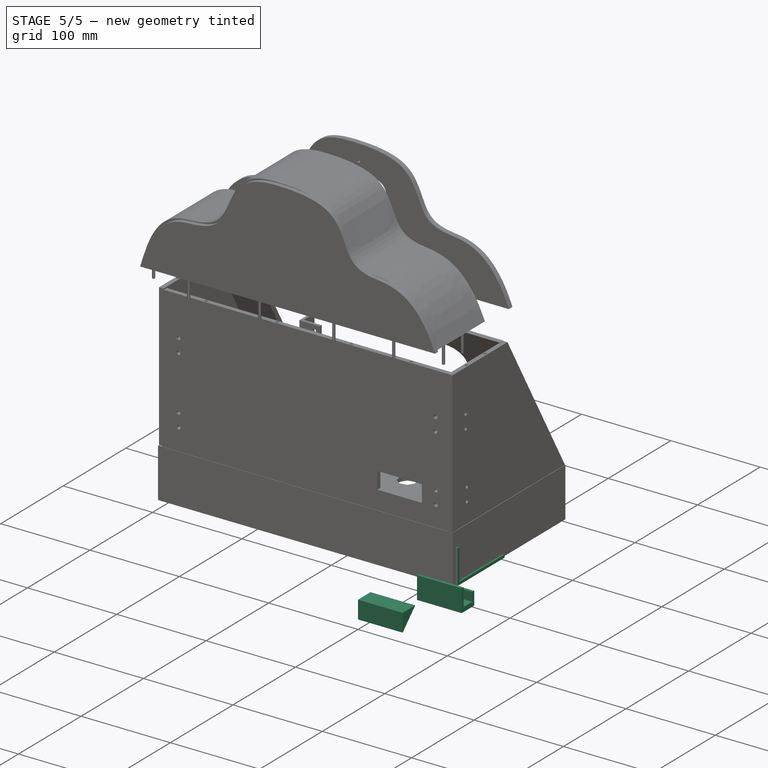
[diagram: stage 5 of 5 — iso view after this stage's code; geometry added in this stage tinted green]
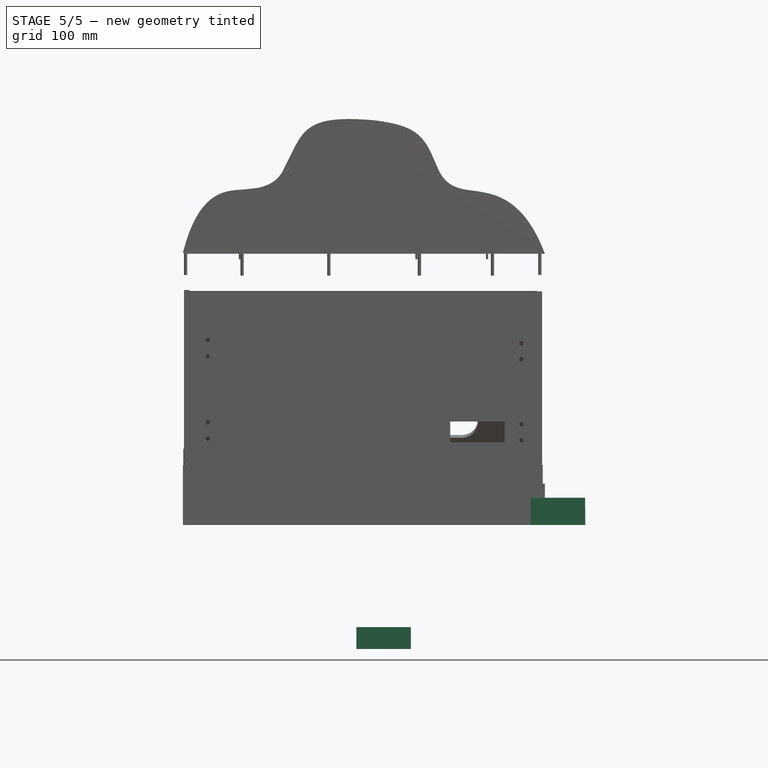
[diagram: stage 5 of 5 — front view after this stage's code; geometry added in this stage tinted green]
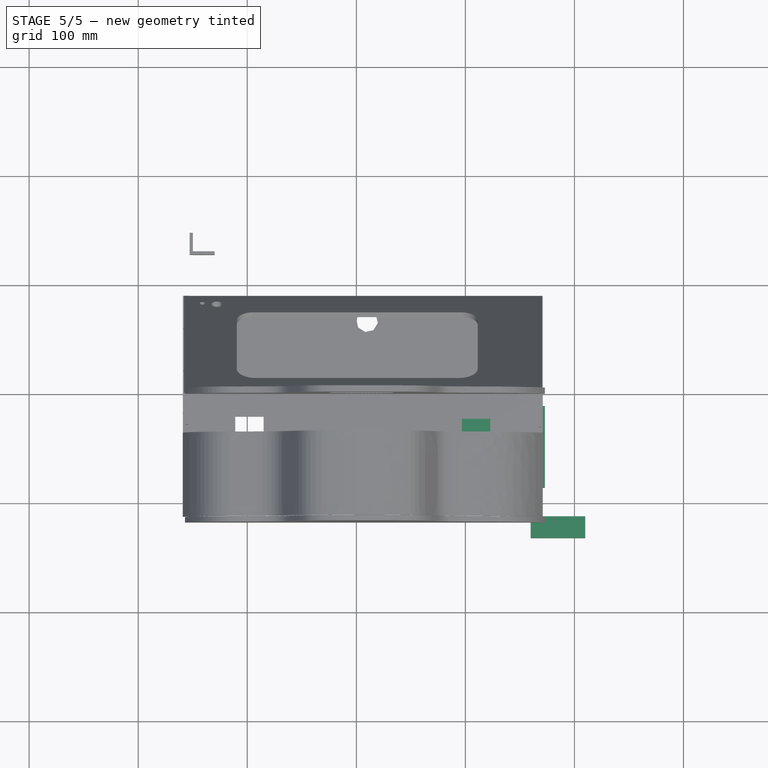
[diagram: stage 5 of 5 — top view after this stage's code; geometry added in this stage tinted green]
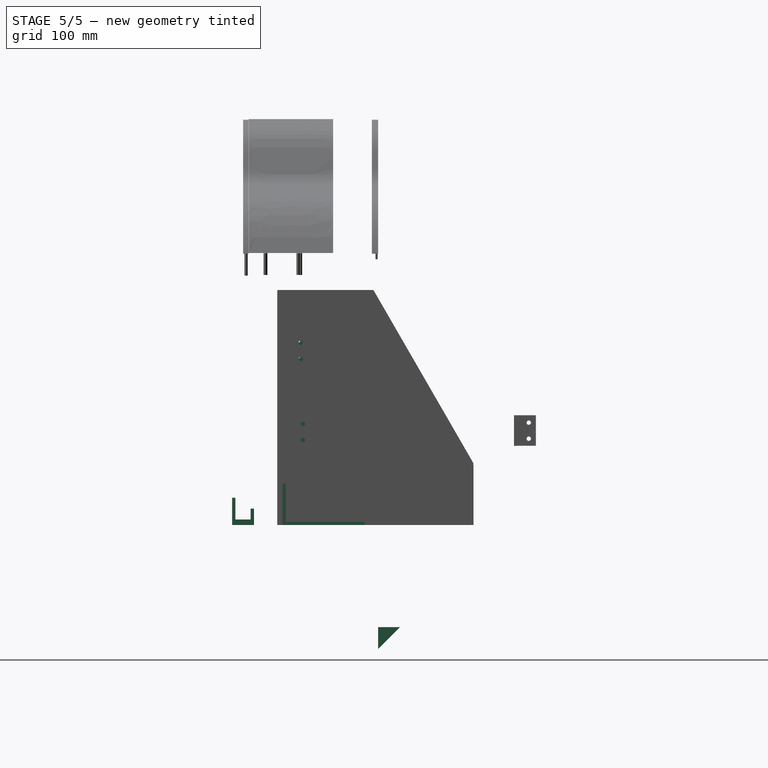
[diagram: stage 5 of 5 — right view after this stage's code; geometry added in this stage tinted green]
FEATURE [Sketcher::SketchObject] Sketch043
  ArcFitTolerance = 1e-06
  AttachmentSupport = -> [XY_Plane039]
  FullyConstrained = false
  MakeInternals = false
  MapMode = 5
  sketch-geometry (4):
    g0: LineSegment StartX=159.845 StartY=-133.914 StartZ=0 EndX=209.845 EndY=-133.914 EndZ=0
    g1: LineSegment StartX=209.845 StartY=-133.914 StartZ=0 EndX=209.845 EndY=-113.914 EndZ=0
    g2: LineSegment StartX=209.845 StartY=-113.914 StartZ=0 EndX=159.845 EndY=-113.914 EndZ=0
    g3: LineSegment StartX=159.845 StartY=-113.914 StartZ=0 EndX=159.845 EndY=-133.914 EndZ=0
  constraints (10):
    c: Coincident(g0,g1)
    c: Coincident(g1,g2)
    c: Coincident(g2,g3)
    c: Coincident(g3,g0)
    c: Horizontal(g0)
    c: Horizontal(g2)
    c: Vertical(g1)
    c: Vertical(g3)
    c: Distance(g1,g3) = 50
    c: Distance(g0,g2) = 20
FEATURE [PartDesign::Pad] Pad042
  Direction = (0,0,1)
  Length = 5
  Length2 = 10
  Profile = -> Sketch043
  ReferenceAxis = -> Sketch043 [N_Axis]
  Refine = true
  Suppressed = false
  Type = 0
FEATURE [Sketcher::SketchObject] Sketch044
  ArcFitTolerance = 1e-06
  AttachmentSupport = -> [Pad042]
  FullyConstrained = false
  MakeInternals = false
  MapMode = 5
  Placement = pos=(0,0,5) rot=(0,0,1;0rad)
  sketch-geometry (4):
    g0: LineSegment StartX=159.836 StartY=-133.917 StartZ=0 EndX=209.836 EndY=-133.917 EndZ=0
    g1: LineSegment StartX=209.836 StartY=-133.917 StartZ=0 EndX=209.836 EndY=-130.917 EndZ=0
    g2: LineSegment StartX=209.836 StartY=-130.917 StartZ=0 EndX=159.836 EndY=-130.917 EndZ=0
    g3: LineSegment StartX=159.836 StartY=-130.917 StartZ=0 EndX=159.836 EndY=-133.917 EndZ=0
  constraints (10):
    c: Coincident(g0,g1)
    c: Coincident(g1,g2)
    c: Coincident(g2,g3)
    c: Coincident(g3,g0)
    c: Horizontal(g0)
    c: Horizontal(g2)
    c: Vertical(g1)
    c: Vertical(g3)
    c: Distance(g1,g3) = 50
    c: Distance(g0,g2) = 3
FEATURE [PartDesign::Pad] Pad043
  BaseFeature = -> Pad042
  Direction = (0,0,1)
  Length = 20
  Length2 = 10
  Profile = -> Sketch044
  ReferenceAxis = -> Sketch044 [N_Axis]
  Refine = true
  Suppressed = false
  Type = 0
FEATURE [Sketcher::SketchObject] Sketch047
  ArcFitTolerance = 1e-06
  AttachmentSupport = -> [Pad043]
  FullyConstrained = false
  MakeInternals = false
  MapMode = 5
  Placement = pos=(0,-113.914,0) rot=(0,0.707107,0.707107;3.14159rad)
  sketch-geometry (4):
    g0: LineSegment StartX=-209.842 StartY=4.98967 StartZ=0 EndX=-159.842 EndY=4.98967 EndZ=0
    g1: LineSegment StartX=-159.842 StartY=4.98967 StartZ=0 EndX=-159.842 EndY=14.9897 EndZ=0
    g2: LineSegment StartX=-159.842 StartY=14.9897 StartZ=0 EndX=-209.842 EndY=14.9897 EndZ=0
    g3: LineSegment StartX=-209.842 StartY=14.9897 StartZ=0 EndX=-209.842 EndY=4.98967 EndZ=0
  constraints (10):
    c: Coincident(g0,g1)
    c: Coincident(g1,g2)
    c: Coincident(g2,g3)
    c: Coincident(g3,g0)
    c: Horizontal(g0)
    c: Horizontal(g2)
    c: Vertical(g1)
    c: Vertical(g3)
    c: Distance(g1,g3) = 50
    c: Distance(g0,g2) = 10
FEATURE [PartDesign::Pad] Pad046
  BaseFeature = -> Pad043
  Direction = (0,1,-2e-16)
  Length = 3
  Length2 = 10
  Profile = -> Sketch047
  ReferenceAxis = -> Sketch047 [N_Axis]
  Refine = true
  Reversed = true
  Suppressed = false
  Type = 0
FEATURE [PartDesign::Body] Body039  label="encaje pantalla 2"
  AllowCompound = false
  Group = -> [Sketch043,Pad042,Sketch044,Pad043,Sketch047,Pad046]
  Origin = -> Origin039
  Placement = pos=(-277.8,172.553,124.036) rot=(1,0,0;0.523599rad)
  Tip = -> Pad046
FEATURE [Sketcher::SketchObject] Sketch048
  ArcFitTolerance = 1e-06
  AttachmentSupport = -> [XY_Plane040]
  FullyConstrained = false
  MakeInternals = false
  MapMode = 5
  sketch-geometry (4):
    g0: LineSegment StartX=159.845 StartY=-133.914 StartZ=0 EndX=209.845 EndY=-133.914 EndZ=0
    g1: LineSegment StartX=209.845 StartY=-133.914 StartZ=0 EndX=209.845 EndY=-113.914 EndZ=0
    g2: LineSegment StartX=209.845 StartY=-113.914 StartZ=0 EndX=159.845 EndY=-113.914 EndZ=0
    g3: LineSegment StartX=159.845 StartY=-113.914 StartZ=0 EndX=159.845 EndY=-133.914 EndZ=0
  constraints (10):
    c: Coincident(g0,g1)
    c: Coincident(g1,g2)
    c: Coincident(g2,g3)
    c: Coincident(g3,g0)
    c: Horizontal(g0)
    c: Horizontal(g2)
    c: Vertical(g1)
    c: Vertical(g3)
    c: Distance(g1,g3) = 50
    c: Distance(g0,g2) = 20
FEATURE [PartDesign::Pad] Pad047
  Direction = (0,0,1)
  Length = 5
  Length2 = 10
  Profile = -> Sketch048
  ReferenceAxis = -> Sketch048 [N_Axis]
  Refine = true
  Suppressed = false
  Type = 0
FEATURE [Sketcher::SketchObject] Sketch049
  ArcFitTolerance = 1e-06
  AttachmentSupport = -> [Pad047]
  FullyConstrained = false
  MakeInternals = false
  MapMode = 5
  Placement = pos=(0,0,5) rot=(0,0,1;0rad)
  sketch-geometry (4):
    g0: LineSegment StartX=159.836 StartY=-133.917 StartZ=0 EndX=209.836 EndY=-133.917 EndZ=0
    g1: LineSegment StartX=209.836 StartY=-133.917 StartZ=0 EndX=209.836 EndY=-130.917 EndZ=0
    g2: LineSegment StartX=209.836 StartY=-130.917 StartZ=0 EndX=159.836 EndY=-130.917 EndZ=0
    g3: LineSegment StartX=159.836 StartY=-130.917 StartZ=0 EndX=159.836 EndY=-133.917 EndZ=0
  constraints (10):
    c: Coincident(g0,g1)
    c: Coincident(g1,g2)
    c: Coincident(g2,g3)
    c: Coincident(g3,g0)
    c: Horizontal(g0)
    c: Horizontal(g2)
    c: Vertical(g1)
    c: Vertical(g3)
    c: Distance(g1,g3) = 50
    c: Distance(g0,g2) = 3
FEATURE [PartDesign::Pad] Pad048
  BaseFeature = -> Pad047
  Direction = (0,0,1)
  Length = 20
  Length2 = 10
  Profile = -> Sketch049
  ReferenceAxis = -> Sketch049 [N_Axis]
  Refine = true
  Suppressed = false
  Type = 0
FEATURE [Sketcher::SketchObject] Sketch050
  ArcFitTolerance = 1e-06
  AttachmentSupport = -> [Pad048]
  FullyConstrained = false
  MakeInternals = false
  MapMode = 5
  Placement = pos=(0,-113.914,0) rot=(0,0.707107,0.707107;3.14159rad)
  sketch-geometry (4):
    g0: LineSegment StartX=-209.842 StartY=4.98967 StartZ=0 EndX=-159.842 EndY=4.98967 EndZ=0
    g1: LineSegment StartX=-159.842 StartY=4.98967 StartZ=0 EndX=-159.842 EndY=14.9897 EndZ=0
    g2: LineSegment StartX=-159.842 StartY=14.9897 StartZ=0 EndX=-209.842 EndY=14.9897 EndZ=0
    g3: LineSegment StartX=-209.842 StartY=14.9897 StartZ=0 EndX=-209.842 EndY=4.98967 EndZ=0
  constraints (10):
    c: Coincident(g0,g1)
    c: Coincident(g1,g2)
    c: Coincident(g2,g3)
    c: Coincident(g3,g0)
    c: Horizontal(g0)
    c: Horizontal(g2)
    c: Vertical(g1)
    c: Vertical(g3)
    c: Distance(g1,g3) = 50
    c: Distance(g0,g2) = 10
FEATURE [PartDesign::Pad] Pad049
  BaseFeature = -> Pad048
  Direction = (0,1,-2e-16)
  Length = 3
  Length2 = 10
  Profile = -> Sketch050
  ReferenceAxis = -> Sketch050 [N_Axis]
  Refine = true
  Reversed = true
  Suppressed = false
  Type = 0
FEATURE [PartDesign::Body] Body040  label="encaje pantalla 3"
  AllowCompound = false
  Group = -> [Sketch048,Pad047,Sketch049,Pad048,Sketch050,Pad049]
  Origin = -> Origin040
  Placement = pos=(-71.85,175.226,121.307) rot=(1,0,0;0.523599rad)
  Tip = -> Pad049
FEATURE [Sketcher::SketchObject] Sketch051
  ArcFitTolerance = 1e-06
  AttachmentSupport = -> [XY_Plane041]
  FullyConstrained = false
  MakeInternals = false
  MapMode = 5
  sketch-geometry (4):
    g0: LineSegment StartX=159.845 StartY=-133.914 StartZ=0 EndX=209.845 EndY=-133.914 EndZ=0
    g1: LineSegment StartX=209.845 StartY=-133.914 StartZ=0 EndX=209.845 EndY=-113.914 EndZ=0
    g2: LineSegment StartX=209.845 StartY=-113.914 StartZ=0 EndX=159.845 EndY=-113.914 EndZ=0
    g3: LineSegment StartX=159.845 StartY=-113.914 StartZ=0 EndX=159.845 EndY=-133.914 EndZ=0
  constraints (10):
    c: Coincident(g0,g1)
    c: Coincident(g1,g2)
    c: Coincident(g2,g3)
    c: Coincident(g3,g0)
    c: Horizontal(g0)
    c: Horizontal(g2)
    c: Vertical(g1)
    c: Vertical(g3)
    c: Distance(g1,g3) = 50
    c: Distance(g0,g2) = 20
FEATURE [PartDesign::Pad] Pad050
  Direction = (0,0,1)
  Length = 5
  Length2 = 10
  Profile = -> Sketch051
  ReferenceAxis = -> Sketch051 [N_Axis]
  Refine = true
  Suppressed = false
  Type = 0
FEATURE [Sketcher::SketchObject] Sketch052
  ArcFitTolerance = 1e-06
  AttachmentSupport = -> [Pad050]
  FullyConstrained = false
  MakeInternals = false
  MapMode = 5
  Placement = pos=(0,0,5) rot=(0,0,1;0rad)
  sketch-geometry (4):
    g0: LineSegment StartX=159.836 StartY=-133.917 StartZ=0 EndX=209.836 EndY=-133.917 EndZ=0
    g1: LineSegment StartX=209.836 StartY=-133.917 StartZ=0 EndX=209.836 EndY=-130.917 EndZ=0
    g2: LineSegment StartX=209.836 StartY=-130.917 StartZ=0 EndX=159.836 EndY=-130.917 EndZ=0
    g3: LineSegment StartX=159.836 StartY=-130.917 StartZ=0 EndX=159.836 EndY=-133.917 EndZ=0
  constraints (10):
    c: Coincident(g0,g1)
    c: Coincident(g1,g2)
    c: Coincident(g2,g3)
    c: Coincident(g3,g0)
    c: Horizontal(g0)
    c: Horizontal(g2)
    c: Vertical(g1)
    c: Vertical(g3)
    c: Distance(g1,g3) = 50
    c: Distance(g0,g2) = 3
FEATURE [PartDesign::Pad] Pad051
  BaseFeature = -> Pad050
  Direction = (0,0,1)
  Length = 20
  Length2 = 10
  Profile = -> Sketch052
  ReferenceAxis = -> Sketch052 [N_Axis]
  Refine = true
  Suppressed = false
  Type = 0
FEATURE [Sketcher::SketchObject] Sketch053
  ArcFitTolerance = 1e-06
  AttachmentSupport = -> [Pad051]
  FullyConstrained = false
  MakeInternals = false
  MapMode = 5
  Placement = pos=(0,-113.914,0) rot=(0,0.707107,0.707107;3.14159rad)
  sketch-geometry (4):
    g0: LineSegment StartX=-209.842 StartY=4.98967 StartZ=0 EndX=-159.842 EndY=4.98967 EndZ=0
    g1: LineSegment StartX=-159.842 StartY=4.98967 StartZ=0 EndX=-159.842 EndY=14.9897 EndZ=0
    g2: LineSegment StartX=-159.842 StartY=14.9897 StartZ=0 EndX=-209.842 EndY=14.9897 EndZ=0
    g3: LineSegment StartX=-209.842 StartY=14.9897 StartZ=0 EndX=-209.842 EndY=4.98967 EndZ=0
  constraints (10):
    c: Coincident(g0,g1)
    c: Coincident(g1,g2)
    c: Coincident(g2,g3)
    c: Coincident(g3,g0)
    c: Horizontal(g0)
    c: Horizontal(g2)
    c: Vertical(g1)
    c: Vertical(g3)
    c: Distance(g1,g3) = 50
    c: Distance(g0,g2) = 10
FEATURE [PartDesign::Pad] Pad052
  BaseFeature = -> Pad051
  Direction = (0,1,-2e-16)
  Length = 3
  Length2 = 10
  Profile = -> Sketch053
  ReferenceAxis = -> Sketch053 [N_Axis]
  Refine = true
  Reversed = true
  Suppressed = false
  Type = 0
FEATURE [PartDesign::Body] Body041  label="encaje pantalla 1"
  AllowCompound = false
  Group = -> [Sketch051,Pad050,Sketch052,Pad051,Sketch053,Pad052]
  Origin = -> Origin041
  Placement = pos=(-180.1,172.766,123.466) rot=(1,0,0;0.523599rad)
  Tip = -> Pad052
FEATURE [Sketcher::SketchObject] Sketch054
  ArcFitTolerance = 1e-06
  AttachmentSupport = -> [XY_Plane042]
  FullyConstrained = false
  MakeInternals = false
  MapMode = 5
  sketch-geometry (4):
    g0: LineSegment StartX=159.845 StartY=-133.914 StartZ=0 EndX=209.845 EndY=-133.914 EndZ=0
    g1: LineSegment StartX=209.845 StartY=-133.914 StartZ=0 EndX=209.845 EndY=-113.914 EndZ=0
    g2: LineSegment StartX=209.845 StartY=-113.914 StartZ=0 EndX=159.845 EndY=-113.914 EndZ=0
    g3: LineSegment StartX=159.845 StartY=-113.914 StartZ=0 EndX=159.845 EndY=-133.914 EndZ=0
  constraints (10):
    c: Coincident(g0,g1)
    c: Coincident(g1,g2)
    c: Coincident(g2,g3)
    c: Coincident(g3,g0)
    c: Horizontal(g0)
    c: Horizontal(g2)
    c: Vertical(g1)
    c: Vertical(g3)
    c: Distance(g1,g3) = 50
    c: Distance(g0,g2) = 20
FEATURE [PartDesign::Pad] Pad053
  Direction = (0,0,1)
  Length = 5
  Length2 = 10
  Profile = -> Sketch054
  ReferenceAxis = -> Sketch054 [N_Axis]
  Refine = true
  Suppressed = false
  Type = 0
FEATURE [Sketcher::SketchObject] Sketch055
  ArcFitTolerance = 1e-06
  AttachmentSupport = -> [Pad053]
  FullyConstrained = false
  MakeInternals = false
  MapMode = 5
  Placement = pos=(0,0,5) rot=(0,0,1;0rad)
  sketch-geometry (4):
    g0: LineSegment StartX=159.836 StartY=-133.917 StartZ=0 EndX=209.836 EndY=-133.917 EndZ=0
    g1: LineSegment StartX=209.836 StartY=-133.917 StartZ=0 EndX=209.836 EndY=-130.917 EndZ=0
    g2: LineSegment StartX=209.836 StartY=-130.917 StartZ=0 EndX=159.836 EndY=-130.917 EndZ=0
    g3: LineSegment StartX=159.836 StartY=-130.917 StartZ=0 EndX=159.836 EndY=-133.917 EndZ=0
  constraints (10):
    c: Coincident(g0,g1)
    c: Coincident(g1,g2)
    c: Coincident(g2,g3)
    c: Coincident(g3,g0)
    c: Horizontal(g0)
    c: Horizontal(g2)
    c: Vertical(g1)
    c: Vertical(g3)
    c: Distance(g1,g3) = 50
    c: Distance(g0,g2) = 3
FEATURE [PartDesign::Pad] Pad054
  BaseFeature = -> Pad053
  Direction = (0,0,1)
  Length = 20
  Length2 = 10
  Profile = -> Sketch055
  ReferenceAxis = -> Sketch055 [N_Axis]
  Refine = true
  Suppressed = false
  Type = 0
FEATURE [Sketcher::SketchObject] Sketch056
  ArcFitTolerance = 1e-06
  AttachmentSupport = -> [Pad054]
  FullyConstrained = false
  MakeInternals = false
  MapMode = 5
  Placement = pos=(0,-113.914,0) rot=(0,0.707107,0.707107;3.14159rad)
  sketch-geometry (4):
    g0: LineSegment StartX=-209.842 StartY=4.98967 StartZ=0 EndX=-159.842 EndY=4.98967 EndZ=0
    g1: LineSegment StartX=-159.842 StartY=4.98967 StartZ=0 EndX=-159.842 EndY=14.9897 EndZ=0
    g2: LineSegment StartX=-159.842 StartY=14.9897 StartZ=0 EndX=-209.842 EndY=14.9897 EndZ=0
    g3: LineSegment StartX=-209.842 StartY=14.9897 StartZ=0 EndX=-209.842 EndY=4.98967 EndZ=0
  constraints (10):
    c: Coincident(g0,g1)
    c: Coincident(g1,g2)
    c: Coincident(g2,g3)
    c: Coincident(g3,g0)
    c: Horizontal(g0)
    c: Horizontal(g2)
    c: Vertical(g1)
    c: Vertical(g3)
    c: Distance(g1,g3) = 50
    c: Distance(g0,g2) = 10
FEATURE [PartDesign::Pad] Pad055
  BaseFeature = -> Pad054
  Direction = (0,1,-2e-16)
  Length = 3
  Length2 = 10
  Profile = -> Sketch056
  ReferenceAxis = -> Sketch056 [N_Axis]
  Refine = true
  Reversed = true
  Suppressed = false
  Type = 0
FEATURE [PartDesign::Body] Body042  label="encaje pantalla 004"
  AllowCompound = false
  Group = -> [Sketch054,Pad053,Sketch055,Pad054,Sketch056,Pad055]
  Origin = -> Origin042
  Placement = pos=(285.029,95.8915,263.575) rot=(-0.010509,0.966791,0.255353;3.15383rad)
  Tip = -> Pad055
FEATURE [Sketcher::SketchObject] Sketch057
  ArcFitTolerance = 1e-06
  AttachmentSupport = -> [XY_Plane043]
  FullyConstrained = false
  MakeInternals = false
  MapMode = 5
  sketch-geometry (4):
    g0: LineSegment StartX=159.845 StartY=-133.914 StartZ=0 EndX=209.845 EndY=-133.914 EndZ=0
    g1: LineSegment StartX=209.845 StartY=-133.914 StartZ=0 EndX=209.845 EndY=-113.914 EndZ=0
    g2: LineSegment StartX=209.845 StartY=-113.914 StartZ=0 EndX=159.845 EndY=-113.914 EndZ=0
    g3: LineSegment StartX=159.845 StartY=-113.914 StartZ=0 EndX=159.845 EndY=-133.914 EndZ=0
  constraints (10):
    c: Coincident(g0,g1)
    c: Coincident(g1,g2)
    c: Coincident(g2,g3)
    c: Coincident(g3,g0)
    c: Horizontal(g0)
    c: Horizontal(g2)
    c: Vertical(g1)
    c: Vertical(g3)
    c: Distance(g1,g3) = 50
    c: Distance(g0,g2) = 20
FEATURE [PartDesign::Pad] Pad056
  Direction = (0,0,1)
  Length = 5
  Length2 = 10
  Profile = -> Sketch057
  ReferenceAxis = -> Sketch057 [N_Axis]
  Refine = true
  Suppressed = false
  Type = 0
FEATURE [Sketcher::SketchObject] Sketch058
  ArcFitTolerance = 1e-06
  AttachmentSupport = -> [Pad056]
  FullyConstrained = false
  MakeInternals = false
  MapMode = 5
  Placement = pos=(0,0,5) rot=(0,0,1;0rad)
  sketch-geometry (4):
    g0: LineSegment StartX=159.836 StartY=-133.917 StartZ=0 EndX=209.836 EndY=-133.917 EndZ=0
    g1: LineSegment StartX=209.836 StartY=-133.917 StartZ=0 EndX=209.836 EndY=-130.917 EndZ=0
    g2: LineSegment StartX=209.836 StartY=-130.917 StartZ=0 EndX=159.836 EndY=-130.917 EndZ=0
    g3: LineSegment StartX=159.836 StartY=-130.917 StartZ=0 EndX=159.836 EndY=-133.917 EndZ=0
  constraints (10):
    c: Coincident(g0,g1)
    c: Coincident(g1,g2)
    c: Coincident(g2,g3)
    c: Coincident(g3,g0)
    c: Horizontal(g0)
    c: Horizontal(g2)
    c: Vertical(g1)
    c: Vertical(g3)
    c: Distance(g1,g3) = 50
    c: Distance(g0,g2) = 3
FEATURE [PartDesign::Pad] Pad057
  BaseFeature = -> Pad056
  Direction = (0,0,1)
  Length = 20
  Length2 = 10
  Profile = -> Sketch058
  ReferenceAxis = -> Sketch058 [N_Axis]
  Refine = true
  Suppressed = false
  Type = 0
FEATURE [Sketcher::SketchObject] Sketch059
  ArcFitTolerance = 1e-06
  AttachmentSupport = -> [Pad057]
  FullyConstrained = false
  MakeInternals = false
  MapMode = 5
  Placement = pos=(0,-113.914,0) rot=(0,0.707107,0.707107;3.14159rad)
  sketch-geometry (4):
    g0: LineSegment StartX=-209.842 StartY=4.98967 StartZ=0 EndX=-159.842 EndY=4.98967 EndZ=0
    g1: LineSegment StartX=-159.842 StartY=4.98967 StartZ=0 EndX=-159.842 EndY=14.9897 EndZ=0
    g2: LineSegment StartX=-159.842 StartY=14.9897 StartZ=0 EndX=-209.842 EndY=14.9897 EndZ=0
    g3: LineSegment StartX=-209.842 StartY=14.9897 StartZ=0 EndX=-209.842 EndY=4.98967 EndZ=0
  constraints (10):
    c: Coincident(g0,g1)
    c: Coincident(g1,g2)
    c: Coincident(g2,g3)
    c: Coincident(g3,g0)
    c: Horizontal(g0)
    c: Horizontal(g2)
    c: Vertical(g1)
    c: Vertical(g3)
    c: Distance(g1,g3) = 50
    c: Distance(g0,g2) = 10
FEATURE [PartDesign::Pad] Pad058
  BaseFeature = -> Pad057
  Direction = (0,1,-2e-16)
  Length = 3
  Length2 = 10
  Profile = -> Sketch059
  ReferenceAxis = -> Sketch059 [N_Axis]
  Refine = true
  Reversed = true
  Suppressed = false
  Type = 0
FEATURE [PartDesign::Body] Body043  label="encaje pantalla 005"
  AllowCompound = false
  Group = -> [Sketch057,Pad056,Sketch058,Pad057,Sketch059,Pad058]
  Origin = -> Origin043
  Placement = pos=(186.039,90.6429,266.848) rot=(-4e-06,-0.965847,-0.259113;3.14159rad)
  Tip = -> Pad058
FEATURE [Sketcher::SketchObject] Sketch060
  ArcFitTolerance = 1e-06
  AttachmentSupport = -> [XY_Plane044]
  FullyConstrained = false
  MakeInternals = false
  MapMode = 5
  sketch-geometry (4):
    g0: LineSegment StartX=159.845 StartY=-133.914 StartZ=0 EndX=209.845 EndY=-133.914 EndZ=0
    g1: LineSegment StartX=209.845 StartY=-133.914 StartZ=0 EndX=209.845 EndY=-113.914 EndZ=0
    g2: LineSegment StartX=209.845 StartY=-113.914 StartZ=0 EndX=159.845 EndY=-113.914 EndZ=0
    g3: LineSegment StartX=159.845 StartY=-113.914 StartZ=0 EndX=159.845 EndY=-133.914 EndZ=0
  constraints (10):
    c: Coincident(g0,g1)
    c: Coincident(g1,g2)
    c: Coincident(g2,g3)
    c: Coincident(g3,g0)
    c: Horizontal(g0)
    c: Horizontal(g2)
    c: Vertical(g1)
    c: Vertical(g3)
    c: Distance(g1,g3) = 50
    c: Distance(g0,g2) = 20
FEATURE [PartDesign::Pad] Pad059
  Direction = (0,0,1)
  Length = 5
  Length2 = 10
  Profile = -> Sketch060
  ReferenceAxis = -> Sketch060 [N_Axis]
  Refine = true
  Suppressed = false
  Type = 0
FEATURE [Sketcher::SketchObject] Sketch061
  ArcFitTolerance = 1e-06
  AttachmentSupport = -> [Pad059]
  FullyConstrained = false
  MakeInternals = false
  MapMode = 5
  Placement = pos=(0,0,5) rot=(0,0,1;0rad)
  sketch-geometry (4):
    g0: LineSegment StartX=159.836 StartY=-133.917 StartZ=0 EndX=209.836 EndY=-133.917 EndZ=0
    g1: LineSegment StartX=209.836 StartY=-133.917 StartZ=0 EndX=209.836 EndY=-130.917 EndZ=0
    g2: LineSegment StartX=209.836 StartY=-130.917 StartZ=0 EndX=159.836 EndY=-130.917 EndZ=0
    g3: LineSegment StartX=159.836 StartY=-130.917 StartZ=0 EndX=159.836 EndY=-133.917 EndZ=0
  constraints (10):
    c: Coincident(g0,g1)
    c: Coincident(g1,g2)
    c: Coincident(g2,g3)
    c: Coincident(g3,g0)
    c: Horizontal(g0)
    c: Horizontal(g2)
    c: Vertical(g1)
    c: Vertical(g3)
    c: Distance(g1,g3) = 50
    c: Distance(g0,g2) = 3
FEATURE [PartDesign::Pad] Pad060
  BaseFeature = -> Pad059
  Direction = (0,0,1)
  Length = 20
  Length2 = 10
  Profile = -> Sketch061
  ReferenceAxis = -> Sketch061 [N_Axis]
  Refine = true
  Suppressed = false
  Type = 0
FEATURE [Sketcher::SketchObject] Sketch062
  ArcFitTolerance = 1e-06
  AttachmentSupport = -> [Pad060]
  FullyConstrained = false
  MakeInternals = false
  MapMode = 5
  Placement = pos=(0,-113.914,0) rot=(0,0.707107,0.707107;3.14159rad)
  sketch-geometry (4):
    g0: LineSegment StartX=-209.842 StartY=4.98967 StartZ=0 EndX=-159.842 EndY=4.98967 EndZ=0
    g1: LineSegment StartX=-159.842 StartY=4.98967 StartZ=0 EndX=-159.842 EndY=14.9897 EndZ=0
    g2: LineSegment StartX=-159.842 StartY=14.9897 StartZ=0 EndX=-209.842 EndY=14.9897 EndZ=0
    g3: LineSegment StartX=-209.842 StartY=14.9897 StartZ=0 EndX=-209.842 EndY=4.98967 EndZ=0
  constraints (10):
    c: Coincident(g0,g1)
    c: Coincident(g1,g2)
    c: Coincident(g2,g3)
    c: Coincident(g3,g0)
    c: Horizontal(g0)
    c: Horizontal(g2)
    c: Vertical(g1)
    c: Vertical(g3)
    c: Distance(g1,g3) = 50
    c: Distance(g0,g2) = 10
FEATURE [PartDesign::Pad] Pad061
  BaseFeature = -> Pad060
  Direction = (0,1,-2e-16)
  Length = 3
  Length2 = 10
  Profile = -> Sketch062
  ReferenceAxis = -> Sketch062 [N_Axis]
  Refine = true
  Reversed = true
  Suppressed = false
  Type = 0
FEATURE [PartDesign::Body] Body044  label="encaje pantalla 006"
  AllowCompound = false
  Group = -> [Sketch060,Pad059,Sketch061,Pad060,Sketch062,Pad061]
  Origin = -> Origin044
  Placement = pos=(93.3232,90.4432,267.034) rot=(0,0.965926,0.258819;3.14159rad)
  Tip = -> Pad061
FEATURE [Sketcher::SketchObject] Sketch063
  ArcFitTolerance = 1e-06
  AttachmentSupport = -> [XY_Plane045]
  FullyConstrained = false
  MakeInternals = false
  MapMode = 5
  sketch-geometry (4):
    g0: LineSegment StartX=159.845 StartY=-133.914 StartZ=0 EndX=209.845 EndY=-133.914 EndZ=0
    g1: LineSegment StartX=209.845 StartY=-133.914 StartZ=0 EndX=209.845 EndY=-113.914 EndZ=0
    g2: LineSegment StartX=209.845 StartY=-113.914 StartZ=0 EndX=159.845 EndY=-113.914 EndZ=0
    g3: LineSegment StartX=159.845 StartY=-113.914 StartZ=0 EndX=159.845 EndY=-133.914 EndZ=0
  constraints (10):
    c: Coincident(g0,g1)
    c: Coincident(g1,g2)
    c: Coincident(g2,g3)
    c: Coincident(g3,g0)
    c: Horizontal(g0)
    c: Horizontal(g2)
    c: Vertical(g1)
    c: Vertical(g3)
    c: Distance(g1,g3) = 50
    c: Distance(g0,g2) = 20
FEATURE [PartDesign::Pad] Pad062
  Direction = (0,0,1)
  Length = 5
  Length2 = 10
  Profile = -> Sketch063
  ReferenceAxis = -> Sketch063 [N_Axis]
  Refine = true
  Suppressed = false
  Type = 0
FEATURE [Sketcher::SketchObject] Sketch064
  ArcFitTolerance = 1e-06
  AttachmentSupport = -> [Pad062]
  FullyConstrained = false
  MakeInternals = false
  MapMode = 5
  Placement = pos=(0,0,5) rot=(0,0,1;0rad)
  sketch-geometry (4):
    g0: LineSegment StartX=159.836 StartY=-133.917 StartZ=0 EndX=209.836 EndY=-133.917 EndZ=0
    g1: LineSegment StartX=209.836 StartY=-133.917 StartZ=0 EndX=209.836 EndY=-130.917 EndZ=0
    g2: LineSegment StartX=209.836 StartY=-130.917 StartZ=0 EndX=159.836 EndY=-130.917 EndZ=0
    g3: LineSegment StartX=159.836 StartY=-130.917 StartZ=0 EndX=159.836 EndY=-133.917 EndZ=0
  constraints (10):
    c: Coincident(g0,g1)
    c: Coincident(g1,g2)
    c: Coincident(g2,g3)
    c: Coincident(g3,g0)
    c: Horizontal(g0)
    c: Horizontal(g2)
    c: Vertical(g1)
    c: Vertical(g3)
    c: Distance(g1,g3) = 50
    c: Distance(g0,g2) = 3
FEATURE [PartDesign::Pad] Pad063
  BaseFeature = -> Pad062
  Direction = (0,0,1)
  Length = 20
  Length2 = 10
  Profile = -> Sketch064
  ReferenceAxis = -> Sketch064 [N_Axis]
  Refine = true
  Suppressed = false
  Type = 0
FEATURE [Sketcher::SketchObject] Sketch065
  ArcFitTolerance = 1e-06
  AttachmentSupport = -> [Pad063]
  FullyConstrained = false
  MakeInternals = false
  MapMode = 5
  Placement = pos=(0,-113.914,0) rot=(0,0.707107,0.707107;3.14159rad)
  sketch-geometry (4):
    g0: LineSegment StartX=-209.842 StartY=4.98967 StartZ=0 EndX=-159.842 EndY=4.98967 EndZ=0
    g1: LineSegment StartX=-159.842 StartY=4.98967 StartZ=0 EndX=-159.842 EndY=14.9897 EndZ=0
    g2: LineSegment StartX=-159.842 StartY=14.9897 StartZ=0 EndX=-209.842 EndY=14.9897 EndZ=0
    g3: LineSegment StartX=-209.842 StartY=14.9897 StartZ=0 EndX=-209.842 EndY=4.98967 EndZ=0
  constraints (10):
    c: Coincident(g0,g1)
    c: Coincident(g1,g2)
    c: Coincident(g2,g3)
    c: Coincident(g3,g0)
    c: Horizontal(g0)
    c: Horizontal(g2)
    c: Vertical(g1)
    c: Vertical(g3)
    c: Distance(g1,g3) = 50
    c: Distance(g0,g2) = 10
FEATURE [PartDesign::Pad] Pad064
  BaseFeature = -> Pad063
  Direction = (0,1,-2e-16)
  Length = 3
  Length2 = 10
  Profile = -> Sketch065
  ReferenceAxis = -> Sketch065 [N_Axis]
  Refine = true
  Reversed = true
  Suppressed = false
  Type = 0
FEATURE [PartDesign::Body] Body045  label="encaje pantalla 007"
  AllowCompound = false
  Group = -> [Sketch063,Pad062,Sketch064,Pad063,Sketch065,Pad064]
  Origin = -> Origin045
  Placement = pos=(-123,31.3902,363.451) rot=(0.250563,0.935113,0.250563;1.63783rad)
  Tip = -> Pad064
FEATURE [Sketcher::SketchObject] Sketch066
  ArcFitTolerance = 1e-06
  AttachmentSupport = -> [XY_Plane046]
  FullyConstrained = false
  MakeInternals = false
  MapMode = 5
  sketch-geometry (4):
    g0: LineSegment StartX=159.845 StartY=-133.914 StartZ=0 EndX=209.845 EndY=-133.914 EndZ=0
    g1: LineSegment StartX=209.845 StartY=-133.914 StartZ=0 EndX=209.845 EndY=-113.914 EndZ=0
    g2: LineSegment StartX=209.845 StartY=-113.914 StartZ=0 EndX=159.845 EndY=-113.914 EndZ=0
    g3: LineSegment StartX=159.845 StartY=-113.914 StartZ=0 EndX=159.845 EndY=-133.914 EndZ=0
  constraints (10):
    c: Coincident(g0,g1)
    c: Coincident(g1,g2)
    c: Coincident(g2,g3)
    c: Coincident(g3,g0)
    c: Horizontal(g0)
    c: Horizontal(g2)
    c: Vertical(g1)
    c: Vertical(g3)
    c: Distance(g1,g3) = 50
    c: Distance(g0,g2) = 20
FEATURE [PartDesign::Pad] Pad065
  Direction = (0,0,1)
  Length = 5
  Length2 = 10
  Profile = -> Sketch066
  ReferenceAxis = -> Sketch066 [N_Axis]
  Refine = true
  Suppressed = false
  Type = 0
FEATURE [Sketcher::SketchObject] Sketch067
  ArcFitTolerance = 1e-06
  AttachmentSupport = -> [Pad065]
  FullyConstrained = false
  MakeInternals = false
  MapMode = 5
  Placement = pos=(0,0,5) rot=(0,0,1;0rad)
  sketch-geometry (4):
    g0: LineSegment StartX=159.836 StartY=-133.917 StartZ=0 EndX=209.836 EndY=-133.917 EndZ=0
    g1: LineSegment StartX=209.836 StartY=-133.917 StartZ=0 EndX=209.836 EndY=-130.917 EndZ=0
    g2: LineSegment StartX=209.836 StartY=-130.917 StartZ=0 EndX=159.836 EndY=-130.917 EndZ=0
    g3: LineSegment StartX=159.836 StartY=-130.917 StartZ=0 EndX=159.836 EndY=-133.917 EndZ=0
  constraints (10):
    c: Coincident(g0,g1)
    c: Coincident(g1,g2)
    c: Coincident(g2,g3)
    c: Coincident(g3,g0)
    c: Horizontal(g0)
    c: Horizontal(g2)
    c: Vertical(g1)
    c: Vertical(g3)
    c: Distance(g1,g3) = 50
    c: Distance(g0,g2) = 3
FEATURE [PartDesign::Pad] Pad066
  BaseFeature = -> Pad065
  Direction = (0,0,1)
  Length = 20
  Length2 = 10
  Profile = -> Sketch067
  ReferenceAxis = -> Sketch067 [N_Axis]
  Refine = true
  Suppressed = false
  Type = 0
FEATURE [Sketcher::SketchObject] Sketch068
  ArcFitTolerance = 1e-06
  AttachmentSupport = -> [Pad066]
  FullyConstrained = false
  MakeInternals = false
  MapMode = 5
  Placement = pos=(0,-113.914,0) rot=(0,0.707107,0.707107;3.14159rad)
  sketch-geometry (4):
    g0: LineSegment StartX=-209.842 StartY=4.98967 StartZ=0 EndX=-159.842 EndY=4.98967 EndZ=0
    g1: LineSegment StartX=-159.842 StartY=4.98967 StartZ=0 EndX=-159.842 EndY=14.9897 EndZ=0
    g2: LineSegment StartX=-159.842 StartY=14.9897 StartZ=0 EndX=-209.842 EndY=14.9897 EndZ=0
    g3: LineSegment StartX=-209.842 StartY=14.9897 StartZ=0 EndX=-209.842 EndY=4.98967 EndZ=0
  constraints (10):
    c: Coincident(g0,g1)
    c: Coincident(g1,g2)
    c: Coincident(g2,g3)
    c: Coincident(g3,g0)
    c: Horizontal(g0)
    c: Horizontal(g2)
    c: Vertical(g1)
    c: Vertical(g3)
    c: Distance(g1,g3) = 50
    c: Distance(g0,g2) = 10
FEATURE [PartDesign::Pad] Pad067
  BaseFeature = -> Pad066
  Direction = (0,1,-2e-16)
  Length = 3
  Length2 = 10
  Profile = -> Sketch068
  ReferenceAxis = -> Sketch068 [N_Axis]
  Refine = true
  Reversed = true
  Suppressed = false
  Type = 0
FEATURE [PartDesign::Body] Body046  label="encaje pantalla 008"
  AllowCompound = false
  Group = -> [Sketch066,Pad065,Sketch067,Pad066,Sketch068,Pad067]
  Origin = -> Origin046
  Placement = pos=(125.513,216.468,42.8861) rot=(0.250563,-0.935113,-0.250563;1.63783rad)
  Tip = -> Pad067
FEATURE [Sketcher::SketchObject] Sketch069
  ArcFitTolerance = 1e-06
  AttachmentSupport = -> [XY_Plane047]
  FullyConstrained = false
  MakeInternals = false
  MapMode = 5
  sketch-geometry (4):
    g0: LineSegment StartX=-77.0741 StartY=-87.6542 StartZ=0 EndX=172.926 EndY=-87.6542 EndZ=0
    g1: LineSegment StartX=172.926 StartY=-87.6542 StartZ=0 EndX=172.926 EndY=-12.6542 EndZ=0
    g2: LineSegment StartX=172.926 StartY=-12.6542 StartZ=0 EndX=-77.0741 EndY=-12.6542 EndZ=0
    g3: LineSegment StartX=-77.0741 StartY=-12.6542 StartZ=0 EndX=-77.0741 EndY=-87.6542 EndZ=0
  constraints (10):
    c: Coincident(g0,g1)
    c: Coincident(g1,g2)
    c: Coincident(g2,g3)
    c: Coincident(g3,g0)
    c: Horizontal(g0)
    c: Horizontal(g2)
    c: Vertical(g1)
    c: Vertical(g3)
    c: Distance(g1,g3) = 250
    c: Distance(g0,g2) = 75
FEATURE [PartDesign::Pad] Pad068
  Direction = (0,0,1)
  Length = 3
  Length2 = 10
  Profile = -> Sketch069
  ReferenceAxis = -> Sketch069 [N_Axis]
  Refine = true
  Suppressed = false
  Type = 0
FEATURE [Sketcher::SketchObject] Sketch072
  ArcFitTolerance = 1e-06
  AttachmentSupport = -> [YZ_Plane048]
  FullyConstrained = false
  MakeInternals = false
  MapMode = 5
  Placement = pos=(0,0,0) rot=(0.57735,0.57735,0.57735;2.0944rad)
  sketch-geometry (3):
    g0: LineSegment StartX=0 StartY=-93.6543 StartZ=0 EndX=0 EndY=-113.654 EndZ=0
    g1: LineSegment StartX=0 StartY=-113.654 StartZ=0 EndX=20 EndY=-93.6543 EndZ=0
    g2: LineSegment StartX=20 StartY=-93.6543 StartZ=0 EndX=0 EndY=-93.6543 EndZ=0
  constraints (8):
    c: PointOnObject(g0,g-2)
    c: PointOnObject(g0,g-2)
    c: Coincident(g0,g1)
    c: Coincident(g1,g2)
    c: Coincident(g2,g0)
    c: Angle(g0,g2) = 1.5708
    c: Angle(g2,g1) = 0.785398
    c: Distance(g2,g2) = 20
FEATURE [PartDesign::Pad] Pad069
  Direction = (1,0,0)
  Length = 50
  Length2 = 10
  Placement = pos=(0,0,0) rot=(1,1,1;2.0944rad)
  Profile = -> Sketch072
  ReferenceAxis = -> Sketch072 [N_Axis]
  Refine = true
  Suppressed = false
  Type = 0
FEATURE [PartDesign::Body] Body048  label="refuerzo soporte 1"
  AllowCompound = false
  Group = -> [Sketch072,Pad069]
  Origin = -> Origin048
  Placement = pos=(27.6,-85.075,203.075) rot=(0,0,1;0rad)
  Tip = -> Pad069
FEATURE [Sketcher::SketchObject] Sketch073
  ArcFitTolerance = 1e-06
  AttachmentSupport = -> [YZ_Plane049]
  FullyConstrained = false
  MakeInternals = false
  MapMode = 5
  Placement = pos=(0,0,0) rot=(0.57735,0.57735,0.57735;2.0944rad)
  sketch-geometry (3):
    g0: LineSegment StartX=0 StartY=-93.6543 StartZ=0 EndX=0 EndY=-113.654 EndZ=0
    g1: LineSegment StartX=0 StartY=-113.654 StartZ=0 EndX=20 EndY=-93.6543 EndZ=0
    g2: LineSegment StartX=20 StartY=-93.6543 StartZ=0 EndX=0 EndY=-93.6543 EndZ=0
  constraints (8):
    c: PointOnObject(g0,g-2)
    c: PointOnObject(g0,g-2)
    c: Coincident(g0,g1)
    c: Coincident(g1,g2)
    c: Coincident(g2,g0)
    c: Angle(g0,g2) = 1.5708
    c: Angle(g2,g1) = 0.785398
    c: Distance(g2,g2) = 20
FEATURE [PartDesign::Pad] Pad070
  Direction = (1,0,0)
  Length = 50
  Length2 = 10
  Placement = pos=(0,0,0) rot=(1,1,1;2.0944rad)
  Profile = -> Sketch073
  ReferenceAxis = -> Sketch073 [N_Axis]
  Refine = true
  Suppressed = false
  Type = 0
FEATURE [PartDesign::Body] Body049  label="refuerzo soporte 002"
  AllowCompound = false
  Group = -> [Sketch073,Pad070]
  Origin = -> Origin049
  Placement = pos=(-117.025,-85.075,203.075) rot=(0,0,1;0rad)
  Tip = -> Pad070
FEATURE [Sketcher::SketchObject] Sketch074
  ArcFitTolerance = 1e-06
  AttachmentSupport = -> [Pad068]
  FullyConstrained = false
  MakeInternals = false
  MapMode = 5
  Placement = pos=(0,-87.6542,0) rot=(1,0,0;1.5708rad)
  sketch-geometry (4):
    g0: LineSegment StartX=-77.0978 StartY=37.9968 StartZ=0 EndX=-77.0978 EndY=2.99676 EndZ=0
    g1: LineSegment StartX=-77.0978 StartY=2.99676 StartZ=0 EndX=172.902 EndY=2.99676 EndZ=0
    g2: LineSegment StartX=172.902 StartY=2.99676 StartZ=0 EndX=172.902 EndY=37.9968 EndZ=0
    g3: LineSegment StartX=172.902 StartY=37.9968 StartZ=0 EndX=-77.0978 EndY=37.9968 EndZ=0
  constraints (10):
    c: Coincident(g0,g1)
    c: Coincident(g1,g2)
    c: Coincident(g2,g3)
    c: Coincident(g3,g0)
    c: Vertical(g0)
    c: Vertical(g2)
    c: Horizontal(g1)
    c: Horizontal(g3)
    c: Distance(g0,g2) = 250
    c: Distance(g1,g3) = 35
FEATURE [PartDesign::Pad] Pad071
  BaseFeature = -> Pad068
  Direction = (0,-1,2e-16)
  Length = 3
  Length2 = 10
  Profile = -> Sketch074
  ReferenceAxis = -> Sketch074 [N_Axis]
  Refine = true
  Reversed = true
  Suppressed = false
  Type = 0
FEATURE [Sketcher::SketchObject] Sketch081
  ArcFitTolerance = 1e-06
  AttachmentSupport = -> [YZ_Plane054]
  FullyConstrained = false
  MakeInternals = false
  MapMode = 5
  Placement = pos=(0,0,0) rot=(0.57735,0.57735,0.57735;2.0944rad)
  sketch-geometry (4):
    g0: LineSegment StartX=-14.9168 StartY=36.2387 StartZ=0 EndX=-14.9168 EndY=8.23872 EndZ=0
    g1: LineSegment StartX=-14.9168 StartY=8.23872 StartZ=0 EndX=5.08324 EndY=8.23872 EndZ=0
    g2: LineSegment StartX=5.08324 StartY=8.23872 StartZ=0 EndX=5.08324 EndY=36.2387 EndZ=0
    g3: LineSegment StartX=5.08324 StartY=36.2387 StartZ=0 EndX=-14.9168 EndY=36.2387 EndZ=0
  constraints (10):
    c: Coincident(g0,g1)
    c: Coincident(g1,g2)
    c: Coincident(g2,g3)
    c: Coincident(g3,g0)
    c: Vertical(g0)
    c: Vertical(g2)
    c: Horizontal(g1)
    c: Horizontal(g3)
    c: Distance(g3,g3) = 20
    c: DistanceY(g2,g2) = 28
FEATURE [PartDesign::Pad] Pad076
  Direction = (1,0,0)
  Length = 3
  Length2 = 10
  Placement = pos=(0,0,0) rot=(1,1,1;2.0944rad)
  Profile = -> Sketch081
  ReferenceAxis = -> Sketch081 [N_Axis]
  Refine = true
  Suppressed = false
  Type = 0
FEATURE [Sketcher::SketchObject] Sketch082
  ArcFitTolerance = 1e-06
  AttachmentSupport = -> [Pad076]
  FullyConstrained = false
  MakeInternals = false
  MapMode = 5
  Placement = pos=(3,-7e-16,3e-16) rot=(0.57735,0.57735,0.57735;2.0944rad)
  sketch-geometry (4):
    g0: LineSegment StartX=-14.9517 StartY=36.1641 StartZ=0 EndX=-14.9517 EndY=8.1641 EndZ=0
    g1: LineSegment StartX=-14.9517 StartY=8.1641 StartZ=0 EndX=-11.9517 EndY=8.1641 EndZ=0
    g2: LineSegment StartX=-11.9517 StartY=8.1641 StartZ=0 EndX=-11.9517 EndY=36.1641 EndZ=0
    g3: LineSegment StartX=-11.9517 StartY=36.1641 StartZ=0 EndX=-14.9517 EndY=36.1641 EndZ=0
  constraints (10):
    c: Coincident(g0,g1)
    c: Coincident(g1,g2)
    c: Coincident(g2,g3)
    c: Coincident(g3,g0)
    c: Vertical(g0)
    c: Vertical(g2)
    c: Horizontal(g1)
    c: Horizontal(g3)
    c: Distance(g0,g2) = 3
    c: Distance(g1,g3) = 28
FEATURE [PartDesign::Pad] Pad077
  BaseFeature = -> Pad076
  Direction = (1,0,0)
  Length = 20
  Length2 = 10
  Placement = pos=(0,0,0) rot=(1,1,1;2.0944rad)
  Profile = -> Sketch082
  ReferenceAxis = -> Sketch082 [N_Axis]
  Refine = true
  Suppressed = false
  Type = 0
FEATURE [PartDesign::Body] Body054  label="Solapa"
  AllowCompound = false
  Group = -> [Sketch081,Pad076,Sketch082,Pad077]
  Origin = -> Origin054
  Placement = pos=(-152.9,-71.875,64.425) rot=(0,0,1;0rad)
  Tip = -> Pad077
FEATURE [Part::Cylinder] Cylinder026  label="Cilindro024"
  Angle = 360
  AttacherType = Attacher::AttachEngine3D
  FirstAngle = 0
  Height = 15
  Placement = pos=(-159.75,-73.31,79.18) rot=(0,1,0;1.5708rad)
  Radius = 2
  SecondAngle = 0
FEATURE [Part::Cylinder] Cylinder027  label="Cilindro025"
  Angle = 360
  AttacherType = Attacher::AttachEngine3D
  FirstAngle = 0
  Height = 15
  Placement = pos=(-159.75,-73.31,93.88) rot=(0,1,0;1.5708rad)
  Radius = 2
  SecondAngle = 0
FEATURE [Part::FeaturePython] Cutout022  label="Solapa - hueco 1"  # WARN: FeaturePython — macro-defined, semantics opaque (R4)
  Base = -> Body054
  Refine = true
  Tolerance = 0
  Tool = -> Cylinder026
FEATURE [Part::FeaturePython] Cutout023  label="Solapa - hueco 2"  # WARN: FeaturePython — macro-defined, semantics opaque (R4)
  Base = -> Cutout022
  Refine = true
  Tolerance = 0
  Tool = -> Cylinder027
FEATURE [Part::Cylinder] Cylinder028  label="Cilindro026"
  Angle = 360
  AttacherType = Attacher::AttachEngine3D
  FirstAngle = 0
  Height = 15
  Placement = pos=(-136.23,-80.08,94.28) rot=(1,0,0;1.5708rad)
  Radius = 2
  SecondAngle = 0
FEATURE [Part::Cylinder] Cylinder029  label="Cilindro027"
  Angle = 360
  AttacherType = Attacher::AttachEngine3D
  FirstAngle = 0
  Height = 15
  Placement = pos=(-136.23,-80.08,79.3) rot=(1,0,0;1.5708rad)
  Radius = 2
  SecondAngle = 0
FEATURE [Part::FeaturePython] Cutout024  label="Solapa - hueco 3"  # WARN: FeaturePython — macro-defined, semantics opaque (R4)
  Base = -> Cutout023
  Refine = true
  Tolerance = 0
  Tool = -> Cylinder028
FEATURE [Part::FeaturePython] Cutout025  label="Solapa - hueco 004"  # WARN: FeaturePython — macro-defined, semantics opaque (R4)
  Base = -> Cutout024
  Refine = true
  Tolerance = 0
  Tool = -> Cylinder029
FEATURE [Part::Cylinder] Cylinder031  label="Cilindro029"
  Angle = 360
  AttacherType = Attacher::AttachEngine3D
  FirstAngle = 0
  Height = 15
  Placement = pos=(-160.125,-73.325,79.155) rot=(0,1,0;1.5708rad)
  Radius = 2
  SecondAngle = 0
FEATURE [Part::FeaturePython] Cutout026  label="Lateral 2 - hueco solapa 1"  # WARN: FeaturePython — macro-defined, semantics opaque (R4)
  Base = -> Cut009
  Refine = true
  Tolerance = 0
  Tool = -> Cylinder030
FEATURE [Part::FeaturePython] Cutout027  label="Lateral 2 - hueco solapa 2"  # WARN: FeaturePython — macro-defined, semantics opaque (R4)
  Base = -> Cutout026
  Refine = true
  Tolerance = 0
  Tool = -> Cylinder031
FEATURE [Part::Cylinder] Cylinder034  label="Cilindro032"
  Angle = 360
  AttacherType = Attacher::AttachEngine3D
  FirstAngle = 0
  Height = 15
  Placement = pos=(-159.75,-73.31,79.18) rot=(0,1,0;1.5708rad)
  Radius = 2
  SecondAngle = 0
FEATURE [Part::Cylinder] Cylinder035  label="Cilindro033"
  Angle = 360
  AttacherType = Attacher::AttachEngine3D
  FirstAngle = 0
  Height = 15
  Placement = pos=(-159.75,-73.31,93.88) rot=(0,1,0;1.5708rad)
  Radius = 2
  SecondAngle = 0
FEATURE [Part::Cylinder] Cylinder036  label="Cilindro034"
  Angle = 360
  AttacherType = Attacher::AttachEngine3D
  FirstAngle = 0
  Height = 15
  Placement = pos=(-136.23,-80.08,94.28) rot=(1,0,0;1.5708rad)
  Radius = 2
  SecondAngle = 0
FEATURE [Part::Cylinder] Cylinder037  label="Cilindro035"
  Angle = 360
  AttacherType = Attacher::AttachEngine3D
  FirstAngle = 0
  Height = 15
  Placement = pos=(-136.23,-80.08,79.3) rot=(1,0,0;1.5708rad)
  Radius = 2
  SecondAngle = 0
FEATURE [Sketcher::SketchObject] Sketch083
  ArcFitTolerance = 1e-06
  AttachmentSupport = -> [YZ_Plane055]
  FullyConstrained = false
  MakeInternals = false
  MapMode = 5
  Placement = pos=(0,0,0) rot=(0.57735,0.57735,0.57735;2.0944rad)
  sketch-geometry (4):
    g0: LineSegment StartX=-14.9168 StartY=36.2387 StartZ=0 EndX=-14.9168 EndY=8.23872 EndZ=0
    g1: LineSegment StartX=-14.9168 StartY=8.23872 StartZ=0 EndX=5.08324 EndY=8.23872 EndZ=0
    g2: LineSegment StartX=5.08324 StartY=8.23872 StartZ=0 EndX=5.08324 EndY=36.2387 EndZ=0
    g3: LineSegment StartX=5.08324 StartY=36.2387 StartZ=0 EndX=-14.9168 EndY=36.2387 EndZ=0
  constraints (10):
    c: Coincident(g0,g1)
    c: Coincident(g1,g2)
    c: Coincident(g2,g3)
    c: Coincident(g3,g0)
    c: Vertical(g0)
    c: Vertical(g2)
    c: Horizontal(g1)
    c: Horizontal(g3)
    c: Distance(g3,g3) = 20
    c: DistanceY(g2,g2) = 28
FEATURE [PartDesign::Pad] Pad078
  Direction = (1,0,0)
  Length = 3
  Length2 = 10
  Placement = pos=(0,0,0) rot=(1,1,1;2.0944rad)
  Profile = -> Sketch083
  ReferenceAxis = -> Sketch083 [N_Axis]
  Refine = true
  Suppressed = false
  Type = 0
FEATURE [Sketcher::SketchObject] Sketch084
  ArcFitTolerance = 1e-06
  AttachmentSupport = -> [Pad078]
  FullyConstrained = false
  MakeInternals = false
  MapMode = 5
  Placement = pos=(3,-7e-16,3e-16) rot=(0.57735,0.57735,0.57735;2.0944rad)
  sketch-geometry (4):
    g0: LineSegment StartX=-14.9517 StartY=36.1641 StartZ=0 EndX=-14.9517 EndY=8.1641 EndZ=0
    g1: LineSegment StartX=-14.9517 StartY=8.1641 StartZ=0 EndX=-11.9517 EndY=8.1641 EndZ=0
    g2: LineSegment StartX=-11.9517 StartY=8.1641 StartZ=0 EndX=-11.9517 EndY=36.1641 EndZ=0
    g3: LineSegment StartX=-11.9517 StartY=36.1641 StartZ=0 EndX=-14.9517 EndY=36.1641 EndZ=0
  constraints (10):
    c: Coincident(g0,g1)
    c: Coincident(g1,g2)
    c: Coincident(g2,g3)
    c: Coincident(g3,g0)
    c: Vertical(g0)
    c: Vertical(g2)
    c: Horizontal(g1)
    c: Horizontal(g3)
    c: Distance(g0,g2) = 3
    c: Distance(g1,g3) = 28
FEATURE [PartDesign::Pad] Pad079
  BaseFeature = -> Pad078
  Direction = (1,0,0)
  Length = 20
  Length2 = 10
  Placement = pos=(0,0,0) rot=(1,1,1;2.0944rad)
  Profile = -> Sketch084
  ReferenceAxis = -> Sketch084 [N_Axis]
  Refine = true
  Suppressed = false
  Type = 0
FEATURE [PartDesign::Body] Body055  label="Solapa001"
  AllowCompound = false
  Group = -> [Sketch083,Pad078,Sketch084,Pad079]
  Origin = -> Origin055
  Placement = pos=(-152.9,-71.875,64.425) rot=(0,0,1;0rad)
  Tip = -> Pad079
FEATURE [Part::FeaturePython] Cutout030  label="Solapa - hueco 005"  # WARN: FeaturePython — macro-defined, semantics opaque (R4)
  Base = -> Body055
  Refine = true
  Tolerance = 0
  Tool = -> Cylinder034
FEATURE [Part::FeaturePython] Cutout031  label="Solapa - hueco 006"  # WARN: FeaturePython — macro-defined, semantics opaque (R4)
  Base = -> Cutout030
  Refine = true
  Tolerance = 0
  Tool = -> Cylinder035
FEATURE [Part::FeaturePython] Cutout032  label="Solapa - hueco 007"  # WARN: FeaturePython — macro-defined, semantics opaque (R4)
  Base = -> Cutout031
  Refine = true
  Tolerance = 0
  Tool = -> Cylinder036
FEATURE [Part::FeaturePython] Cutout033  label="Solapa - hueco 008"  # WARN: FeaturePython — macro-defined, semantics opaque (R4)
  Base = -> Cutout032
  Placement = pos=(0,0,75.425) rot=(0,0,1;0rad)
  Refine = true
  Tolerance = 0
  Tool = -> Cylinder037
FEATURE [Part::Cylinder] Cylinder041  label="Cilindro039"
  Angle = 360
  AttacherType = Attacher::AttachEngine3D
  FirstAngle = 0
  Height = 15
  Placement = pos=(-162.83,-73.275,169.275) rot=(0,1,0;1.5708rad)
  Radius = 2
  SecondAngle = 0
FEATURE [Part::FeaturePython] Cutout034  label="Lateral 2 - hueco solapa 3"  # WARN: FeaturePython — macro-defined, semantics opaque (R4)
  Base = -> Cutout027
  Refine = true
  Tolerance = 0
  Tool = -> Cylinder040
FEATURE [Part::FeaturePython] Cutout035  label="Lateral 2 - hueco solapa 4"  # WARN: FeaturePython — macro-defined, semantics opaque (R4)
  Base = -> Cutout034
  Refine = true
  Tolerance = 0
  Tool = -> Cylinder041
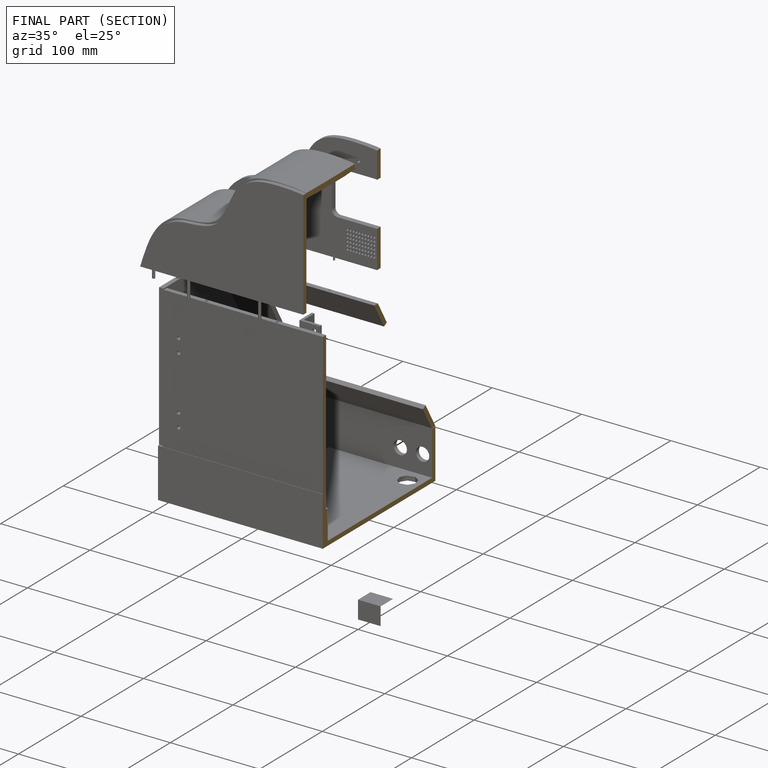
[diagram: finished part — half-section view (interior)]
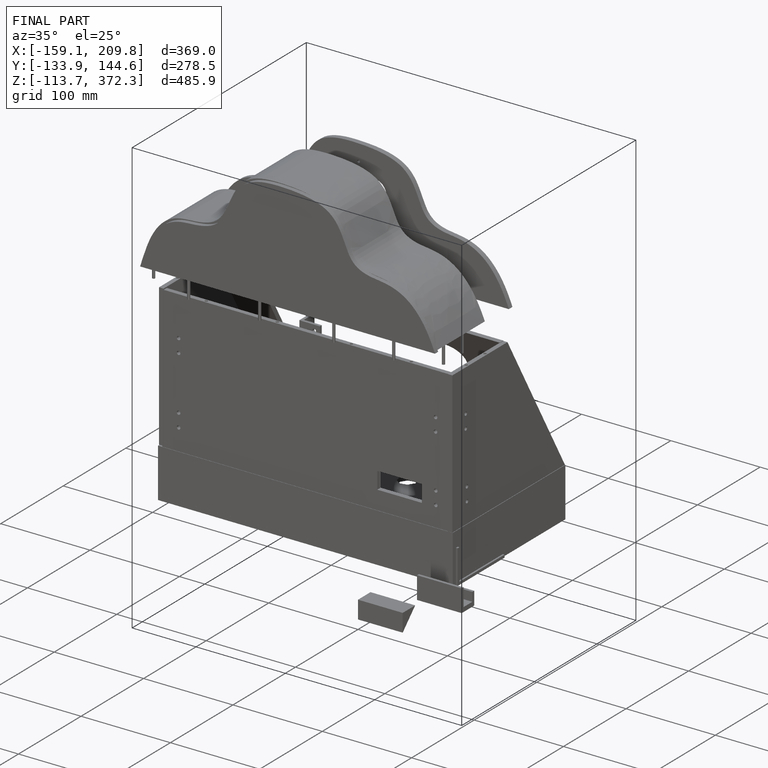
[diagram: finished part — iso view with bounding-box wireframe]
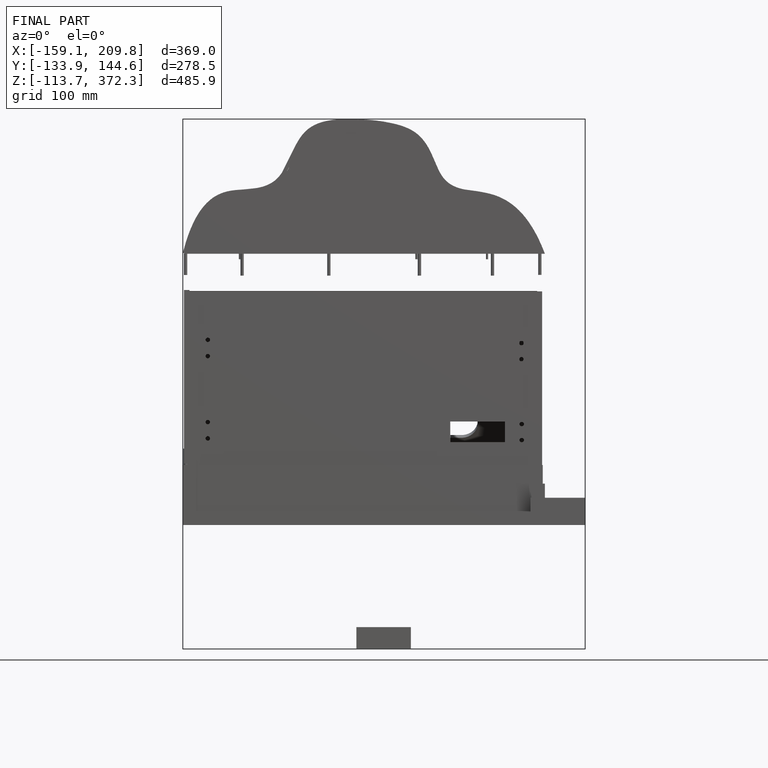
[diagram: finished part — front view with bounding-box wireframe]
